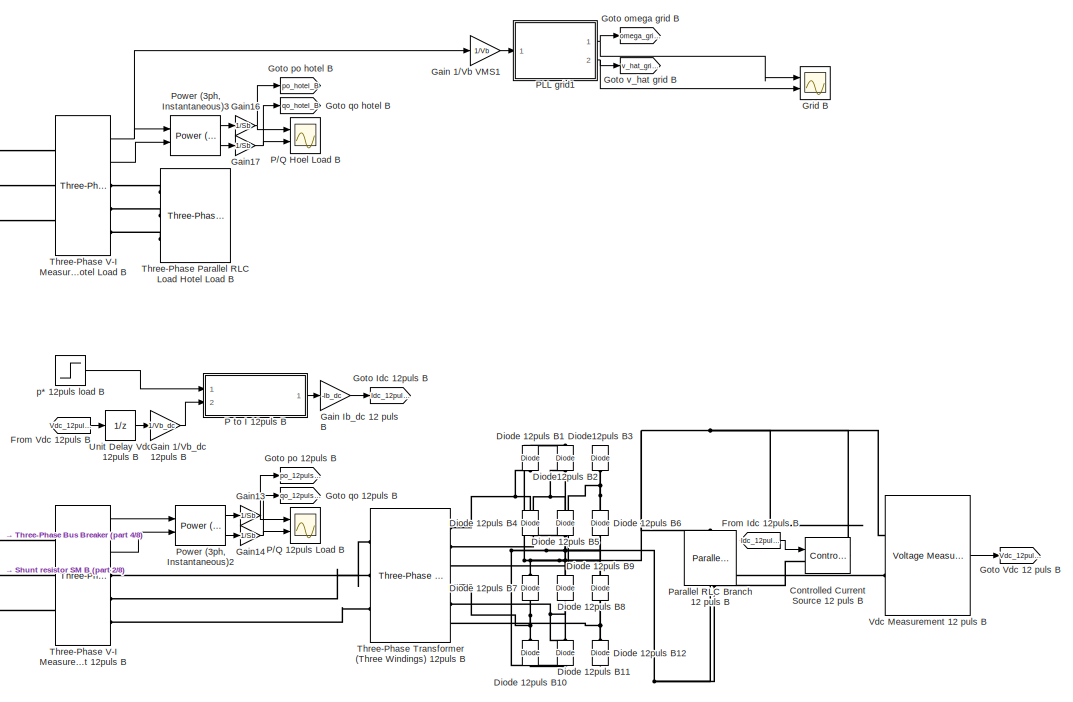
[diagram: root canvas - part 1/8, top center region]
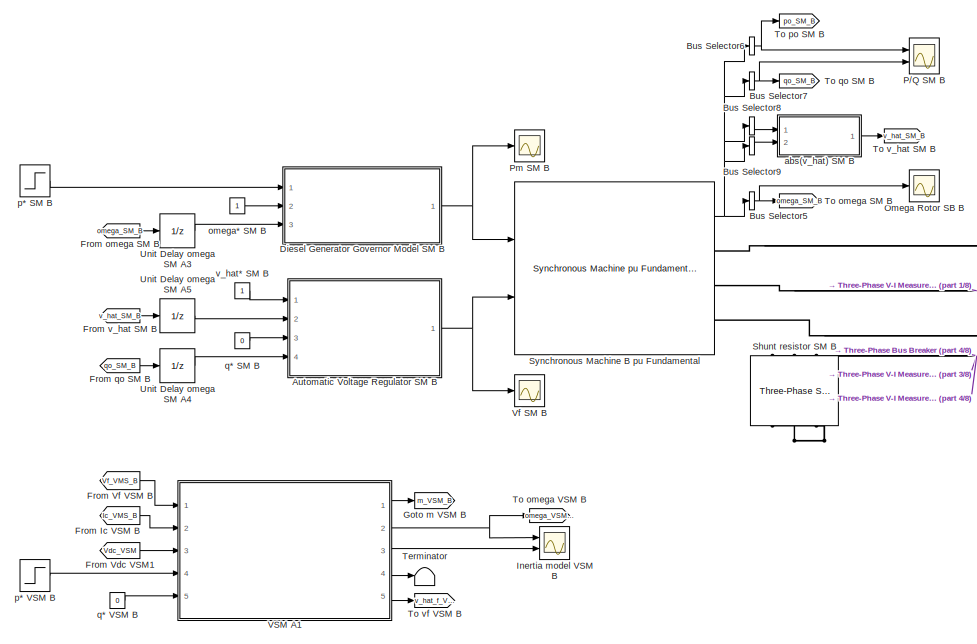
[diagram: root canvas - part 2/8, top left region]
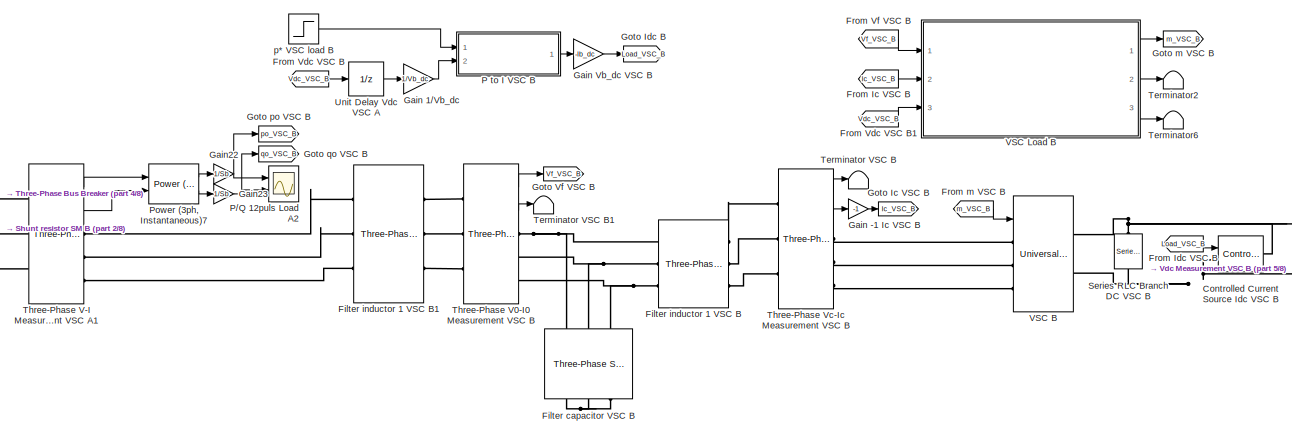
[diagram: root canvas - part 3/8, central region]
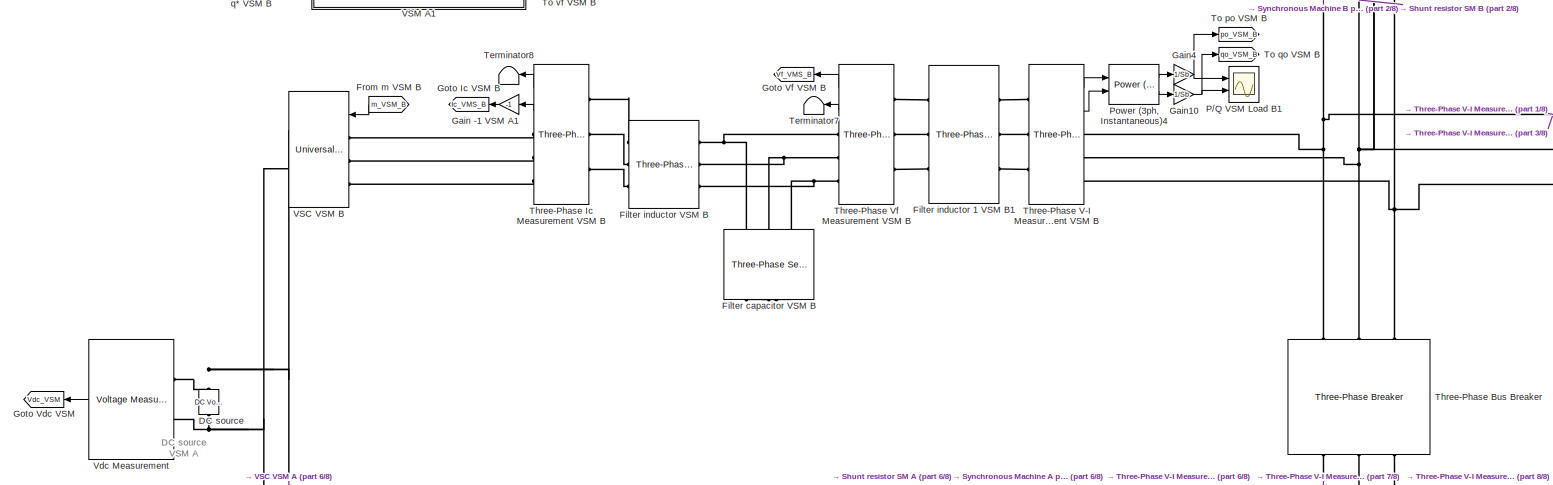
[diagram: root canvas - part 4/8, middle left region]
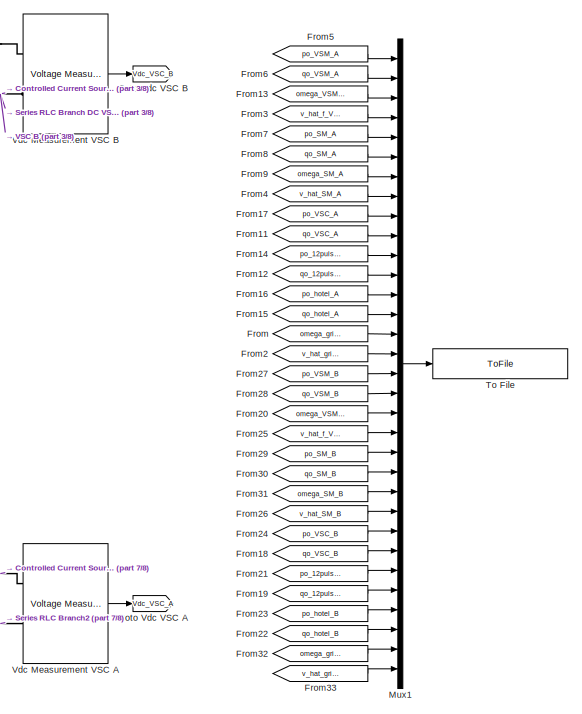
[diagram: root canvas - part 5/8, middle right region]
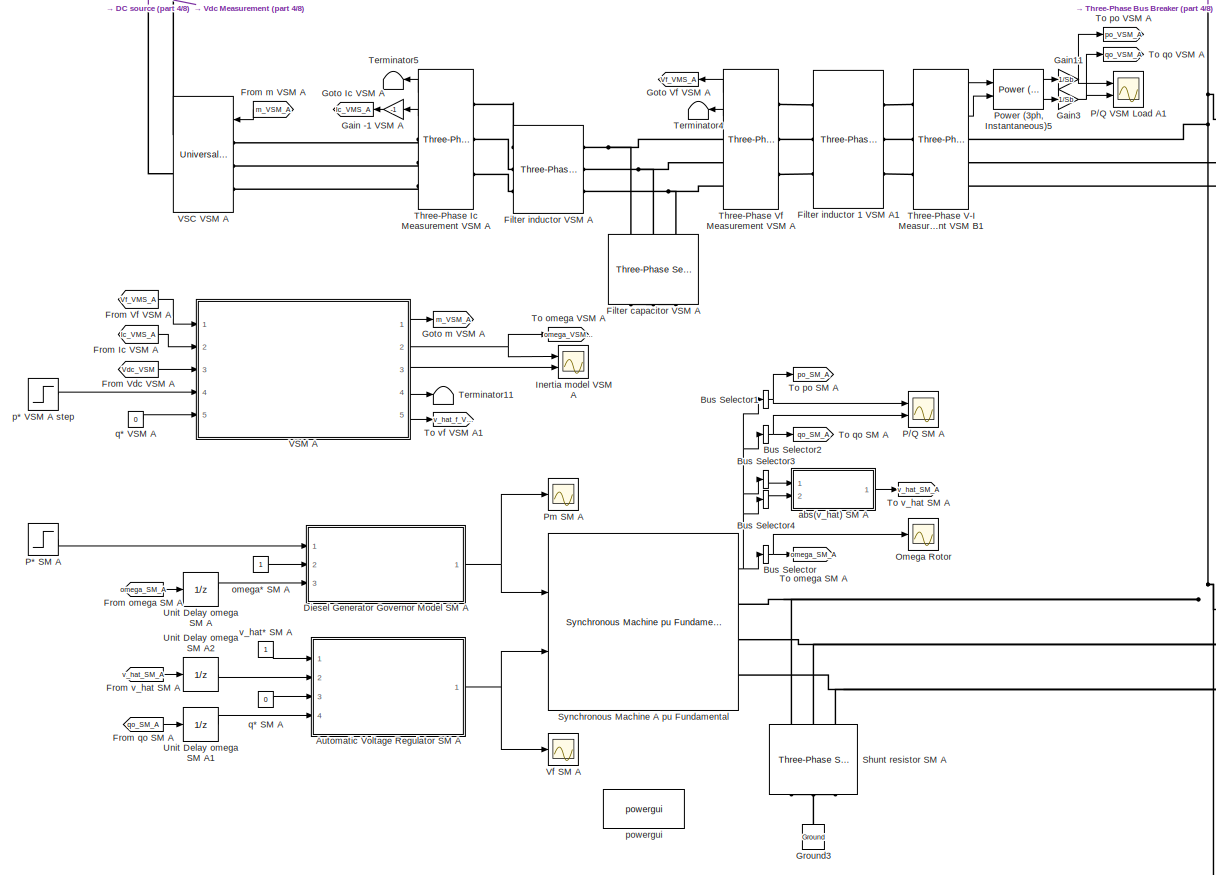
[diagram: root canvas - part 6/8, bottom left region]
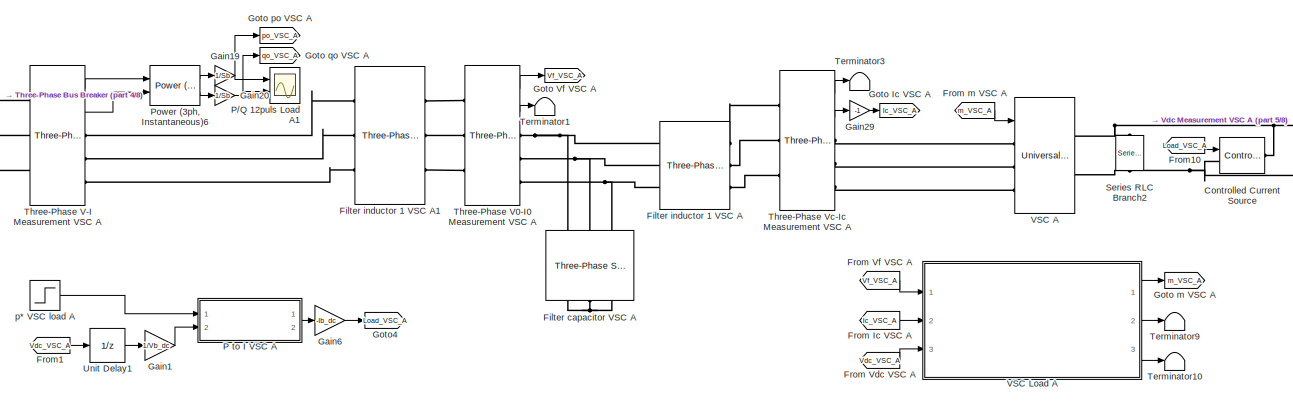
[diagram: root canvas - part 7/8, central region]
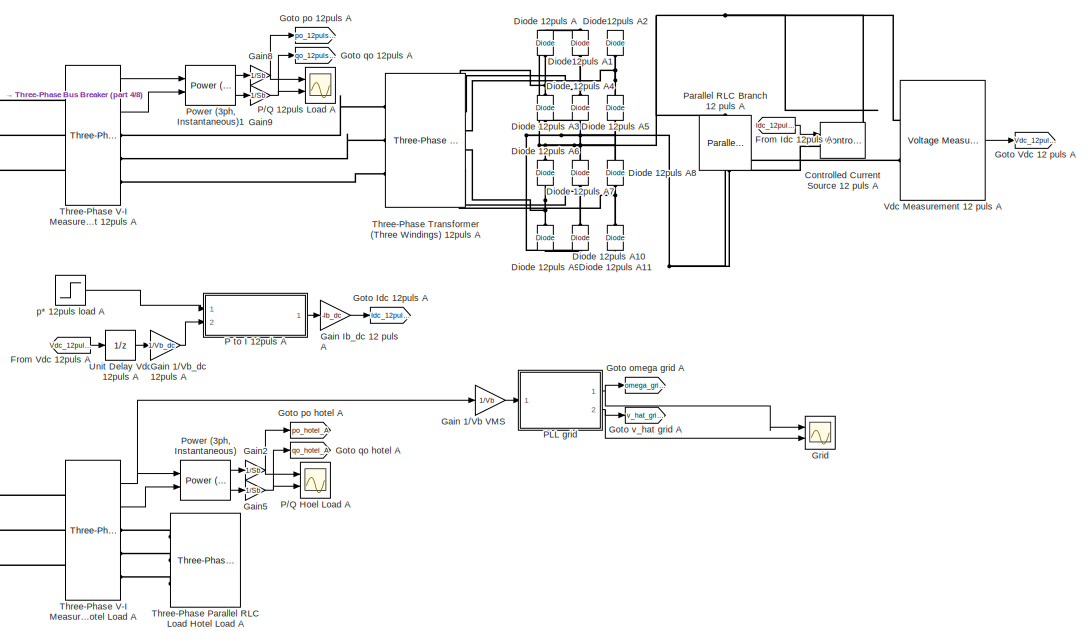
[diagram: root canvas - part 8/8, bottom center region]
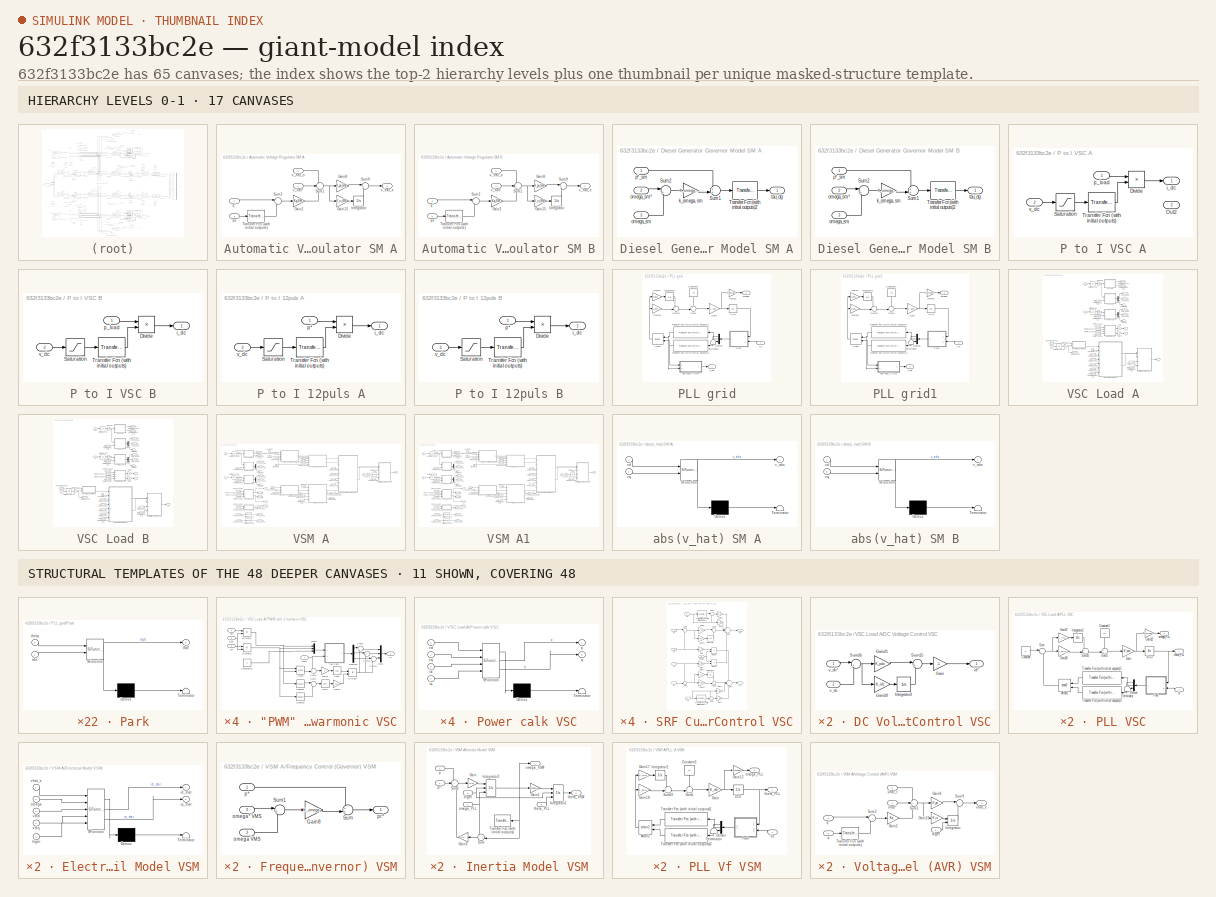
[diagram: thumbnail index - top-2 hierarchy levels (17 canvases) + 11 structural-template representatives of the remaining 48 canvases]
MODEL slx_632f3133bc2e
KIND model
CONFIG AbsTol = auto
CONFIG EnableMultiTasking = off
CONFIG FixedStep = T
CONFIG MaxStep = auto
CONFIG MinStep = auto
CONFIG RelTol = 1e-3
CONFIG SampleTimeConstraint = Unconstrained
CONFIG SolverName = ode23t
CONFIG StartTime = 0.0
CONFIG StopTime = 6
BLOCK [SubSystem] Automatic Voltage Regulator SM A
  Ports = [4, 1]
  RequestExecContextInheritance = off
BLOCK [Gain] Automatic Voltage Regulator SM A/Gain15
  Gain = K_iv_SM
BLOCK [Gain] Automatic Voltage Regulator SM A/Gain2
  Gain = Kq_SM
BLOCK [Gain] Automatic Voltage Regulator SM A/Gain8
  Gain = K_pv_SM
BLOCK [Integrator] Automatic Voltage Regulator SM A/Integrator
  Ports = [1, 1]
BLOCK [Sum] Automatic Voltage Regulator SM A/Sum1
  Inputs = -++
  Ports = [3, 1]
BLOCK [Sum] Automatic Voltage Regulator SM A/Sum2
  Inputs = |+-
  Ports = [2, 1]
BLOCK [Sum] Automatic Voltage Regulator SM A/Sum9
  Inputs = |++
  Ports = [2, 1]
BLOCK [Reference] Automatic Voltage Regulator SM A/Transfer Fcn (with initial outputs)  REF=simulink_extras/Additional
Linear/Transfer Fcn
(with initial outputs)
  Ports = [1, 1]
  SourceBlock = simulink_extras/Additional\nLinear/Transfer Fcn\n(with initial outputs)
  SourceProductBaseCode = SL
  SourceType = Transfer Function with Initial Outputs
BLOCK [Inport] Automatic Voltage Regulator SM A/q*
  Port = 3
BLOCK [Inport] Automatic Voltage Regulator SM A/qo
  Port = 4
BLOCK [Inport] Automatic Voltage Regulator SM A/v_hat*
BLOCK [Outport] Automatic Voltage Regulator SM A/v_hat_e
BLOCK [Inport] Automatic Voltage Regulator SM A/v_hat_o
  Port = 2
BLOCK [SubSystem] Automatic Voltage Regulator SM B
  Ports = [4, 1]
  RequestExecContextInheritance = off
BLOCK [Gain] Automatic Voltage Regulator SM B/Gain15
  Gain = K_iv_SM
BLOCK [Gain] Automatic Voltage Regulator SM B/Gain2
  Gain = Kq_SM
BLOCK [Gain] Automatic Voltage Regulator SM B/Gain8
  Gain = K_pv_SM
BLOCK [Integrator] Automatic Voltage Regulator SM B/Integrator
  Ports = [1, 1]
BLOCK [Sum] Automatic Voltage Regulator SM B/Sum1
  Inputs = -++
  Ports = [3, 1]
BLOCK [Sum] Automatic Voltage Regulator SM B/Sum2
  Inputs = |+-
  Ports = [2, 1]
BLOCK [Sum] Automatic Voltage Regulator SM B/Sum9
  Inputs = |++
  Ports = [2, 1]
BLOCK [Reference] Automatic Voltage Regulator SM B/Transfer Fcn (with initial outputs)  REF=simulink_extras/Additional
Linear/Transfer Fcn
(with initial outputs)
  Ports = [1, 1]
  SourceBlock = simulink_extras/Additional\nLinear/Transfer Fcn\n(with initial outputs)
  SourceProductBaseCode = SL
  SourceType = Transfer Function with Initial Outputs
BLOCK [Inport] Automatic Voltage Regulator SM B/q*
  Port = 3
BLOCK [Inport] Automatic Voltage Regulator SM B/qo
  Port = 4
BLOCK [Inport] Automatic Voltage Regulator SM B/v_hat*
BLOCK [Outport] Automatic Voltage Regulator SM B/v_hat_e
BLOCK [Inport] Automatic Voltage Regulator SM B/v_hat_o
  Port = 2
BLOCK [BusSelector] Bus Selector
  OutputAsBus = on
  OutputSignals = Mechanical.Rotor speed  wm (pu)
  Ports = [1, 1]
BLOCK [BusSelector] Bus Selector1
  OutputAsBus = on
  OutputSignals = Output active power   Peo (pu)
  Ports = [1, 1]
BLOCK [BusSelector] Bus Selector2
  OutputAsBus = on
  OutputSignals = Output reactive power  Qeo (pu)
  Ports = [1, 1]
BLOCK [BusSelector] Bus Selector3
  OutputAsBus = on
  OutputSignals = dq0 components.Stator voltage  vd (pu)
  Ports = [1, 1]
BLOCK [BusSelector] Bus Selector4
  OutputAsBus = on
  OutputSignals = dq0 components.Stator voltage  vq (pu)
  Ports = [1, 1]
BLOCK [BusSelector] Bus Selector5
  OutputAsBus = on
  OutputSignals = Mechanical.Rotor speed  wm (pu)
  Ports = [1, 1]
BLOCK [BusSelector] Bus Selector6
  OutputAsBus = on
  OutputSignals = Output active power   Peo (pu)
  Ports = [1, 1]
BLOCK [BusSelector] Bus Selector7
  OutputAsBus = on
  OutputSignals = Output reactive power  Qeo (pu)
  Ports = [1, 1]
BLOCK [BusSelector] Bus Selector8
  OutputAsBus = on
  OutputSignals = dq0 components.Stator voltage  vd (pu)
  Ports = [1, 1]
BLOCK [BusSelector] Bus Selector9
  OutputAsBus = on
  OutputSignals = dq0 components.Stator voltage  vq (pu)
  Ports = [1, 1]
BLOCK [Reference] Controlled Current Source  REF=spsControlledCurrentSourceLib/Controlled Current Source
  NameLocation = left
  Ports = [1, 0, 0, 0, 0, 1, 1]
  SourceBlock = spsControlledCurrentSourceLib/Controlled Current Source
  SourceProductBaseCode = PS
  SourceType = Controlled Current Source
BLOCK [Reference] Controlled Current Source 12 puls A  REF=spsControlledCurrentSourceLib/Controlled Current Source
  Commented = on
  NameLocation = left
  Ports = [1, 0, 0, 0, 0, 1, 1]
  SourceBlock = spsControlledCurrentSourceLib/Controlled Current Source
  SourceProductBaseCode = PS
  SourceType = Controlled Current Source
BLOCK [Reference] Controlled Current Source 12 puls B  REF=spsControlledCurrentSourceLib/Controlled Current Source
  Commented = on
  NameLocation = left
  Ports = [1, 0, 0, 0, 0, 1, 1]
  SourceBlock = spsControlledCurrentSourceLib/Controlled Current Source
  SourceProductBaseCode = PS
  SourceType = Controlled Current Source
BLOCK [Reference] Controlled Current Source Idc VSC B  REF=spsControlledCurrentSourceLib/Controlled Current Source
  NameLocation = left
  Ports = [1, 0, 0, 0, 0, 1, 1]
  SourceBlock = spsControlledCurrentSourceLib/Controlled Current Source
  SourceProductBaseCode = PS
  SourceType = Controlled Current Source
BLOCK [Reference] DC source  REF=spsDCVoltageSourceLib/DC Voltage Source
  Ports = [0, 0, 0, 0, 0, 1, 1]
  SourceBlock = spsDCVoltageSourceLib/DC Voltage Source
  SourceProductBaseCode = PS
  SourceType = DC Voltage Source
BLOCK [SubSystem] Diesel Generator Governor Model SM A
  Ports = [3, 1]
  RequestExecContextInheritance = off
BLOCK [Sum] Diesel Generator Governor Model SM A/Sum1
  Inputs = ++|
  Ports = [2, 1]
BLOCK [Sum] Diesel Generator Governor Model SM A/Sum2
  Inputs = |+-
  Ports = [2, 1]
BLOCK [Reference] Diesel Generator Governor Model SM A/Transfer Fcn (with initial outputs)2  REF=simulink_extras/Additional
Linear/Transfer Fcn
(with initial outputs)
  Ports = [1, 1]
  SourceBlock = simulink_extras/Additional\nLinear/Transfer Fcn\n(with initial outputs)
  SourceProductBaseCode = SL
  SourceType = Transfer Function with Initial Outputs
BLOCK [Gain] Diesel Generator Governor Model SM A/k_omega, sm
  Gain = K_omega_SM
BLOCK [Inport] Diesel Generator Governor Model SM A/omega_sm
  Port = 3
BLOCK [Inport] Diesel Generator Governor Model SM A/omega_sm*
  Port = 2
BLOCK [Inport] Diesel Generator Governor Model SM A/p*_sm
BLOCK [Outport] Diesel Generator Governor Model SM A/tau_dg
BLOCK [SubSystem] Diesel Generator Governor Model SM B
  Ports = [3, 1]
  RequestExecContextInheritance = off
BLOCK [Sum] Diesel Generator Governor Model SM B/Sum1
  Inputs = ++|
  Ports = [2, 1]
BLOCK [Sum] Diesel Generator Governor Model SM B/Sum2
  Inputs = |+-
  Ports = [2, 1]
BLOCK [Reference] Diesel Generator Governor Model SM B/Transfer Fcn (with initial outputs)2  REF=simulink_extras/Additional
Linear/Transfer Fcn
(with initial outputs)
  Ports = [1, 1]
  SourceBlock = simulink_extras/Additional\nLinear/Transfer Fcn\n(with initial outputs)
  SourceProductBaseCode = SL
  SourceType = Transfer Function with Initial Outputs
BLOCK [Gain] Diesel Generator Governor Model SM B/k_omega, sm
  Gain = K_omega_SM
BLOCK [Inport] Diesel Generator Governor Model SM B/omega_sm
  Port = 3
BLOCK [Inport] Diesel Generator Governor Model SM B/omega_sm*
  Port = 2
BLOCK [Inport] Diesel Generator Governor Model SM B/p*_sm
BLOCK [Outport] Diesel Generator Governor Model SM B/tau_dg
BLOCK [Reference] Diode 12puls A  REF=spsDiodeLib/Diode
  Commented = on
  NameLocation = right
  Ports = [0, 0, 0, 0, 0, 1, 1]
  SourceBlock = spsDiodeLib/Diode
  SourceProductBaseCode = PS
  SourceType = Diode
BLOCK [Reference] Diode 12puls A10  REF=spsDiodeLib/Diode
  Commented = on
  NameLocation = right
  Ports = [0, 0, 0, 0, 0, 1, 1]
  SourceBlock = spsDiodeLib/Diode
  SourceProductBaseCode = PS
  SourceType = Diode
BLOCK [Reference] Diode 12puls A11  REF=spsDiodeLib/Diode
  Commented = on
  NameLocation = right
  Ports = [0, 0, 0, 0, 0, 1, 1]
  SourceBlock = spsDiodeLib/Diode
  SourceProductBaseCode = PS
  SourceType = Diode
BLOCK [Reference] Diode 12puls A3  REF=spsDiodeLib/Diode
  Commented = on
  NameLocation = right
  Ports = [0, 0, 0, 0, 0, 1, 1]
  SourceBlock = spsDiodeLib/Diode
  SourceProductBaseCode = PS
  SourceType = Diode
BLOCK [Reference] Diode 12puls A4  REF=spsDiodeLib/Diode
  Commented = on
  NameLocation = right
  Ports = [0, 0, 0, 0, 0, 1, 1]
  SourceBlock = spsDiodeLib/Diode
  SourceProductBaseCode = PS
  SourceType = Diode
BLOCK [Reference] Diode 12puls A5  REF=spsDiodeLib/Diode
  Commented = on
  NameLocation = right
  Ports = [0, 0, 0, 0, 0, 1, 1]
  SourceBlock = spsDiodeLib/Diode
  SourceProductBaseCode = PS
  SourceType = Diode
BLOCK [Reference] Diode 12puls A6  REF=spsDiodeLib/Diode
  Commented = on
  NameLocation = right
  Ports = [0, 0, 0, 0, 0, 1, 1]
  SourceBlock = spsDiodeLib/Diode
  SourceProductBaseCode = PS
  SourceType = Diode
BLOCK [Reference] Diode 12puls A7  REF=spsDiodeLib/Diode
  Commented = on
  NameLocation = right
  Ports = [0, 0, 0, 0, 0, 1, 1]
  SourceBlock = spsDiodeLib/Diode
  SourceProductBaseCode = PS
  SourceType = Diode
BLOCK [Reference] Diode 12puls A8  REF=spsDiodeLib/Diode
  Commented = on
  NameLocation = right
  Ports = [0, 0, 0, 0, 0, 1, 1]
  SourceBlock = spsDiodeLib/Diode
  SourceProductBaseCode = PS
  SourceType = Diode
BLOCK [Reference] Diode 12puls A9  REF=spsDiodeLib/Diode
  Commented = on
  NameLocation = right
  Ports = [0, 0, 0, 0, 0, 1, 1]
  SourceBlock = spsDiodeLib/Diode
  SourceProductBaseCode = PS
  SourceType = Diode
BLOCK [Reference] Diode 12puls B1  REF=spsDiodeLib/Diode
  Commented = on
  NameLocation = right
  Ports = [0, 0, 0, 0, 0, 1, 1]
  SourceBlock = spsDiodeLib/Diode
  SourceProductBaseCode = PS
  SourceType = Diode
BLOCK [Reference] Diode 12puls B10  REF=spsDiodeLib/Diode
  Commented = on
  NameLocation = right
  Ports = [0, 0, 0, 0, 0, 1, 1]
  SourceBlock = spsDiodeLib/Diode
  SourceProductBaseCode = PS
  SourceType = Diode
BLOCK [Reference] Diode 12puls B11  REF=spsDiodeLib/Diode
  Commented = on
  NameLocation = right
  Ports = [0, 0, 0, 0, 0, 1, 1]
  SourceBlock = spsDiodeLib/Diode
  SourceProductBaseCode = PS
  SourceType = Diode
BLOCK [Reference] Diode 12puls B12  REF=spsDiodeLib/Diode
  Commented = on
  NameLocation = right
  Ports = [0, 0, 0, 0, 0, 1, 1]
  SourceBlock = spsDiodeLib/Diode
  SourceProductBaseCode = PS
  SourceType = Diode
BLOCK [Reference] Diode 12puls B4  REF=spsDiodeLib/Diode
  Commented = on
  NameLocation = right
  Ports = [0, 0, 0, 0, 0, 1, 1]
  SourceBlock = spsDiodeLib/Diode
  SourceProductBaseCode = PS
  SourceType = Diode
BLOCK [Reference] Diode 12puls B5  REF=spsDiodeLib/Diode
  Commented = on
  NameLocation = right
  Ports = [0, 0, 0, 0, 0, 1, 1]
  SourceBlock = spsDiodeLib/Diode
  SourceProductBaseCode = PS
  SourceType = Diode
BLOCK [Reference] Diode 12puls B6  REF=spsDiodeLib/Diode
  Commented = on
  NameLocation = right
  Ports = [0, 0, 0, 0, 0, 1, 1]
  SourceBlock = spsDiodeLib/Diode
  SourceProductBaseCode = PS
  SourceType = Diode
BLOCK [Reference] Diode 12puls B7  REF=spsDiodeLib/Diode
  Commented = on
  NameLocation = right
  Ports = [0, 0, 0, 0, 0, 1, 1]
  SourceBlock = spsDiodeLib/Diode
  SourceProductBaseCode = PS
  SourceType = Diode
BLOCK [Reference] Diode 12puls B8  REF=spsDiodeLib/Diode
  Commented = on
  NameLocation = right
  Ports = [0, 0, 0, 0, 0, 1, 1]
  SourceBlock = spsDiodeLib/Diode
  SourceProductBaseCode = PS
  SourceType = Diode
BLOCK [Reference] Diode 12puls B9  REF=spsDiodeLib/Diode
  Commented = on
  NameLocation = right
  Ports = [0, 0, 0, 0, 0, 1, 1]
  SourceBlock = spsDiodeLib/Diode
  SourceProductBaseCode = PS
  SourceType = Diode
BLOCK [Reference] Diode12puls A1  REF=spsDiodeLib/Diode
  Commented = on
  NameLocation = right
  Ports = [0, 0, 0, 0, 0, 1, 1]
  SourceBlock = spsDiodeLib/Diode
  SourceProductBaseCode = PS
  SourceType = Diode
BLOCK [Reference] Diode12puls A2  REF=spsDiodeLib/Diode
  Commented = on
  NameLocation = right
  Ports = [0, 0, 0, 0, 0, 1, 1]
  SourceBlock = spsDiodeLib/Diode
  SourceProductBaseCode = PS
  SourceType = Diode
BLOCK [Reference] Diode12puls B2  REF=spsDiodeLib/Diode
  Commented = on
  NameLocation = right
  Ports = [0, 0, 0, 0, 0, 1, 1]
  SourceBlock = spsDiodeLib/Diode
  SourceProductBaseCode = PS
  SourceType = Diode
BLOCK [Reference] Diode12puls B3  REF=spsDiodeLib/Diode
  Commented = on
  NameLocation = right
  Ports = [0, 0, 0, 0, 0, 1, 1]
  SourceBlock = spsDiodeLib/Diode
  SourceProductBaseCode = PS
  SourceType = Diode
BLOCK [Reference] Filter capacitor VSC A  REF=spsThreePhaseSeriesRLCBranchLib/Three-Phase
Series RLC Branch
  AttributesFormatString = \n
  NameLocation = left
  Ports = [0, 0, 0, 0, 0, 3, 3]
  SourceBlock = spsThreePhaseSeriesRLCBranchLib/Three-Phase\nSeries RLC Branch
  SourceProductBaseCode = PS
  SourceType = Three-Phase Series RLC Branch
BLOCK [Reference] Filter capacitor VSC B  REF=spsThreePhaseSeriesRLCBranchLib/Three-Phase
Series RLC Branch
  AttributesFormatString = \n
  NameLocation = left
  Ports = [0, 0, 0, 0, 0, 3, 3]
  SourceBlock = spsThreePhaseSeriesRLCBranchLib/Three-Phase\nSeries RLC Branch
  SourceProductBaseCode = PS
  SourceType = Three-Phase Series RLC Branch
BLOCK [Reference] Filter capacitor VSM A  REF=spsThreePhaseSeriesRLCBranchLib/Three-Phase
Series RLC Branch
  AttributesFormatString = \n
  NameLocation = left
  Ports = [0, 0, 0, 0, 0, 3, 3]
  SourceBlock = spsThreePhaseSeriesRLCBranchLib/Three-Phase\nSeries RLC Branch
  SourceProductBaseCode = PS
  SourceType = Three-Phase Series RLC Branch
BLOCK [Reference] Filter capacitor VSM B  REF=spsThreePhaseSeriesRLCBranchLib/Three-Phase
Series RLC Branch
  AttributesFormatString = \n
  NameLocation = left
  Ports = [0, 0, 0, 0, 0, 3, 3]
  SourceBlock = spsThreePhaseSeriesRLCBranchLib/Three-Phase\nSeries RLC Branch
  SourceProductBaseCode = PS
  SourceType = Three-Phase Series RLC Branch
BLOCK [Reference] Filter inductor 1 VSC A  REF=spsThreePhaseSeriesRLCBranchLib/Three-Phase
Series RLC Branch
  AttributesFormatString = \n
  Ports = [0, 0, 0, 0, 0, 3, 3]
  SourceBlock = spsThreePhaseSeriesRLCBranchLib/Three-Phase\nSeries RLC Branch
  SourceProductBaseCode = PS
  SourceType = Three-Phase Series RLC Branch
BLOCK [Reference] Filter inductor 1 VSC A1  REF=spsThreePhaseSeriesRLCBranchLib/Three-Phase
Series RLC Branch
  AttributesFormatString = \n
  Ports = [0, 0, 0, 0, 0, 3, 3]
  SourceBlock = spsThreePhaseSeriesRLCBranchLib/Three-Phase\nSeries RLC Branch
  SourceProductBaseCode = PS
  SourceType = Three-Phase Series RLC Branch
BLOCK [Reference] Filter inductor 1 VSC B  REF=spsThreePhaseSeriesRLCBranchLib/Three-Phase
Series RLC Branch
  AttributesFormatString = \n
  Ports = [0, 0, 0, 0, 0, 3, 3]
  SourceBlock = spsThreePhaseSeriesRLCBranchLib/Three-Phase\nSeries RLC Branch
  SourceProductBaseCode = PS
  SourceType = Three-Phase Series RLC Branch
BLOCK [Reference] Filter inductor 1 VSC B1  REF=spsThreePhaseSeriesRLCBranchLib/Three-Phase
Series RLC Branch
  AttributesFormatString = \n
  Ports = [0, 0, 0, 0, 0, 3, 3]
  SourceBlock = spsThreePhaseSeriesRLCBranchLib/Three-Phase\nSeries RLC Branch
  SourceProductBaseCode = PS
  SourceType = Three-Phase Series RLC Branch
BLOCK [Reference] Filter inductor 1 VSM A1  REF=spsThreePhaseSeriesRLCBranchLib/Three-Phase
Series RLC Branch
  AttributesFormatString = \n
  Ports = [0, 0, 0, 0, 0, 3, 3]
  SourceBlock = spsThreePhaseSeriesRLCBranchLib/Three-Phase\nSeries RLC Branch
  SourceProductBaseCode = PS
  SourceType = Three-Phase Series RLC Branch
BLOCK [Reference] Filter inductor 1 VSM B1  REF=spsThreePhaseSeriesRLCBranchLib/Three-Phase
Series RLC Branch
  AttributesFormatString = \n
  Ports = [0, 0, 0, 0, 0, 3, 3]
  SourceBlock = spsThreePhaseSeriesRLCBranchLib/Three-Phase\nSeries RLC Branch
  SourceProductBaseCode = PS
  SourceType = Three-Phase Series RLC Branch
BLOCK [Reference] Filter inductor VSM A  REF=spsThreePhaseSeriesRLCBranchLib/Three-Phase
Series RLC Branch
  AttributesFormatString = \n
  Ports = [0, 0, 0, 0, 0, 3, 3]
  SourceBlock = spsThreePhaseSeriesRLCBranchLib/Three-Phase\nSeries RLC Branch
  SourceProductBaseCode = PS
  SourceType = Three-Phase Series RLC Branch
BLOCK [Reference] Filter inductor VSM B  REF=spsThreePhaseSeriesRLCBranchLib/Three-Phase
Series RLC Branch
  AttributesFormatString = \n
  Ports = [0, 0, 0, 0, 0, 3, 3]
  SourceBlock = spsThreePhaseSeriesRLCBranchLib/Three-Phase\nSeries RLC Branch
  SourceProductBaseCode = PS
  SourceType = Three-Phase Series RLC Branch
BLOCK [From] From
  Commented = on
  GotoTag = omega_grid_A
BLOCK [From] From  m VSC A
  GotoTag = m_VSC_A
BLOCK [From] From Ic VSC A
  GotoTag = Ic_VSC_A
BLOCK [From] From Ic VSC B
  GotoTag = Ic_VSC_B
BLOCK [From] From Ic VSM A
  GotoTag = Ic_VMS_A
BLOCK [From] From Ic VSM B
  GotoTag = Ic_VMS_B
BLOCK [From] From Idc 12puls A
  Commented = on
  GotoTag = Idc_12puls_A
BLOCK [From] From Idc 12puls B
  Commented = on
  GotoTag = Idc_12puls_B
BLOCK [From] From Idc VSC B
  GotoTag = Load_VSC_B
BLOCK [From] From Vdc 12puls A
  Commented = on
  GotoTag = Vdc_12puls_A
BLOCK [From] From Vdc 12puls B
  Commented = on
  GotoTag = Vdc_12puls_B
BLOCK [From] From Vdc VSC A
  GotoTag = Vdc_VSC_A
BLOCK [From] From Vdc VSC B
  GotoTag = Vdc_VSC_B
BLOCK [From] From Vdc VSC B1
  GotoTag = Vdc_VSC_B
BLOCK [From] From Vdc VSM A
  GotoTag = Vdc_VSM
BLOCK [From] From Vdc VSM1
  GotoTag = Vdc_VSM
BLOCK [From] From Vf VSC A
  GotoTag = Vf_VSC_A
BLOCK [From] From Vf VSC B
  GotoTag = Vf_VSC_B
BLOCK [From] From Vf VSM A
  GotoTag = Vf_VMS_A
BLOCK [From] From Vf VSM B
  GotoTag = Vf_VMS_B
BLOCK [From] From m VSC B
  GotoTag = m_VSC_B
BLOCK [From] From m VSM A
  GotoTag = m_VSM_A
BLOCK [From] From m VSM B
  GotoTag = m_VSM_B
BLOCK [From] From omega SM A
  GotoTag = omega_SM_A
BLOCK [From] From omega SM B
  GotoTag = omega_SM_B
BLOCK [From] From qo SM A
  GotoTag = qo_SM_A
BLOCK [From] From qo SM B
  GotoTag = qo_SM_B
BLOCK [From] From v_hat SM A
  GotoTag = v_hat_SM_A
BLOCK [From] From v_hat SM B
  GotoTag = v_hat_SM_B
BLOCK [From] From1
  GotoTag = Vdc_VSC_A
BLOCK [From] From10
  GotoTag = Load_VSC_A
BLOCK [From] From11
  Commented = on
  GotoTag = qo_VSC_A
BLOCK [From] From12
  Commented = on
  GotoTag = qo_12puls_A
BLOCK [From] From13
  Commented = on
  GotoTag = omega_VSM_A
BLOCK [From] From14
  Commented = on
  GotoTag = po_12puls_A
BLOCK [From] From15
  Commented = on
  GotoTag = qo_hotel_A
BLOCK [From] From16
  Commented = on
  GotoTag = po_hotel_A
BLOCK [From] From17
  Commented = on
  GotoTag = po_VSC_A
BLOCK [From] From18
  Commented = on
  GotoTag = qo_VSC_B
BLOCK [From] From19
  Commented = on
  GotoTag = qo_12puls_B
BLOCK [From] From2
  Commented = on
  GotoTag = v_hat_grid_A
BLOCK [From] From20
  Commented = on
  GotoTag = omega_VSM_B
BLOCK [From] From21
  Commented = on
  GotoTag = po_12puls_B
BLOCK [From] From22
  Commented = on
  GotoTag = qo_hotel_B
BLOCK [From] From23
  Commented = on
  GotoTag = po_hotel_B
BLOCK [From] From24
  Commented = on
  GotoTag = po_VSC_B
BLOCK [From] From25
  Commented = on
  GotoTag = v_hat_f_VSM_B
BLOCK [From] From26
  Commented = on
  GotoTag = v_hat_SM_B
BLOCK [From] From27
  Commented = on
  GotoTag = po_VSM_B
BLOCK [From] From28
  Commented = on
  GotoTag = qo_VSM_B
BLOCK [From] From29
  Commented = on
  GotoTag = po_SM_B
BLOCK [From] From3
  Commented = on
  GotoTag = v_hat_f_VSM_A
BLOCK [From] From30
  Commented = on
  GotoTag = qo_SM_B
BLOCK [From] From31
  Commented = on
  GotoTag = omega_SM_B
BLOCK [From] From32
  Commented = on
  GotoTag = omega_grid_B
BLOCK [From] From33
  Commented = on
  GotoTag = v_hat_grid_B
BLOCK [From] From4
  Commented = on
  GotoTag = v_hat_SM_A
BLOCK [From] From5
  Commented = on
  GotoTag = po_VSM_A
BLOCK [From] From6
  Commented = on
  GotoTag = qo_VSM_A
BLOCK [From] From7
  Commented = on
  GotoTag = po_SM_A
BLOCK [From] From8
  Commented = on
  GotoTag = qo_SM_A
BLOCK [From] From9
  Commented = on
  GotoTag = omega_SM_A
BLOCK [Gain] Gain -1 Ic VSC B
  Gain = -1
BLOCK [Gain] Gain -1 VSM A
  Gain = -1
BLOCK [Gain] Gain -1 VSM A1
  Gain = -1
BLOCK [Gain] Gain 1//Vb VMS
  Gain = 1/Vb
BLOCK [Gain] Gain 1//Vb VMS1
  Gain = 1/Vb
BLOCK [Gain] Gain 1//Vb_dc
  Gain = 1/Vb_dc
BLOCK [Gain] Gain 1//Vb_dc 12puls A
  Commented = on
  Gain = 1/Vb_dc
BLOCK [Gain] Gain 1//Vb_dc 12puls B
  Commented = on
  Gain = 1/Vb_dc
BLOCK [Gain] Gain Ib_dc 12 puls A
  Commented = on
  Gain = -Ib_dc
BLOCK [Gain] Gain Ib_dc 12 puls B
  Commented = on
  Gain = -Ib_dc
BLOCK [Gain] Gain Vb_dc VSC B
  Gain = -Ib_dc
BLOCK [Gain] Gain1
  Gain = 1/Vb_dc
BLOCK [Gain] Gain10
  Gain = 1/Sb
BLOCK [Gain] Gain11
  Gain = 1/Sb
BLOCK [Gain] Gain13
  Commented = on
  Gain = 1/Sb
BLOCK [Gain] Gain14
  Commented = on
  Gain = 1/Sb
BLOCK [Gain] Gain16
  Gain = 1/Sb
BLOCK [Gain] Gain17
  Gain = 1/Sb
BLOCK [Gain] Gain19
  Gain = 1/Sb
BLOCK [Gain] Gain2
  Gain = 1/Sb
BLOCK [Gain] Gain20
  Gain = 1/Sb
BLOCK [Gain] Gain22
  Gain = 1/Sb
BLOCK [Gain] Gain23
  Gain = 1/Sb
BLOCK [Gain] Gain29
  Gain = -1
BLOCK [Gain] Gain3
  Gain = 1/Sb
BLOCK [Gain] Gain4
  Gain = 1/Sb
BLOCK [Gain] Gain5
  Gain = 1/Sb
BLOCK [Gain] Gain6
  Gain = -Ib_dc
BLOCK [Gain] Gain8
  Commented = on
  Gain = 1/Sb
BLOCK [Gain] Gain9
  Commented = on
  Gain = 1/Sb
BLOCK [Goto] Goto Ic VSC A
  GotoTag = Ic_VSC_A
BLOCK [Goto] Goto Ic VSC B
  GotoTag = Ic_VSC_B
BLOCK [Goto] Goto Ic VSM A
  GotoTag = Ic_VMS_A
BLOCK [Goto] Goto Ic VSM B
  GotoTag = Ic_VMS_B
BLOCK [Goto] Goto Idc 12puls A
  Commented = on
  GotoTag = Idc_12puls_A
BLOCK [Goto] Goto Idc 12puls B
  Commented = on
  GotoTag = Idc_12puls_B
BLOCK [Goto] Goto Idc B
  GotoTag = Load_VSC_B
BLOCK [Goto] Goto Vdc 12 puls A
  Commented = on
  GotoTag = Vdc_12puls_A
BLOCK [Goto] Goto Vdc 12 puls B
  Commented = on
  GotoTag = Vdc_12puls_B
BLOCK [Goto] Goto Vdc VSC A
  GotoTag = Vdc_VSC_A
BLOCK [Goto] Goto Vdc VSC B
  GotoTag = Vdc_VSC_B
BLOCK [Goto] Goto Vdc VSM
  GotoTag = Vdc_VSM
BLOCK [Goto] Goto Vf VSC A
  GotoTag = Vf_VSC_A
BLOCK [Goto] Goto Vf VSC B
  GotoTag = Vf_VSC_B
BLOCK [Goto] Goto Vf VSM A
  GotoTag = Vf_VMS_A
BLOCK [Goto] Goto Vf VSM B
  GotoTag = Vf_VMS_B
BLOCK [Goto] Goto m VSC A
  GotoTag = m_VSC_A
BLOCK [Goto] Goto m VSC B
  GotoTag = m_VSC_B
BLOCK [Goto] Goto m VSM A
  GotoTag = m_VSM_A
BLOCK [Goto] Goto m VSM B
  GotoTag = m_VSM_B
BLOCK [Goto] Goto omega grid A
  GotoTag = omega_grid_A
  NameLocation = right
BLOCK [Goto] Goto omega grid B
  GotoTag = omega_grid_B
  NameLocation = right
BLOCK [Goto] Goto po 12puls A
  Commented = on
  GotoTag = po_12puls_A
  NameLocation = right
BLOCK [Goto] Goto po 12puls B
  Commented = on
  GotoTag = po_12puls_B
  NameLocation = right
BLOCK [Goto] Goto po VSC A
  GotoTag = po_VSC_A
  NameLocation = right
BLOCK [Goto] Goto po VSC B
  GotoTag = po_VSC_B
  NameLocation = right
BLOCK [Goto] Goto po hotel A
  GotoTag = po_hotel_A
  NameLocation = right
BLOCK [Goto] Goto po hotel B
  GotoTag = po_hotel_B
  NameLocation = right
BLOCK [Goto] Goto qo 12puls A
  Commented = on
  GotoTag = qo_12puls_A
  NameLocation = right
BLOCK [Goto] Goto qo 12puls B
  Commented = on
  GotoTag = qo_12puls_B
  NameLocation = right
BLOCK [Goto] Goto qo VSC A
  GotoTag = qo_VSC_A
  NameLocation = right
BLOCK [Goto] Goto qo VSC B
  GotoTag = qo_VSC_B
  NameLocation = right
BLOCK [Goto] Goto qo hotel A
  GotoTag = qo_hotel_A
  NameLocation = right
BLOCK [Goto] Goto qo hotel B
  GotoTag = qo_hotel_B
  NameLocation = right
BLOCK [Goto] Goto v_hat grid A
  GotoTag = v_hat_grid_A
  NameLocation = right
BLOCK [Goto] Goto v_hat grid B
  GotoTag = v_hat_grid_B
  NameLocation = right
BLOCK [Goto] Goto4
  GotoTag = Load_VSC_A
BLOCK [Scope] Grid
  Floating = off
  NumInputPorts = 2
  Ports = [2]
  ScopeSpecificationString = Simulink.scopes.TimeScopeBlockCfg('CurrentConfiguration', extmgr.ConfigurationSet(extmgr.Configuration('Core','General UI',true),extmgr.Configuration('Core','Source UI',true),extmgr.Configuration('Sources','WiredSimulink',true,'DataLoggingVariableName','ScopeData5'),extmgr.Configuration('Visuals','Time Domain',true,'SerializedDisplays',{struct('MinYLimReal','0.9747','MaxYLimReal','1.07269','YLabel...<+2043ch>
BLOCK [Scope] Grid B
  Floating = off
  NumInputPorts = 2
  Ports = [2]
  ScopeSpecificationString = Simulink.scopes.TimeScopeBlockCfg('CurrentConfiguration', extmgr.ConfigurationSet(extmgr.Configuration('Core','General UI',true),extmgr.Configuration('Core','Source UI',true),extmgr.Configuration('Sources','WiredSimulink',true,'DataLoggingVariableName','ScopeData6'),extmgr.Configuration('Visuals','Time Domain',true,'SerializedDisplays',{struct('MinYLimReal','0.9747','MaxYLimReal','1.07269','YLabel...<+2049ch>
BLOCK [Reference] Ground3  REF=spsGroundLib/Ground
  Ports = [0, 0, 0, 0, 0, 1]
  SourceBlock = spsGroundLib/Ground
  SourceProductBaseCode = PS
  SourceType = Ground
BLOCK [Scope] Inertia model VSM A
  Floating = off
  NumInputPorts = 2
  Ports = [2]
  ScopeSpecificationString = Simulink.scopes.TimeScopeBlockCfg('CurrentConfiguration', extmgr.ConfigurationSet(extmgr.Configuration('Core','General UI',true),extmgr.Configuration('Core','Source UI',true),extmgr.Configuration('Sources','WiredSimulink',true,'DataLoggingVariableName','ScopeData1'),extmgr.Configuration('Visuals','Time Domain',true,'SerializedDisplays',{struct('MinYLimReal','0.98387','MaxYLimReal','1.01983','YLabe...<+2061ch>
BLOCK [Scope] Inertia model VSM B
  Floating = off
  NumInputPorts = 2
  Ports = [2]
  ScopeSpecificationString = Simulink.scopes.TimeScopeBlockCfg('CurrentConfiguration', extmgr.ConfigurationSet(extmgr.Configuration('Core','General UI',true),extmgr.Configuration('Core','Source UI',true),extmgr.Configuration('Sources','WiredSimulink',true,'DataLoggingVariableName','ScopeData3'),extmgr.Configuration('Visuals','Time Domain',true,'SerializedDisplays',{struct('MinYLimReal','0.98387','MaxYLimReal','1.01983','YLabe...<+2061ch>
BLOCK [Mux] Mux1
  Commented = on
  DisplayOption = bar
  Inputs = 32
  Ports = [32, 1]
BLOCK [Scope] Omega Rotor
  Floating = off
  NumInputPorts = 1
  Ports = [1]
  ScopeSpecificationString = Simulink.scopes.TimeScopeBlockCfg('CurrentConfiguration', extmgr.ConfigurationSet(extmgr.Configuration('Core','General UI',true),extmgr.Configuration('Core','Source UI',true),extmgr.Configuration('Sources','WiredSimulink',true,'DataLoggingVariableName','ScopeData5'),extmgr.Configuration('Visuals','Time Domain',true,'SerializedDisplays',{struct('MinYLimReal','-0.12373','MaxYLimReal','1.13523','YLab...<+1611ch>
BLOCK [Scope] Omega Rotor SB B
  Floating = off
  NumInputPorts = 1
  Ports = [1]
  ScopeSpecificationString = Simulink.scopes.TimeScopeBlockCfg('CurrentConfiguration', extmgr.ConfigurationSet(extmgr.Configuration('Core','General UI',true),extmgr.Configuration('Core','Source UI',true),extmgr.Configuration('Sources','WiredSimulink',true,'DataLoggingVariableName','ScopeData1'),extmgr.Configuration('Visuals','Time Domain',true,'SerializedDisplays',{struct('MinYLimReal','0.98488','MaxYLimReal','1.04934','YLabe...<+1609ch>
BLOCK [SubSystem] P to I 12puls A
  Commented = on
  Ports = [2, 1]
  RequestExecContextInheritance = off
BLOCK [Product] P to I 12puls A/Divide
  Inputs = */
  Ports = [2, 1]
BLOCK [Saturate] P to I 12puls A/Saturation
  LowerLimit = 0.5
  UpperLimit = 1.5
BLOCK [Reference] P to I 12puls A/Transfer Fcn (with initial outputs)  REF=simulink_extras/Additional
Linear/Transfer Fcn
(with initial outputs)
  Ports = [1, 1]
  SourceBlock = simulink_extras/Additional\nLinear/Transfer Fcn\n(with initial outputs)
  SourceProductBaseCode = SL
  SourceType = Transfer Function with Initial Outputs
BLOCK [Outport] P to I 12puls A/i_dc
BLOCK [Inport] P to I 12puls A/p*
BLOCK [Inport] P to I 12puls A/v_dc
  Port = 2
BLOCK [SubSystem] P to I 12puls B
  Commented = on
  Ports = [2, 1]
  RequestExecContextInheritance = off
BLOCK [Product] P to I 12puls B/Divide
  Inputs = */
  Ports = [2, 1]
BLOCK [Saturate] P to I 12puls B/Saturation
  LowerLimit = 0.5
  UpperLimit = 1.5
BLOCK [Reference] P to I 12puls B/Transfer Fcn (with initial outputs)  REF=simulink_extras/Additional
Linear/Transfer Fcn
(with initial outputs)
  Ports = [1, 1]
  SourceBlock = simulink_extras/Additional\nLinear/Transfer Fcn\n(with initial outputs)
  SourceProductBaseCode = SL
  SourceType = Transfer Function with Initial Outputs
BLOCK [Outport] P to I 12puls B/i_dc
BLOCK [Inport] P to I 12puls B/p*
BLOCK [Inport] P to I 12puls B/v_dc
  Port = 2
BLOCK [SubSystem] P to I VSC A
  PortSchema = {"entries":[{"content":{"sides":[{"content":{"connectorIds":["In1","In2"]},"type":"ConnectorPlacement.EquallySpacedRectSide","uuid":"1b3d670f-a973-44e5-93e0-282aed06b720"},{"content":{"connectorIds":["Out1"],"side":"RIGHT"},"type":"ConnectorPlacement.EquallySpacedRectSide","uuid":"c6dbaf48-01df-4046-a8d4-fcaf539dec06"},{"content":{"connectorIds":[],"side":"TOP"},"type":"ConnectorPlacement.EquallyS...<+396ch>
  Ports = [2, 2]
  RequestExecContextInheritance = off
BLOCK [Product] P to I VSC A/Divide
  Inputs = */
  Ports = [2, 1]
BLOCK [Outport] P to I VSC A/Out2
  Port = 2
BLOCK [Saturate] P to I VSC A/Saturation
  LowerLimit = 0.5
  UpperLimit = 1.5
BLOCK [Reference] P to I VSC A/Transfer Fcn (with initial outputs)  REF=simulink_extras/Additional
Linear/Transfer Fcn
(with initial outputs)
  Ports = [1, 1]
  SourceBlock = simulink_extras/Additional\nLinear/Transfer Fcn\n(with initial outputs)
  SourceProductBaseCode = SL
  SourceType = Transfer Function with Initial Outputs
BLOCK [Outport] P to I VSC A/i_dc
BLOCK [Inport] P to I VSC A/p_load
BLOCK [Inport] P to I VSC A/v_dc
  Port = 2
BLOCK [SubSystem] P to I VSC B
  Ports = [2, 1]
  RequestExecContextInheritance = off
BLOCK [Product] P to I VSC B/Divide
  Inputs = */
  Ports = [2, 1]
BLOCK [Saturate] P to I VSC B/Saturation
  LowerLimit = 0.5
  UpperLimit = 1.5
BLOCK [Reference] P to I VSC B/Transfer Fcn (with initial outputs)  REF=simulink_extras/Additional
Linear/Transfer Fcn
(with initial outputs)
  Ports = [1, 1]
  SourceBlock = simulink_extras/Additional\nLinear/Transfer Fcn\n(with initial outputs)
  SourceProductBaseCode = SL
  SourceType = Transfer Function with Initial Outputs
BLOCK [Outport] P to I VSC B/i_dc
BLOCK [Inport] P to I VSC B/p_load
BLOCK [Inport] P to I VSC B/v_dc
  Port = 2
BLOCK [Step] P* SM A 
  After = 0.2
  Before = 0.05
  SampleTime = 0
  Time = 2
BLOCK [Scope] P//Q 12puls Load A
  Commented = on
  Floating = off
  NumInputPorts = 2
  Ports = [2]
  ScopeSpecificationString = Simulink.scopes.TimeScopeBlockCfg('CurrentConfiguration', extmgr.ConfigurationSet(extmgr.Configuration('Core','General UI',true),extmgr.Configuration('Core','Source UI',true),extmgr.Configuration('Sources','WiredSimulink',true,'DataLoggingVariableName','ScopeData2'),extmgr.Configuration('Visuals','Time Domain',true,'SerializedDisplays',{struct('MinYLimReal','-1.11402','MaxYLimReal','0.12499','YLab...<+2069ch>
BLOCK [Scope] P//Q 12puls Load A1
  Floating = off
  NumInputPorts = 2
  Ports = [2]
  ScopeSpecificationString = Simulink.scopes.TimeScopeBlockCfg('CurrentConfiguration', extmgr.ConfigurationSet(extmgr.Configuration('Core','General UI',true),extmgr.Configuration('Core','Source UI',true),extmgr.Configuration('Sources','WiredSimulink',true,'DataLoggingVariableName','ScopeData3'),extmgr.Configuration('Visuals','Time Domain',true,'SerializedDisplays',{struct('MinYLimReal','-1.11402','MaxYLimReal','0.12499','YLab...<+2071ch>
BLOCK [Scope] P//Q 12puls Load A2
  Floating = off
  NumInputPorts = 2
  Ports = [2]
  ScopeSpecificationString = Simulink.scopes.TimeScopeBlockCfg('CurrentConfiguration', extmgr.ConfigurationSet(extmgr.Configuration('Core','General UI',true),extmgr.Configuration('Core','Source UI',true),extmgr.Configuration('Sources','WiredSimulink',true,'DataLoggingVariableName','ScopeData4'),extmgr.Configuration('Visuals','Time Domain',true,'SerializedDisplays',{struct('MinYLimReal','-0.96592','MaxYLimReal','2.50231','YLab...<+2094ch>
BLOCK [Scope] P//Q 12puls Load B
  Commented = on
  Floating = off
  NumInputPorts = 2
  Ports = [2]
  ScopeSpecificationString = Simulink.scopes.TimeScopeBlockCfg('CurrentConfiguration', extmgr.ConfigurationSet(extmgr.Configuration('Core','General UI',true),extmgr.Configuration('Core','Source UI',true),extmgr.Configuration('Sources','WiredSimulink',true,'DataLoggingVariableName','ScopeData6'),extmgr.Configuration('Visuals','Time Domain',true,'SerializedDisplays',{struct('MinYLimReal','-1.11402','MaxYLimReal','0.12499','YLab...<+2071ch>
BLOCK [Scope] P//Q Hoel Load A
  Floating = off
  NameLocation = right
  NumInputPorts = 2
  Ports = [2]
  ScopeSpecificationString = Simulink.scopes.TimeScopeBlockCfg('CurrentConfiguration', extmgr.ConfigurationSet(extmgr.Configuration('Core','General UI',true),extmgr.Configuration('Core','Source UI',true),extmgr.Configuration('Sources','WiredSimulink',true,'DataLoggingVariableName','ScopeData1'),extmgr.Configuration('Visuals','Time Domain',true,'SerializedDisplays',{struct('MinYLimReal','-0.04509','MaxYLimReal','0.40584','YLab...<+2120ch>
BLOCK [Scope] P//Q Hoel Load B
  Floating = off
  NameLocation = right
  NumInputPorts = 2
  Ports = [2]
  ScopeSpecificationString = Simulink.scopes.TimeScopeBlockCfg('CurrentConfiguration', extmgr.ConfigurationSet(extmgr.Configuration('Core','General UI',true),extmgr.Configuration('Core','Source UI',true),extmgr.Configuration('Sources','WiredSimulink',true,'DataLoggingVariableName','ScopeData5'),extmgr.Configuration('Visuals','Time Domain',true,'SerializedDisplays',{struct('MinYLimReal','-0.10063','MaxYLimReal','-0.09812','YLa...<+2095ch>
BLOCK [Scope] P//Q SM A
  Floating = off
  NumInputPorts = 2
  Ports = [2]
  ScopeSpecificationString = Simulink.scopes.TimeScopeBlockCfg('CurrentConfiguration', extmgr.ConfigurationSet(extmgr.Configuration('Core','General UI',true),extmgr.Configuration('Core','Source UI',true),extmgr.Configuration('Sources','WiredSimulink',true,'DataLoggingVariableName','ScopeData9'),extmgr.Configuration('Visuals','Time Domain',true,'SerializedDisplays',{struct('MinYLimReal','-1.03543','MaxYLimReal','1.04449','YLab...<+2082ch>
BLOCK [Scope] P//Q SM B
  Floating = off
  NumInputPorts = 2
  Ports = [2]
  ScopeSpecificationString = Simulink.scopes.TimeScopeBlockCfg('CurrentConfiguration', extmgr.ConfigurationSet(extmgr.Configuration('Core','General UI',true),extmgr.Configuration('Core','Source UI',true),extmgr.Configuration('Sources','WiredSimulink',true,'DataLoggingVariableName','ScopeData2'),extmgr.Configuration('Visuals','Time Domain',true,'SerializedDisplays',{struct('MinYLimReal','-1.03543','MaxYLimReal','1.04449','YLab...<+2084ch>
BLOCK [Scope] P//Q VSM Load A1
  Floating = off
  NumInputPorts = 2
  Ports = [2]
  ScopeSpecificationString = Simulink.scopes.TimeScopeBlockCfg('CurrentConfiguration', extmgr.ConfigurationSet(extmgr.Configuration('Core','General UI',true),extmgr.Configuration('Core','Source UI',true),extmgr.Configuration('Sources','WiredSimulink',true,'DataLoggingVariableName','ScopeData2'),extmgr.Configuration('Visuals','Time Domain',true,'SerializedDisplays',{struct('MinYLimReal','-0.37862','MaxYLimReal','3.21','YLabelR...<+2086ch>
BLOCK [Scope] P//Q VSM Load B1
  Floating = off
  NumInputPorts = 2
  Ports = [2]
  ScopeSpecificationString = Simulink.scopes.TimeScopeBlockCfg('CurrentConfiguration', extmgr.ConfigurationSet(extmgr.Configuration('Core','General UI',true),extmgr.Configuration('Core','Source UI',true),extmgr.Configuration('Sources','WiredSimulink',true,'DataLoggingVariableName','ScopeData1'),extmgr.Configuration('Visuals','Time Domain',true,'SerializedDisplays',{struct('MinYLimReal','-0.37833','MaxYLimReal','3.20991','YLab...<+2092ch>
BLOCK [SubSystem] PLL grid
  Ports = [1, 2]
  RequestExecContextInheritance = off
BLOCK [Trigonometry] PLL grid/Atan2
  Operator = atan2
  OutputSignalType = real
  Ports = [2, 1]
BLOCK [Constant] PLL grid/Constant1
  NameLocation = left
  Value = fb
BLOCK [Demux] PLL grid/Demux
  Outputs = 3
  Ports = [1, 3]
BLOCK [Gain] PLL grid/Gain
  Gain = K_vco
BLOCK [Gain] PLL grid/Gain12
  Gain = 1/omega_b
BLOCK [Gain] PLL grid/Gain17
  Gain = K_iPLL
BLOCK [Gain] PLL grid/Gain18
  Gain = K_pPLL
BLOCK [Integrator] PLL grid/Integrator2
  Ports = [1, 1]
BLOCK [SubSystem] PLL grid/Park
  ErrorFcn = Stateflow.Translate.translate
  PermitHierarchicalResolution = ExplicitOnly
  Ports = [2, 1]
  RequestExecContextInheritance = off
  SFBlockType = MATLAB Function
  TreatAsAtomicUnit = on
BLOCK [Demux] PLL grid/Park/ Demux 
  Outputs = 1
  Ports = [1, 1]
BLOCK [S-Function] PLL grid/Park/ SFunction 
  EnableBusSupport = on
  FunctionName = sf_sfun
  PortCounts = [2 2]
  Ports = [2, 2]
  SFcnIsStateOwnerBlock = off
  SFunctionDeploymentMode = off
  Tag = Stateflow S-Function 27
BLOCK [Terminator] PLL grid/Park/ Terminator 
BLOCK [Inport] PLL grid/Park/abc
  Port = 2
BLOCK [Outport] PLL grid/Park/dq0
  VectorParamsAs1DForOutWhenUnconnected = off
BLOCK [Inport] PLL grid/Park/theta
BLOCK [Sum] PLL grid/Sum1
  Inputs = ++|
  Ports = [2, 1]
BLOCK [Sum] PLL grid/Sum10
  Inputs = ++|
  Ports = [2, 1]
BLOCK [Terminator] PLL grid/Terminator
  NameLocation = top
BLOCK [Reference] PLL grid/Transfer Fcn (with initial outputs)1  REF=simulink_extras/Additional
Linear/Transfer Fcn
(with initial outputs)
  NameLocation = top
  Ports = [1, 1]
  SourceBlock = simulink_extras/Additional\nLinear/Transfer Fcn\n(with initial outputs)
  SourceProductBaseCode = SL
  SourceType = Transfer Function with Initial Outputs
BLOCK [Reference] PLL grid/Transfer Fcn (with initial outputs)3  REF=simulink_extras/Additional
Linear/Transfer Fcn
(with initial outputs)
  NameLocation = top
  Ports = [1, 1]
  SourceBlock = simulink_extras/Additional\nLinear/Transfer Fcn\n(with initial outputs)
  SourceProductBaseCode = SL
  SourceType = Transfer Function with Initial Outputs
BLOCK [Integrator] PLL grid/VCO
  Ports = [1, 1]
  WrapState = on
  WrappedStateLowerValue = 0
  WrappedStateUpperValue = 2*pi
BLOCK [Inport] PLL grid/Vo
  NameLocation = top
BLOCK [SubSystem] PLL grid/abs vhat_f VSM
  ErrorFcn = Stateflow.Translate.translate
  NameLocation = top
  PermitHierarchicalResolution = ExplicitOnly
  Ports = [2, 1]
  RequestExecContextInheritance = off
  SFBlockType = MATLAB Function
  TreatAsAtomicUnit = on
BLOCK [Demux] PLL grid/abs vhat_f VSM/ Demux 
  Outputs = 1
  Ports = [1, 1]
BLOCK [S-Function] PLL grid/abs vhat_f VSM/ SFunction 
  EnableBusSupport = on
  FunctionName = sf_sfun
  PortCounts = [2 2]
  Ports = [2, 2]
  SFcnIsStateOwnerBlock = off
  SFunctionDeploymentMode = off
  Tag = Stateflow S-Function 28
BLOCK [Terminator] PLL grid/abs vhat_f VSM/ Terminator 
BLOCK [Outport] PLL grid/abs vhat_f VSM/v_abs
  VectorParamsAs1DForOutWhenUnconnected = off
BLOCK [Inport] PLL grid/abs vhat_f VSM/vd
BLOCK [Inport] PLL grid/abs vhat_f VSM/vq
  Port = 2
BLOCK [Outport] PLL grid/omega
BLOCK [Outport] PLL grid/v_hat
  Port = 2
BLOCK [SubSystem] PLL grid1
  Ports = [1, 2]
  RequestExecContextInheritance = off
BLOCK [Trigonometry] PLL grid1/Atan2
  Operator = atan2
  OutputSignalType = real
  Ports = [2, 1]
BLOCK [Constant] PLL grid1/Constant1
  NameLocation = left
  Value = fb
BLOCK [Demux] PLL grid1/Demux
  Outputs = 3
  Ports = [1, 3]
BLOCK [Gain] PLL grid1/Gain
  Gain = K_vco
BLOCK [Gain] PLL grid1/Gain12
  Gain = 1/omega_b
BLOCK [Gain] PLL grid1/Gain17
  Gain = K_iPLL
BLOCK [Gain] PLL grid1/Gain18
  Gain = K_pPLL
BLOCK [Integrator] PLL grid1/Integrator2
  Ports = [1, 1]
BLOCK [SubSystem] PLL grid1/Park
  ErrorFcn = Stateflow.Translate.translate
  PermitHierarchicalResolution = ExplicitOnly
  Ports = [2, 1]
  RequestExecContextInheritance = off
  SFBlockType = MATLAB Function
  TreatAsAtomicUnit = on
BLOCK [Demux] PLL grid1/Park/ Demux 
  Outputs = 1
  Ports = [1, 1]
BLOCK [S-Function] PLL grid1/Park/ SFunction 
  EnableBusSupport = on
  FunctionName = sf_sfun
  PortCounts = [2 2]
  Ports = [2, 2]
  SFcnIsStateOwnerBlock = off
  SFunctionDeploymentMode = off
  Tag = Stateflow S-Function 29
BLOCK [Terminator] PLL grid1/Park/ Terminator 
BLOCK [Inport] PLL grid1/Park/abc
  Port = 2
BLOCK [Outport] PLL grid1/Park/dq0
  VectorParamsAs1DForOutWhenUnconnected = off
BLOCK [Inport] PLL grid1/Park/theta
BLOCK [Sum] PLL grid1/Sum1
  Inputs = ++|
  Ports = [2, 1]
BLOCK [Sum] PLL grid1/Sum10
  Inputs = ++|
  Ports = [2, 1]
BLOCK [Terminator] PLL grid1/Terminator
  NameLocation = top
BLOCK [Reference] PLL grid1/Transfer Fcn (with initial outputs)1  REF=simulink_extras/Additional
Linear/Transfer Fcn
(with initial outputs)
  NameLocation = top
  Ports = [1, 1]
  SourceBlock = simulink_extras/Additional\nLinear/Transfer Fcn\n(with initial outputs)
  SourceProductBaseCode = SL
  SourceType = Transfer Function with Initial Outputs
BLOCK [Reference] PLL grid1/Transfer Fcn (with initial outputs)3  REF=simulink_extras/Additional
Linear/Transfer Fcn
(with initial outputs)
  NameLocation = top
  Ports = [1, 1]
  SourceBlock = simulink_extras/Additional\nLinear/Transfer Fcn\n(with initial outputs)
  SourceProductBaseCode = SL
  SourceType = Transfer Function with Initial Outputs
BLOCK [Integrator] PLL grid1/VCO
  Ports = [1, 1]
  WrapState = on
  WrappedStateLowerValue = 0
  WrappedStateUpperValue = 2*pi
BLOCK [Inport] PLL grid1/Vo
  NameLocation = top
BLOCK [SubSystem] PLL grid1/abs vhat_f VSM
  ErrorFcn = Stateflow.Translate.translate
  NameLocation = top
  PermitHierarchicalResolution = ExplicitOnly
  Ports = [2, 1]
  RequestExecContextInheritance = off
  SFBlockType = MATLAB Function
  TreatAsAtomicUnit = on
BLOCK [Demux] PLL grid1/abs vhat_f VSM/ Demux 
  Outputs = 1
  Ports = [1, 1]
BLOCK [S-Function] PLL grid1/abs vhat_f VSM/ SFunction 
  EnableBusSupport = on
  FunctionName = sf_sfun
  PortCounts = [2 2]
  Ports = [2, 2]
  SFcnIsStateOwnerBlock = off
  SFunctionDeploymentMode = off
  Tag = Stateflow S-Function 30
BLOCK [Terminator] PLL grid1/abs vhat_f VSM/ Terminator 
BLOCK [Outport] PLL grid1/abs vhat_f VSM/v_abs
  VectorParamsAs1DForOutWhenUnconnected = off
BLOCK [Inport] PLL grid1/abs vhat_f VSM/vd
BLOCK [Inport] PLL grid1/abs vhat_f VSM/vq
  Port = 2
BLOCK [Outport] PLL grid1/omega
BLOCK [Outport] PLL grid1/v_hat
  Port = 2
BLOCK [Reference] Parallel RLC Branch 12 puls A  REF=spsParallelRLCBranchLib/Parallel RLC Branch
  AttributesFormatString = \n
  Commented = on
  NameLocation = left
  Ports = [0, 0, 0, 0, 0, 1, 1]
  SourceBlock = spsParallelRLCBranchLib/Parallel RLC Branch
  SourceProductBaseCode = PS
  SourceType = Parallel RLC Branch
BLOCK [Reference] Parallel RLC Branch 12 puls B  REF=spsParallelRLCBranchLib/Parallel RLC Branch
  AttributesFormatString = \n
  Commented = on
  NameLocation = left
  Ports = [0, 0, 0, 0, 0, 1, 1]
  SourceBlock = spsParallelRLCBranchLib/Parallel RLC Branch
  SourceProductBaseCode = PS
  SourceType = Parallel RLC Branch
BLOCK [Scope] Pm SM A
  Commented = on
  Floating = off
  NumInputPorts = 1
  Ports = [1]
  ScopeSpecificationString = Simulink.scopes.TimeScopeBlockCfg('CurrentConfiguration', extmgr.ConfigurationSet(extmgr.Configuration('Core','General UI',true),extmgr.Configuration('Core','Source UI',true),extmgr.Configuration('Sources','WiredSimulink',true,'DataLoggingVariableName','ScopeData2'),extmgr.Configuration('Visuals','Time Domain',true,'SerializedDisplays',{struct('MinYLimReal','-0.02667','MaxYLimReal','0.24','YLabelR...<+1583ch>
BLOCK [Scope] Pm SM B
  Floating = off
  NumInputPorts = 1
  Ports = [1]
  ScopeSpecificationString = Simulink.scopes.TimeScopeBlockCfg('CurrentConfiguration', extmgr.ConfigurationSet(extmgr.Configuration('Core','General UI',true),extmgr.Configuration('Core','Source UI',true),extmgr.Configuration('Sources','WiredSimulink',true,'DataLoggingVariableName','ScopeData3'),extmgr.Configuration('Visuals','Time Domain',true,'SerializedDisplays',{struct('MinYLimReal','-0.05889','MaxYLimReal','0.23249','YLab...<+1595ch>
BLOCK [Reference] Power (3ph, Instantaneous)  REF=spsPower3phInstantaneousLib/Power
(3ph, Instantaneous)
  Ports = [2, 2]
  SourceBlock = spsPower3phInstantaneousLib/Power\n(3ph, Instantaneous)
  SourceProductBaseCode = PS
  SourceType = Power (3ph, Instantaneous)
BLOCK [Reference] Power (3ph, Instantaneous)1  REF=spsPower3phInstantaneousLib/Power
(3ph, Instantaneous)
  Commented = on
  Ports = [2, 2]
  SourceBlock = spsPower3phInstantaneousLib/Power\n(3ph, Instantaneous)
  SourceProductBaseCode = PS
  SourceType = Power (3ph, Instantaneous)
BLOCK [Reference] Power (3ph, Instantaneous)2  REF=spsPower3phInstantaneousLib/Power
(3ph, Instantaneous)
  Commented = on
  Ports = [2, 2]
  SourceBlock = spsPower3phInstantaneousLib/Power\n(3ph, Instantaneous)
  SourceProductBaseCode = PS
  SourceType = Power (3ph, Instantaneous)
BLOCK [Reference] Power (3ph, Instantaneous)3  REF=spsPower3phInstantaneousLib/Power
(3ph, Instantaneous)
  Ports = [2, 2]
  SourceBlock = spsPower3phInstantaneousLib/Power\n(3ph, Instantaneous)
  SourceProductBaseCode = PS
  SourceType = Power (3ph, Instantaneous)
BLOCK [Reference] Power (3ph, Instantaneous)4  REF=spsPower3phInstantaneousLib/Power
(3ph, Instantaneous)
  Ports = [2, 2]
  SourceBlock = spsPower3phInstantaneousLib/Power\n(3ph, Instantaneous)
  SourceProductBaseCode = PS
  SourceType = Power (3ph, Instantaneous)
BLOCK [Reference] Power (3ph, Instantaneous)5  REF=spsPower3phInstantaneousLib/Power
(3ph, Instantaneous)
  Ports = [2, 2]
  SourceBlock = spsPower3phInstantaneousLib/Power\n(3ph, Instantaneous)
  SourceProductBaseCode = PS
  SourceType = Power (3ph, Instantaneous)
BLOCK [Reference] Power (3ph, Instantaneous)6  REF=spsPower3phInstantaneousLib/Power
(3ph, Instantaneous)
  Ports = [2, 2]
  SourceBlock = spsPower3phInstantaneousLib/Power\n(3ph, Instantaneous)
  SourceProductBaseCode = PS
  SourceType = Power (3ph, Instantaneous)
BLOCK [Reference] Power (3ph, Instantaneous)7  REF=spsPower3phInstantaneousLib/Power
(3ph, Instantaneous)
  Ports = [2, 2]
  SourceBlock = spsPower3phInstantaneousLib/Power\n(3ph, Instantaneous)
  SourceProductBaseCode = PS
  SourceType = Power (3ph, Instantaneous)
BLOCK [Reference] Series RLC Branch DC VSC B  REF=spsSeriesRLCBranchLib/Series RLC Branch
  NameLocation = left
  Ports = [0, 0, 0, 0, 0, 1, 1]
  SourceBlock = spsSeriesRLCBranchLib/Series RLC Branch
  SourceProductBaseCode = PS
  SourceType = Series RLC Branch
BLOCK [Reference] Series RLC Branch2  REF=spsSeriesRLCBranchLib/Series RLC Branch
  NameLocation = left
  Ports = [0, 0, 0, 0, 0, 1, 1]
  SourceBlock = spsSeriesRLCBranchLib/Series RLC Branch
  SourceProductBaseCode = PS
  SourceType = Series RLC Branch
BLOCK [Reference] Shunt resistor SM A  REF=spsThreePhaseSeriesRLCBranchLib/Three-Phase
Series RLC Branch
  AttributesFormatString = \n
  NameLocation = left
  Ports = [0, 0, 0, 0, 0, 3, 3]
  SourceBlock = spsThreePhaseSeriesRLCBranchLib/Three-Phase\nSeries RLC Branch
  SourceProductBaseCode = PS
  SourceType = Three-Phase Series RLC Branch
BLOCK [Reference] Shunt resistor SM B  REF=spsThreePhaseSeriesRLCBranchLib/Three-Phase
Series RLC Branch
  AttributesFormatString = \n
  NameLocation = left
  Ports = [0, 0, 0, 0, 0, 3, 3]
  SourceBlock = spsThreePhaseSeriesRLCBranchLib/Three-Phase\nSeries RLC Branch
  SourceProductBaseCode = PS
  SourceType = Three-Phase Series RLC Branch
BLOCK [Reference] Synchronous Machine A pu Fundamental  REF=spsSynchronousMachinepuFundamentalLib/Synchronous Machine
pu Fundamental
  Ports = [2, 1, 0, 0, 0, 0, 3]
  SourceBlock = spsSynchronousMachinepuFundamentalLib/Synchronous Machine\npu Fundamental
  SourceProductBaseCode = PS
  SourceType = Synchronous Machine
BLOCK [Reference] Synchronous Machine B pu Fundamental  REF=spsSynchronousMachinepuFundamentalLib/Synchronous Machine
pu Fundamental
  Ports = [2, 1, 0, 0, 0, 0, 3]
  SourceBlock = spsSynchronousMachinepuFundamentalLib/Synchronous Machine\npu Fundamental
  SourceProductBaseCode = PS
  SourceType = Synchronous Machine
BLOCK [Terminator] Terminator
BLOCK [Terminator] Terminator VSC B
BLOCK [Terminator] Terminator VSC B1
BLOCK [Terminator] Terminator1
BLOCK [Terminator] Terminator10
BLOCK [Terminator] Terminator11
BLOCK [Terminator] Terminator2
BLOCK [Terminator] Terminator3
BLOCK [Terminator] Terminator4
BLOCK [Terminator] Terminator5
BLOCK [Terminator] Terminator6
BLOCK [Terminator] Terminator7
BLOCK [Terminator] Terminator8
BLOCK [Terminator] Terminator9
BLOCK [Reference] Three-Phase Bus Breaker  REF=spsThreePhaseBreakerLib/Three-Phase Breaker
  NameLocation = left
  Ports = [0, 0, 0, 0, 0, 3, 3]
  SourceBlock = spsThreePhaseBreakerLib/Three-Phase Breaker
  SourceProductBaseCode = PS
  SourceType = Three-Phase Breaker
BLOCK [Reference] Three-Phase Ic Measurement VSM A  REF=spsThreePhaseVIMeasurementLib/Three-Phase
V-I Measurement
  Ports = [0, 2, 0, 0, 0, 3, 3]
  SourceBlock = spsThreePhaseVIMeasurementLib/Three-Phase\nV-I Measurement
  SourceProductBaseCode = PS
  SourceType = Three-Phase VI Measurement
BLOCK [Reference] Three-Phase Ic Measurement VSM B  REF=spsThreePhaseVIMeasurementLib/Three-Phase
V-I Measurement
  Ports = [0, 2, 0, 0, 0, 3, 3]
  SourceBlock = spsThreePhaseVIMeasurementLib/Three-Phase\nV-I Measurement
  SourceProductBaseCode = PS
  SourceType = Three-Phase VI Measurement
BLOCK [Reference] Three-Phase Parallel RLC Load Hotel Load A  REF=spsThreePhaseParallelRLCLoadLib/Three-Phase
Parallel RLC Load
  AttributesFormatString = \n
  NameLocation = right
  Ports = [0, 0, 0, 0, 0, 3]
  SourceBlock = spsThreePhaseParallelRLCLoadLib/Three-Phase\nParallel RLC Load
  SourceProductBaseCode = PS
  SourceType = Three-Phase Parallel RLC Load
BLOCK [Reference] Three-Phase Parallel RLC Load Hotel Load B  REF=spsThreePhaseParallelRLCLoadLib/Three-Phase
Parallel RLC Load
  AttributesFormatString = \n
  NameLocation = right
  Ports = [0, 0, 0, 0, 0, 3]
  SourceBlock = spsThreePhaseParallelRLCLoadLib/Three-Phase\nParallel RLC Load
  SourceProductBaseCode = PS
  SourceType = Three-Phase Parallel RLC Load
BLOCK [Reference] Three-Phase Transformer (Three Windings) 12puls A  REF=spsThreePhaseTransformerThreeWindingsLib/Three-Phase
Transformer
(Three Windings)
  Commented = on
  Ports = [0, 0, 0, 0, 0, 3, 6]
  SourceBlock = spsThreePhaseTransformerThreeWindingsLib/Three-Phase\nTransformer\n(Three Windings)
  SourceProductBaseCode = PS
  SourceType = Three-Phase Transformer (Three Windings)
BLOCK [Reference] Three-Phase Transformer (Three Windings) 12puls B  REF=spsThreePhaseTransformerThreeWindingsLib/Three-Phase
Transformer
(Three Windings)
  Commented = on
  Ports = [0, 0, 0, 0, 0, 3, 6]
  SourceBlock = spsThreePhaseTransformerThreeWindingsLib/Three-Phase\nTransformer\n(Three Windings)
  SourceProductBaseCode = PS
  SourceType = Three-Phase Transformer (Three Windings)
BLOCK [Reference] Three-Phase V-I Measurement 12puls  A  REF=spsThreePhaseVIMeasurementLib/Three-Phase
V-I Measurement
  Commented = on
  Ports = [0, 2, 0, 0, 0, 3, 3]
  SourceBlock = spsThreePhaseVIMeasurementLib/Three-Phase\nV-I Measurement
  SourceProductBaseCode = PS
  SourceType = Three-Phase VI Measurement
BLOCK [Reference] Three-Phase V-I Measurement 12puls  B  REF=spsThreePhaseVIMeasurementLib/Three-Phase
V-I Measurement
  Commented = on
  Ports = [0, 2, 0, 0, 0, 3, 3]
  SourceBlock = spsThreePhaseVIMeasurementLib/Three-Phase\nV-I Measurement
  SourceProductBaseCode = PS
  SourceType = Three-Phase VI Measurement
BLOCK [Reference] Three-Phase V-I Measurement Hotel Load A  REF=spsThreePhaseVIMeasurementLib/Three-Phase
V-I Measurement
  Ports = [0, 2, 0, 0, 0, 3, 3]
  SourceBlock = spsThreePhaseVIMeasurementLib/Three-Phase\nV-I Measurement
  SourceProductBaseCode = PS
  SourceType = Three-Phase VI Measurement
BLOCK [Reference] Three-Phase V-I Measurement Hotel Load B  REF=spsThreePhaseVIMeasurementLib/Three-Phase
V-I Measurement
  Ports = [0, 2, 0, 0, 0, 3, 3]
  SourceBlock = spsThreePhaseVIMeasurementLib/Three-Phase\nV-I Measurement
  SourceProductBaseCode = PS
  SourceType = Three-Phase VI Measurement
BLOCK [Reference] Three-Phase V-I Measurement VSC  A  REF=spsThreePhaseVIMeasurementLib/Three-Phase
V-I Measurement
  Ports = [0, 2, 0, 0, 0, 3, 3]
  SourceBlock = spsThreePhaseVIMeasurementLib/Three-Phase\nV-I Measurement
  SourceProductBaseCode = PS
  SourceType = Three-Phase VI Measurement
BLOCK [Reference] Three-Phase V-I Measurement VSC  A1  REF=spsThreePhaseVIMeasurementLib/Three-Phase
V-I Measurement
  Ports = [0, 2, 0, 0, 0, 3, 3]
  SourceBlock = spsThreePhaseVIMeasurementLib/Three-Phase\nV-I Measurement
  SourceProductBaseCode = PS
  SourceType = Three-Phase VI Measurement
BLOCK [Reference] Three-Phase V-I Measurement VSM  B  REF=spsThreePhaseVIMeasurementLib/Three-Phase
V-I Measurement
  Ports = [0, 2, 0, 0, 0, 3, 3]
  SourceBlock = spsThreePhaseVIMeasurementLib/Three-Phase\nV-I Measurement
  SourceProductBaseCode = PS
  SourceType = Three-Phase VI Measurement
BLOCK [Reference] Three-Phase V-I Measurement VSM  B1  REF=spsThreePhaseVIMeasurementLib/Three-Phase
V-I Measurement
  Ports = [0, 2, 0, 0, 0, 3, 3]
  SourceBlock = spsThreePhaseVIMeasurementLib/Three-Phase\nV-I Measurement
  SourceProductBaseCode = PS
  SourceType = Three-Phase VI Measurement
BLOCK [Reference] Three-Phase V0-I0 Measurement VSC A  REF=spsThreePhaseVIMeasurementLib/Three-Phase
V-I Measurement
  Ports = [0, 2, 0, 0, 0, 3, 3]
  SourceBlock = spsThreePhaseVIMeasurementLib/Three-Phase\nV-I Measurement
  SourceProductBaseCode = PS
  SourceType = Three-Phase VI Measurement
BLOCK [Reference] Three-Phase V0-I0 Measurement VSC B  REF=spsThreePhaseVIMeasurementLib/Three-Phase
V-I Measurement
  Ports = [0, 2, 0, 0, 0, 3, 3]
  SourceBlock = spsThreePhaseVIMeasurementLib/Three-Phase\nV-I Measurement
  SourceProductBaseCode = PS
  SourceType = Three-Phase VI Measurement
BLOCK [Reference] Three-Phase Vc-Ic Measurement VSC A  REF=spsThreePhaseVIMeasurementLib/Three-Phase
V-I Measurement
  Ports = [0, 2, 0, 0, 0, 3, 3]
  SourceBlock = spsThreePhaseVIMeasurementLib/Three-Phase\nV-I Measurement
  SourceProductBaseCode = PS
  SourceType = Three-Phase VI Measurement
BLOCK [Reference] Three-Phase Vc-Ic Measurement VSC B  REF=spsThreePhaseVIMeasurementLib/Three-Phase
V-I Measurement
  Ports = [0, 2, 0, 0, 0, 3, 3]
  SourceBlock = spsThreePhaseVIMeasurementLib/Three-Phase\nV-I Measurement
  SourceProductBaseCode = PS
  SourceType = Three-Phase VI Measurement
BLOCK [Reference] Three-Phase Vf Measurement VSM A  REF=spsThreePhaseVIMeasurementLib/Three-Phase
V-I Measurement
  Ports = [0, 2, 0, 0, 0, 3, 3]
  SourceBlock = spsThreePhaseVIMeasurementLib/Three-Phase\nV-I Measurement
  SourceProductBaseCode = PS
  SourceType = Three-Phase VI Measurement
BLOCK [Reference] Three-Phase Vf Measurement VSM B  REF=spsThreePhaseVIMeasurementLib/Three-Phase
V-I Measurement
  Ports = [0, 2, 0, 0, 0, 3, 3]
  SourceBlock = spsThreePhaseVIMeasurementLib/Three-Phase\nV-I Measurement
  SourceProductBaseCode = PS
  SourceType = Three-Phase VI Measurement
BLOCK [ToFile] To File
  Commented = on
  Filename = Simulation_model_full.mat
  MatrixName = Simulation_model_full
  Ports = [1]
BLOCK [Goto] To omega SM A
  GotoTag = omega_SM_A
BLOCK [Goto] To omega SM B
  GotoTag = omega_SM_B
BLOCK [Goto] To omega VSM A
  GotoTag = omega_VSM_A
BLOCK [Goto] To omega VSM B
  GotoTag = omega_VSM_B
BLOCK [Goto] To po SM A
  GotoTag = po_SM_A
BLOCK [Goto] To po SM B
  GotoTag = po_SM_B
BLOCK [Goto] To po VSM A
  GotoTag = po_VSM_A
BLOCK [Goto] To po VSM B
  GotoTag = po_VSM_B
BLOCK [Goto] To qo SM A
  GotoTag = qo_SM_A
BLOCK [Goto] To qo SM B
  GotoTag = qo_SM_B
BLOCK [Goto] To qo VSM A
  GotoTag = qo_VSM_A
BLOCK [Goto] To qo VSM B
  GotoTag = qo_VSM_B
BLOCK [Goto] To v_hat SM A
  GotoTag = v_hat_SM_A
BLOCK [Goto] To v_hat SM B
  GotoTag = v_hat_SM_B
BLOCK [Goto] To vf VSM A1
  GotoTag = v_hat_f_VSM_A
BLOCK [Goto] To vf VSM B
  GotoTag = v_hat_f_VSM_B
BLOCK [UnitDelay] Unit Delay Vdc 12puls A
  Commented = on
  HasFrameUpgradeWarning = on
  InitialCondition = Vb_dc
  SampleTime = -1
BLOCK [UnitDelay] Unit Delay Vdc 12puls B
  Commented = on
  HasFrameUpgradeWarning = on
  InitialCondition = Vb_dc
  SampleTime = -1
BLOCK [UnitDelay] Unit Delay Vdc VSC A
  HasFrameUpgradeWarning = on
  InitialCondition = Vb_dc
  SampleTime = -1
BLOCK [UnitDelay] Unit Delay omega SM A
  HasFrameUpgradeWarning = on
  SampleTime = -1
BLOCK [UnitDelay] Unit Delay omega SM A1
  HasFrameUpgradeWarning = on
  SampleTime = -1
BLOCK [UnitDelay] Unit Delay omega SM A2
  HasFrameUpgradeWarning = on
  SampleTime = -1
BLOCK [UnitDelay] Unit Delay omega SM A3
  HasFrameUpgradeWarning = on
  SampleTime = -1
BLOCK [UnitDelay] Unit Delay omega SM A4
  HasFrameUpgradeWarning = on
  SampleTime = -1
BLOCK [UnitDelay] Unit Delay omega SM A5
  HasFrameUpgradeWarning = on
  SampleTime = -1
BLOCK [UnitDelay] Unit Delay1
  HasFrameUpgradeWarning = on
  InitialCondition = Vb_dc
  SampleTime = -1
BLOCK [Reference] VSC A  REF=spsUniversalBridgeLib/Universal Bridge
  Ports = [1, 0, 0, 0, 0, 3, 2]
  SourceBlock = spsUniversalBridgeLib/Universal Bridge
  SourceProductBaseCode = PS
  SourceType = Universal Bridge
BLOCK [Reference] VSC B  REF=spsUniversalBridgeLib/Universal Bridge
  Ports = [1, 0, 0, 0, 0, 3, 2]
  SourceBlock = spsUniversalBridgeLib/Universal Bridge
  SourceProductBaseCode = PS
  SourceType = Universal Bridge
BLOCK [SubSystem] VSC Load A
  Ports = [3, 3]
  RequestExecContextInheritance = off
BLOCK [SubSystem] VSC Load A/"PWM" with 3 harmonic VSC
  Ports = [4, 1]
  RequestExecContextInheritance = off
BLOCK [Trigonometry] VSC Load A/"PWM" with 3 harmonic VSC/Atan2
  Operator = atan2
  Ports = [2, 1]
BLOCK [Constant] VSC Load A/"PWM" with 3 harmonic VSC/Constant10
  Value = 0
BLOCK [Trigonometry] VSC Load A/"PWM" with 3 harmonic VSC/Cos1
  Operator = cos
  Ports = [1, 1]
BLOCK [Demux] VSC Load A/"PWM" with 3 harmonic VSC/Demux2
  Outputs = 3
  Ports = [1, 3]
BLOCK [Product] VSC Load A/"PWM" with 3 harmonic VSC/Divide3
  Inputs = **
  Ports = [2, 1]
BLOCK [Product] VSC Load A/"PWM" with 3 harmonic VSC/Divide_d
  Inputs = */
  Ports = [2, 1]
BLOCK [Product] VSC Load A/"PWM" with 3 harmonic VSC/Divide_q
  Inputs = */
  Ports = [2, 1]
BLOCK [Gain] VSC Load A/"PWM" with 3 harmonic VSC/Gain1
  Gain = 3
BLOCK [Gain] VSC Load A/"PWM" with 3 harmonic VSC/Gain6
  Gain = -1/6
BLOCK [Mux] VSC Load A/"PWM" with 3 harmonic VSC/Mux2
  DisplayOption = bar
  Inputs = 3
  Ports = [3, 1]
BLOCK [Mux] VSC Load A/"PWM" with 3 harmonic VSC/Mux3
  DisplayOption = bar
  Inputs = 3
  Ports = [3, 1]
BLOCK [Sqrt] VSC Load A/"PWM" with 3 harmonic VSC/Sqrt1
BLOCK [Math] VSC Load A/"PWM" with 3 harmonic VSC/Square2
  Operator = square
  Ports = [1, 1]
BLOCK [Math] VSC Load A/"PWM" with 3 harmonic VSC/Square3
  Operator = square
  Ports = [1, 1]
BLOCK [Sum] VSC Load A/"PWM" with 3 harmonic VSC/Sum1
  Inputs = |++
  Ports = [2, 1]
BLOCK [Sum] VSC Load A/"PWM" with 3 harmonic VSC/Sum11
  Inputs = |++
  Ports = [2, 1]
BLOCK [Sum] VSC Load A/"PWM" with 3 harmonic VSC/Sum12
  Inputs = |++
  Ports = [2, 1]
BLOCK [Sum] VSC Load A/"PWM" with 3 harmonic VSC/Sum4
  Inputs = ++|
  Ports = [2, 1]
BLOCK [Sum] VSC Load A/"PWM" with 3 harmonic VSC/Sum6
  Inputs = |++
  Ports = [2, 1]
BLOCK [SubSystem] VSC Load A/"PWM" with 3 harmonic VSC/inv Park
  ErrorFcn = Stateflow.Translate.translate
  NameLocation = top
  PermitHierarchicalResolution = ExplicitOnly
  Ports = [2, 1]
  RequestExecContextInheritance = off
  SFBlockType = MATLAB Function
  TreatAsAtomicUnit = on
BLOCK [Demux] VSC Load A/"PWM" with 3 harmonic VSC/inv Park/ Demux 
  Outputs = 1
  Ports = [1, 1]
BLOCK [S-Function] VSC Load A/"PWM" with 3 harmonic VSC/inv Park/ SFunction 
  EnableBusSupport = on
  FunctionName = sf_sfun
  PortCounts = [2 2]
  Ports = [2, 2]
  SFcnIsStateOwnerBlock = off
  SFunctionDeploymentMode = off
  Tag = Stateflow S-Function 1
BLOCK [Terminator] VSC Load A/"PWM" with 3 harmonic VSC/inv Park/ Terminator 
BLOCK [Outport] VSC Load A/"PWM" with 3 harmonic VSC/inv Park/abc
  VectorParamsAs1DForOutWhenUnconnected = off
BLOCK [Inport] VSC Load A/"PWM" with 3 harmonic VSC/inv Park/dq0
BLOCK [Inport] VSC Load A/"PWM" with 3 harmonic VSC/inv Park/wt
  Port = 2
BLOCK [Outport] VSC Load A/"PWM" with 3 harmonic VSC/m
BLOCK [Inport] VSC Load A/"PWM" with 3 harmonic VSC/theta
  Port = 4
BLOCK [Inport] VSC Load A/"PWM" with 3 harmonic VSC/v_dc
  Port = 3
BLOCK [Inport] VSC Load A/"PWM" with 3 harmonic VSC/vd*
BLOCK [Inport] VSC Load A/"PWM" with 3 harmonic VSC/vq*
  Port = 2
BLOCK [Constant] VSC Load A/Constant ic_q*
  Value = 0
BLOCK [Constant] VSC Load A/Constant vdc* VSC
  Value = v_dc_ref
BLOCK [SubSystem] VSC Load A/DC Voltage Control VSC
  Ports = [2, 1]
  RequestExecContextInheritance = off
BLOCK [Gain] VSC Load A/DC Voltage Control VSC/Gain
  Gain = -1
BLOCK [Gain] VSC Load A/DC Voltage Control VSC/Gain20
  Gain = K_idc
BLOCK [Gain] VSC Load A/DC Voltage Control VSC/Gain21
  Gain = K_pdc
BLOCK [Integrator] VSC Load A/DC Voltage Control VSC/Integrator3
  Ports = [1, 1]
BLOCK [Sum] VSC Load A/DC Voltage Control VSC/Sum15
  Inputs = |++
  Ports = [2, 1]
BLOCK [Sum] VSC Load A/DC Voltage Control VSC/Sum16
  Inputs = |+-
  Ports = [2, 1]
BLOCK [Outport] VSC Load A/DC Voltage Control VSC/id*
BLOCK [Inport] VSC Load A/DC Voltage Control VSC/v_dc
  Port = 2
BLOCK [Inport] VSC Load A/DC Voltage Control VSC/v_dc*
BLOCK [Demux] VSC Load A/Demux
  Outputs = 3
  Ports = [1, 3]
BLOCK [Demux] VSC Load A/Demux1
  Outputs = 3
  Ports = [1, 3]
BLOCK [From] VSC Load A/From ic_d VSC
  GotoTag = ic_d_VSC
BLOCK [From] VSC Load A/From ic_d VSC1
  GotoTag = ic_d_VSC
BLOCK [From] VSC Load A/From ic_q VSC 
  GotoTag = ic_q_VSC
BLOCK [From] VSC Load A/From ic_q VSC1
  GotoTag = ic_q_VSC
BLOCK [From] VSC Load A/From omega PLL VSC
  GotoTag = omega_PLL_VSC
BLOCK [From] VSC Load A/From theta  PLL 1 VSC
  GotoTag = theta_PLL_VSC
BLOCK [From] VSC Load A/From theta  PLL VSC
  GotoTag = theta_PLL_VSC
BLOCK [From] VSC Load A/From theta PLL VSC 
  GotoTag = theta_PLL_VSC
BLOCK [From] VSC Load A/From vdc VSC
  GotoTag = vdc_VSC
BLOCK [From] VSC Load A/From vf_d VSC
  GotoTag = vf_d_VSC
BLOCK [From] VSC Load A/From vf_d VSC1
  GotoTag = vf_d_VSC
BLOCK [From] VSC Load A/From vf_q VSC
  GotoTag = vf_q_VSC
BLOCK [From] VSC Load A/From vf_q VSC1
  GotoTag = vf_q_VSC
BLOCK [Gain] VSC Load A/Gain
  Gain = 1.5
BLOCK [Gain] VSC Load A/Gain 1//Ib VSC
  Gain = 1/Ib
BLOCK [Gain] VSC Load A/Gain 1//Vb
  Gain = 1/Vb
BLOCK [Gain] VSC Load A/Gain 1//Vb_dc
  Gain = 1/Vb_dc
BLOCK [Gain] VSC Load A/Gain1
  Gain = 1.5
BLOCK [Goto] VSC Load A/Goto vdc VSC
  GotoTag = vdc_VSC
BLOCK [Inport] VSC Load A/Ic
  Port = 2
BLOCK [SubSystem] VSC Load A/PLL VSC
  Ports = [1, 2]
  RequestExecContextInheritance = off
BLOCK [Trigonometry] VSC Load A/PLL VSC/Atan2
  Operator = atan2
  OutputSignalType = real
  Ports = [2, 1]
BLOCK [Constant] VSC Load A/PLL VSC/Constant
  Value = 0
BLOCK [Constant] VSC Load A/PLL VSC/Constant1
  NameLocation = left
  Value = fb
BLOCK [Demux] VSC Load A/PLL VSC/Demux
  Outputs = 3
  Ports = [1, 3]
BLOCK [Gain] VSC Load A/PLL VSC/Gain
  Gain = K_vco
BLOCK [Gain] VSC Load A/PLL VSC/Gain12
  Gain = 1/omega_b
BLOCK [Gain] VSC Load A/PLL VSC/Gain17
  Gain = K_iPLL
BLOCK [Gain] VSC Load A/PLL VSC/Gain18
  Gain = K_pPLL
BLOCK [Integrator] VSC Load A/PLL VSC/Integrator2
  Ports = [1, 1]
BLOCK [SubSystem] VSC Load A/PLL VSC/Park
  ErrorFcn = Stateflow.Translate.translate
  PermitHierarchicalResolution = ExplicitOnly
  Ports = [2, 1]
  RequestExecContextInheritance = off
  SFBlockType = MATLAB Function
  TreatAsAtomicUnit = on
BLOCK [Demux] VSC Load A/PLL VSC/Park/ Demux 
  Outputs = 1
  Ports = [1, 1]
BLOCK [S-Function] VSC Load A/PLL VSC/Park/ SFunction 
  EnableBusSupport = on
  FunctionName = sf_sfun
  PortCounts = [2 2]
  Ports = [2, 2]
  SFcnIsStateOwnerBlock = off
  SFunctionDeploymentMode = off
  Tag = Stateflow S-Function 2
BLOCK [Terminator] VSC Load A/PLL VSC/Park/ Terminator 
BLOCK [Inport] VSC Load A/PLL VSC/Park/abc
  Port = 2
BLOCK [Outport] VSC Load A/PLL VSC/Park/dq0
  VectorParamsAs1DForOutWhenUnconnected = off
BLOCK [Inport] VSC Load A/PLL VSC/Park/wt
BLOCK [Sum] VSC Load A/PLL VSC/Sum
  Inputs = |++
  Ports = [2, 1]
BLOCK [Sum] VSC Load A/PLL VSC/Sum1
  Inputs = ++|
  Ports = [2, 1]
BLOCK [Sum] VSC Load A/PLL VSC/Sum10
  Inputs = ++|
  Ports = [2, 1]
BLOCK [Terminator] VSC Load A/PLL VSC/Terminator
  NameLocation = top
BLOCK [Reference] VSC Load A/PLL VSC/Transfer Fcn (with initial outputs)1  REF=simulink_extras/Additional
Linear/Transfer Fcn
(with initial outputs)
  NameLocation = top
  Ports = [1, 1]
  SourceBlock = simulink_extras/Additional\nLinear/Transfer Fcn\n(with initial outputs)
  SourceProductBaseCode = SL
  SourceType = Transfer Function with Initial Outputs
BLOCK [Reference] VSC Load A/PLL VSC/Transfer Fcn (with initial outputs)3  REF=simulink_extras/Additional
Linear/Transfer Fcn
(with initial outputs)
  NameLocation = top
  Ports = [1, 1]
  SourceBlock = simulink_extras/Additional\nLinear/Transfer Fcn\n(with initial outputs)
  SourceProductBaseCode = SL
  SourceType = Transfer Function with Initial Outputs
BLOCK [Integrator] VSC Load A/PLL VSC/VCO
  Ports = [1, 1]
  WrapState = on
  WrappedStateLowerValue = 0
  WrappedStateUpperValue = 2*pi
BLOCK [Inport] VSC Load A/PLL VSC/X
  NameLocation = top
BLOCK [Outport] VSC Load A/PLL VSC/omega_PLL
  Port = 2
BLOCK [Outport] VSC Load A/PLL VSC/theta_PLL
BLOCK [SubSystem] VSC Load A/Park Ic VSC
  ErrorFcn = Stateflow.Translate.translate
  NameLocation = top
  PermitHierarchicalResolution = ExplicitOnly
  Ports = [2, 1]
  RequestExecContextInheritance = off
  SFBlockType = MATLAB Function
  TreatAsAtomicUnit = on
BLOCK [Demux] VSC Load A/Park Ic VSC/ Demux 
  Outputs = 1
  Ports = [1, 1]
BLOCK [S-Function] VSC Load A/Park Ic VSC/ SFunction 
  EnableBusSupport = on
  FunctionName = sf_sfun
  PortCounts = [2 2]
  Ports = [2, 2]
  SFcnIsStateOwnerBlock = off
  SFunctionDeploymentMode = off
  Tag = Stateflow S-Function 4
BLOCK [Terminator] VSC Load A/Park Ic VSC/ Terminator 
BLOCK [Inport] VSC Load A/Park Ic VSC/abc
BLOCK [Outport] VSC Load A/Park Ic VSC/dq0
  VectorParamsAs1DForOutWhenUnconnected = off
BLOCK [Inport] VSC Load A/Park Ic VSC/wt
  Port = 2
BLOCK [SubSystem] VSC Load A/Park Vf VSC
  ErrorFcn = Stateflow.Translate.translate
  NameLocation = top
  PermitHierarchicalResolution = ExplicitOnly
  Ports = [2, 1]
  RequestExecContextInheritance = off
  SFBlockType = MATLAB Function
  TreatAsAtomicUnit = on
BLOCK [Demux] VSC Load A/Park Vf VSC/ Demux 
  Outputs = 1
  Ports = [1, 1]
BLOCK [S-Function] VSC Load A/Park Vf VSC/ SFunction 
  EnableBusSupport = on
  FunctionName = sf_sfun
  PortCounts = [2 2]
  Ports = [2, 2]
  SFcnIsStateOwnerBlock = off
  SFunctionDeploymentMode = off
  Tag = Stateflow S-Function 6
BLOCK [Terminator] VSC Load A/Park Vf VSC/ Terminator 
BLOCK [Inport] VSC Load A/Park Vf VSC/abc
BLOCK [Outport] VSC Load A/Park Vf VSC/dq0
  VectorParamsAs1DForOutWhenUnconnected = off
BLOCK [Inport] VSC Load A/Park Vf VSC/wt
  Port = 2
BLOCK [SubSystem] VSC Load A/Power calk VSC
  ErrorFcn = Stateflow.Translate.translate
  NameLocation = top
  PermitHierarchicalResolution = ExplicitOnly
  Ports = [4, 2]
  RequestExecContextInheritance = off
  SFBlockType = MATLAB Function
  TreatAsAtomicUnit = on
BLOCK [Demux] VSC Load A/Power calk VSC/ Demux 
  Outputs = 1
  Ports = [1, 1]
BLOCK [S-Function] VSC Load A/Power calk VSC/ SFunction 
  EnableBusSupport = on
  FunctionName = sf_sfun
  PortCounts = [4 3]
  Ports = [4, 3]
  SFcnIsStateOwnerBlock = off
  SFunctionDeploymentMode = off
  Tag = Stateflow S-Function 11
BLOCK [Terminator] VSC Load A/Power calk VSC/ Terminator 
BLOCK [Inport] VSC Load A/Power calk VSC/id
  Port = 3
BLOCK [Inport] VSC Load A/Power calk VSC/iq
  Port = 4
BLOCK [Outport] VSC Load A/Power calk VSC/p
  VectorParamsAs1DForOutWhenUnconnected = off
BLOCK [Outport] VSC Load A/Power calk VSC/q
  Port = 2
BLOCK [Inport] VSC Load A/Power calk VSC/vd
BLOCK [Inport] VSC Load A/Power calk VSC/vq
  Port = 2
BLOCK [SubSystem] VSC Load A/SRF Current Control VSC
  Ports = [7, 2]
  RequestExecContextInheritance = off
BLOCK [Product] VSC Load A/SRF Current Control VSC/Divide3
  Inputs = **
  Ports = [2, 1]
BLOCK [Product] VSC Load A/SRF Current Control VSC/Divide4
  Inputs = **
  Ports = [2, 1]
BLOCK [Gain] VSC Load A/SRF Current Control VSC/Gain
  Gain = l_f_pu
BLOCK [Gain] VSC Load A/SRF Current Control VSC/Gain1
  Gain = K_ad
BLOCK [Gain] VSC Load A/SRF Current Control VSC/Gain15
  Gain = K_ic
BLOCK [Gain] VSC Load A/SRF Current Control VSC/Gain17
  Gain = K_ic
BLOCK [Gain] VSC Load A/SRF Current Control VSC/Gain18
  Gain = K_pc
BLOCK [Gain] VSC Load A/SRF Current Control VSC/Gain2
  Gain = K_ffv
BLOCK [Gain] VSC Load A/SRF Current Control VSC/Gain3
  Gain = K_ad
BLOCK [Gain] VSC Load A/SRF Current Control VSC/Gain4
  Gain = K_ffv
BLOCK [Gain] VSC Load A/SRF Current Control VSC/Gain7
  Gain = l_f_pu
BLOCK [Gain] VSC Load A/SRF Current Control VSC/Gain8
  Gain = K_pc
BLOCK [Integrator] VSC Load A/SRF Current Control VSC/Integrator
  InitialCondition = 1
  Ports = [1, 1]
BLOCK [Integrator] VSC Load A/SRF Current Control VSC/Integrator1
  Ports = [1, 1]
BLOCK [Sum] VSC Load A/SRF Current Control VSC/Sum
  Inputs = |-+
  Ports = [2, 1]
BLOCK [Sum] VSC Load A/SRF Current Control VSC/Sum1
  Inputs = -+|
  Ports = [2, 1]
BLOCK [Sum] VSC Load A/SRF Current Control VSC/Sum10
  Inputs = ++|
  Ports = [2, 1]
BLOCK [Sum] VSC Load A/SRF Current Control VSC/Sum2
  Inputs = +-|
  Ports = [2, 1]
BLOCK [Sum] VSC Load A/SRF Current Control VSC/Sum5
  Inputs = +|++-
  Ports = [4, 1]
BLOCK [Sum] VSC Load A/SRF Current Control VSC/Sum7
  Inputs = |+-
  Ports = [2, 1]
BLOCK [Sum] VSC Load A/SRF Current Control VSC/Sum8
  Inputs = -++|-
  Ports = [4, 1]
BLOCK [Sum] VSC Load A/SRF Current Control VSC/Sum9
  Inputs = |++
  Ports = [2, 1]
BLOCK [Reference] VSC Load A/SRF Current Control VSC/Transfer Fcn (with initial outputs)1  REF=simulink_extras/Additional
Linear/Transfer Fcn
(with initial outputs)
  Ports = [1, 1]
  SourceBlock = simulink_extras/Additional\nLinear/Transfer Fcn\n(with initial outputs)
  SourceProductBaseCode = SL
  SourceType = Transfer Function with Initial Outputs
BLOCK [Reference] VSC Load A/SRF Current Control VSC/Transfer Fcn (with initial outputs)2  REF=simulink_extras/Additional
Linear/Transfer Fcn
(with initial outputs)
  Ports = [1, 1]
  SourceBlock = simulink_extras/Additional\nLinear/Transfer Fcn\n(with initial outputs)
  SourceProductBaseCode = SL
  SourceType = Transfer Function with Initial Outputs
BLOCK [Inport] VSC Load A/SRF Current Control VSC/id
  Port = 3
BLOCK [Inport] VSC Load A/SRF Current Control VSC/id*
BLOCK [Inport] VSC Load A/SRF Current Control VSC/iq
  Port = 4
BLOCK [Inport] VSC Load A/SRF Current Control VSC/iq*
  Port = 2
BLOCK [Inport] VSC Load A/SRF Current Control VSC/omega
  Port = 7
BLOCK [Inport] VSC Load A/SRF Current Control VSC/vd
  Port = 5
BLOCK [Outport] VSC Load A/SRF Current Control VSC/vd*
BLOCK [Inport] VSC Load A/SRF Current Control VSC/vq
  Port = 6
BLOCK [Outport] VSC Load A/SRF Current Control VSC/vq*
  Port = 2
BLOCK [Terminator] VSC Load A/Terminator
BLOCK [Terminator] VSC Load A/Terminator2
BLOCK [Goto] VSC Load A/To ic_d VSC
  GotoTag = ic_d_VSC
BLOCK [Goto] VSC Load A/To ic_q VSC
  GotoTag = ic_q_VSC
BLOCK [Goto] VSC Load A/To omega PLL VSC
  GotoTag = omega_PLL_VSC
BLOCK [Goto] VSC Load A/To theta PLL VSC
  GotoTag = theta_PLL_VSC
BLOCK [Goto] VSC Load A/To vf_d VSC
  GotoTag = vf_d_VSC
BLOCK [Goto] VSC Load A/To vf_q VSC
  GotoTag = vf_q_VSC
BLOCK [UnitDelay] VSC Load A/Unit Delay 1//Ib
  HasFrameUpgradeWarning = on
  SampleTime = -1
BLOCK [UnitDelay] VSC Load A/Unit Delay 1//Vb
  HasFrameUpgradeWarning = on
  SampleTime = -1
BLOCK [UnitDelay] VSC Load A/Unit Delay 1//Vb_dc 
  HasFrameUpgradeWarning = on
  InitialCondition = Vb_dc
  SampleTime = -1
BLOCK [Inport] VSC Load A/Vdc
  Port = 3
BLOCK [Inport] VSC Load A/Vf
BLOCK [Outport] VSC Load A/m
BLOCK [Outport] VSC Load A/p
  Port = 2
BLOCK [Outport] VSC Load A/q
  Port = 3
BLOCK [SubSystem] VSC Load B
  Ports = [3, 3]
  RequestExecContextInheritance = off
BLOCK [SubSystem] VSC Load B/"PWM" with 3 harmonic VSC
  Ports = [4, 1]
  RequestExecContextInheritance = off
BLOCK [Trigonometry] VSC Load B/"PWM" with 3 harmonic VSC/Atan2
  Operator = atan2
  Ports = [2, 1]
BLOCK [Constant] VSC Load B/"PWM" with 3 harmonic VSC/Constant10
  Value = 0
BLOCK [Trigonometry] VSC Load B/"PWM" with 3 harmonic VSC/Cos1
  Operator = cos
  Ports = [1, 1]
BLOCK [Demux] VSC Load B/"PWM" with 3 harmonic VSC/Demux2
  Outputs = 3
  Ports = [1, 3]
BLOCK [Product] VSC Load B/"PWM" with 3 harmonic VSC/Divide3
  Inputs = **
  Ports = [2, 1]
BLOCK [Product] VSC Load B/"PWM" with 3 harmonic VSC/Divide_d
  Inputs = */
  Ports = [2, 1]
BLOCK [Product] VSC Load B/"PWM" with 3 harmonic VSC/Divide_q
  Inputs = */
  Ports = [2, 1]
BLOCK [Gain] VSC Load B/"PWM" with 3 harmonic VSC/Gain1
  Gain = 3
BLOCK [Gain] VSC Load B/"PWM" with 3 harmonic VSC/Gain6
  Gain = -1/6
BLOCK [Mux] VSC Load B/"PWM" with 3 harmonic VSC/Mux2
  DisplayOption = bar
  Inputs = 3
  Ports = [3, 1]
BLOCK [Mux] VSC Load B/"PWM" with 3 harmonic VSC/Mux3
  DisplayOption = bar
  Inputs = 3
  Ports = [3, 1]
BLOCK [Sqrt] VSC Load B/"PWM" with 3 harmonic VSC/Sqrt1
BLOCK [Math] VSC Load B/"PWM" with 3 harmonic VSC/Square2
  Operator = square
  Ports = [1, 1]
BLOCK [Math] VSC Load B/"PWM" with 3 harmonic VSC/Square3
  Operator = square
  Ports = [1, 1]
BLOCK [Sum] VSC Load B/"PWM" with 3 harmonic VSC/Sum1
  Inputs = |++
  Ports = [2, 1]
BLOCK [Sum] VSC Load B/"PWM" with 3 harmonic VSC/Sum11
  Inputs = |++
  Ports = [2, 1]
BLOCK [Sum] VSC Load B/"PWM" with 3 harmonic VSC/Sum12
  Inputs = |++
  Ports = [2, 1]
BLOCK [Sum] VSC Load B/"PWM" with 3 harmonic VSC/Sum4
  Inputs = ++|
  Ports = [2, 1]
BLOCK [Sum] VSC Load B/"PWM" with 3 harmonic VSC/Sum6
  Inputs = |++
  Ports = [2, 1]
BLOCK [SubSystem] VSC Load B/"PWM" with 3 harmonic VSC/inv Park
  ErrorFcn = Stateflow.Translate.translate
  NameLocation = top
  PermitHierarchicalResolution = ExplicitOnly
  Ports = [2, 1]
  RequestExecContextInheritance = off
  SFBlockType = MATLAB Function
  TreatAsAtomicUnit = on
BLOCK [Demux] VSC Load B/"PWM" with 3 harmonic VSC/inv Park/ Demux 
  Outputs = 1
  Ports = [1, 1]
BLOCK [S-Function] VSC Load B/"PWM" with 3 harmonic VSC/inv Park/ SFunction 
  EnableBusSupport = on
  FunctionName = sf_sfun
  PortCounts = [2 2]
  Ports = [2, 2]
  SFcnIsStateOwnerBlock = off
  SFunctionDeploymentMode = off
  Tag = Stateflow S-Function 3
BLOCK [Terminator] VSC Load B/"PWM" with 3 harmonic VSC/inv Park/ Terminator 
BLOCK [Outport] VSC Load B/"PWM" with 3 harmonic VSC/inv Park/abc
  VectorParamsAs1DForOutWhenUnconnected = off
BLOCK [Inport] VSC Load B/"PWM" with 3 harmonic VSC/inv Park/dq0
BLOCK [Inport] VSC Load B/"PWM" with 3 harmonic VSC/inv Park/wt
  Port = 2
BLOCK [Outport] VSC Load B/"PWM" with 3 harmonic VSC/m
BLOCK [Inport] VSC Load B/"PWM" with 3 harmonic VSC/theta
  Port = 4
BLOCK [Inport] VSC Load B/"PWM" with 3 harmonic VSC/v_dc
  Port = 3
BLOCK [Inport] VSC Load B/"PWM" with 3 harmonic VSC/vd*
BLOCK [Inport] VSC Load B/"PWM" with 3 harmonic VSC/vq*
  Port = 2
BLOCK [Constant] VSC Load B/Constant ic_q*
  Value = 0
BLOCK [Constant] VSC Load B/Constant vdc* VSC
  Value = v_dc_ref
BLOCK [SubSystem] VSC Load B/DC Voltage Control VSC
  Ports = [2, 1]
  RequestExecContextInheritance = off
BLOCK [Gain] VSC Load B/DC Voltage Control VSC/Gain
  Gain = -1
BLOCK [Gain] VSC Load B/DC Voltage Control VSC/Gain20
  Gain = K_idc
BLOCK [Gain] VSC Load B/DC Voltage Control VSC/Gain21
  Gain = K_pdc
BLOCK [Integrator] VSC Load B/DC Voltage Control VSC/Integrator3
  Ports = [1, 1]
BLOCK [Sum] VSC Load B/DC Voltage Control VSC/Sum15
  Inputs = |++
  Ports = [2, 1]
BLOCK [Sum] VSC Load B/DC Voltage Control VSC/Sum16
  Inputs = |+-
  Ports = [2, 1]
BLOCK [Outport] VSC Load B/DC Voltage Control VSC/id*
BLOCK [Inport] VSC Load B/DC Voltage Control VSC/v_dc
  Port = 2
BLOCK [Inport] VSC Load B/DC Voltage Control VSC/v_dc*
BLOCK [Demux] VSC Load B/Demux
  Outputs = 3
  Ports = [1, 3]
BLOCK [Demux] VSC Load B/Demux1
  Outputs = 3
  Ports = [1, 3]
BLOCK [From] VSC Load B/From ic_d VSC
  GotoTag = ic_d_VSC
BLOCK [From] VSC Load B/From ic_d VSC1
  GotoTag = ic_d_VSC
BLOCK [From] VSC Load B/From ic_q VSC 
  GotoTag = ic_q_VSC
BLOCK [From] VSC Load B/From ic_q VSC1
  GotoTag = ic_q_VSC
BLOCK [From] VSC Load B/From omega PLL VSC
  GotoTag = omega_PLL_VSC
BLOCK [From] VSC Load B/From theta  PLL 1 VSC
  GotoTag = theta_PLL_VSC
BLOCK [From] VSC Load B/From theta  PLL VSC
  GotoTag = theta_PLL_VSC
BLOCK [From] VSC Load B/From theta PLL VSC 
  GotoTag = theta_PLL_VSC
BLOCK [From] VSC Load B/From vdc VSC
  GotoTag = vdc_VSC
BLOCK [From] VSC Load B/From vf_d VSC
  GotoTag = vf_d_VSC
BLOCK [From] VSC Load B/From vf_d VSC1
  GotoTag = vf_d_VSC
BLOCK [From] VSC Load B/From vf_q VSC
  GotoTag = vf_q_VSC
BLOCK [From] VSC Load B/From vf_q VSC1
  GotoTag = vf_q_VSC
BLOCK [Gain] VSC Load B/Gain 1//Ib VSC
  Gain = 1/Ib
BLOCK [Gain] VSC Load B/Gain 1//Vb
  Gain = 1/Vb
BLOCK [Gain] VSC Load B/Gain 1//Vb_dc
  Gain = 1/Vb_dc
BLOCK [Gain] VSC Load B/Gain1
  Gain = 1.5
BLOCK [Gain] VSC Load B/Gain2
  Gain = 1.5
BLOCK [Goto] VSC Load B/Goto vdc VSC
  GotoTag = vdc_VSC
BLOCK [Inport] VSC Load B/Ic
  Port = 2
BLOCK [SubSystem] VSC Load B/PLL VSC
  Ports = [1, 2]
  RequestExecContextInheritance = off
BLOCK [Trigonometry] VSC Load B/PLL VSC/Atan2
  Operator = atan2
  OutputSignalType = real
  Ports = [2, 1]
BLOCK [Constant] VSC Load B/PLL VSC/Constant
  Value = 0
BLOCK [Constant] VSC Load B/PLL VSC/Constant1
  NameLocation = left
  Value = fb
BLOCK [Demux] VSC Load B/PLL VSC/Demux
  Outputs = 3
  Ports = [1, 3]
BLOCK [Gain] VSC Load B/PLL VSC/Gain
  Gain = K_vco
BLOCK [Gain] VSC Load B/PLL VSC/Gain12
  Gain = 1/omega_b
BLOCK [Gain] VSC Load B/PLL VSC/Gain17
  Gain = K_iPLL
BLOCK [Gain] VSC Load B/PLL VSC/Gain18
  Gain = K_pPLL
BLOCK [Integrator] VSC Load B/PLL VSC/Integrator2
  Ports = [1, 1]
BLOCK [SubSystem] VSC Load B/PLL VSC/Park
  ErrorFcn = Stateflow.Translate.translate
  PermitHierarchicalResolution = ExplicitOnly
  Ports = [2, 1]
  RequestExecContextInheritance = off
  SFBlockType = MATLAB Function
  TreatAsAtomicUnit = on
BLOCK [Demux] VSC Load B/PLL VSC/Park/ Demux 
  Outputs = 1
  Ports = [1, 1]
BLOCK [S-Function] VSC Load B/PLL VSC/Park/ SFunction 
  EnableBusSupport = on
  FunctionName = sf_sfun
  PortCounts = [2 2]
  Ports = [2, 2]
  SFcnIsStateOwnerBlock = off
  SFunctionDeploymentMode = off
  Tag = Stateflow S-Function 15
BLOCK [Terminator] VSC Load B/PLL VSC/Park/ Terminator 
BLOCK [Inport] VSC Load B/PLL VSC/Park/abc
  Port = 2
BLOCK [Outport] VSC Load B/PLL VSC/Park/dq0
  VectorParamsAs1DForOutWhenUnconnected = off
BLOCK [Inport] VSC Load B/PLL VSC/Park/wt
BLOCK [Sum] VSC Load B/PLL VSC/Sum
  Inputs = |++
  Ports = [2, 1]
BLOCK [Sum] VSC Load B/PLL VSC/Sum1
  Inputs = ++|
  Ports = [2, 1]
BLOCK [Sum] VSC Load B/PLL VSC/Sum10
  Inputs = ++|
  Ports = [2, 1]
BLOCK [Terminator] VSC Load B/PLL VSC/Terminator
  NameLocation = top
BLOCK [Reference] VSC Load B/PLL VSC/Transfer Fcn (with initial outputs)1  REF=simulink_extras/Additional
Linear/Transfer Fcn
(with initial outputs)
  NameLocation = top
  Ports = [1, 1]
  SourceBlock = simulink_extras/Additional\nLinear/Transfer Fcn\n(with initial outputs)
  SourceProductBaseCode = SL
  SourceType = Transfer Function with Initial Outputs
BLOCK [Reference] VSC Load B/PLL VSC/Transfer Fcn (with initial outputs)3  REF=simulink_extras/Additional
Linear/Transfer Fcn
(with initial outputs)
  NameLocation = top
  Ports = [1, 1]
  SourceBlock = simulink_extras/Additional\nLinear/Transfer Fcn\n(with initial outputs)
  SourceProductBaseCode = SL
  SourceType = Transfer Function with Initial Outputs
BLOCK [Integrator] VSC Load B/PLL VSC/VCO
  Ports = [1, 1]
  WrapState = on
  WrappedStateLowerValue = 0
  WrappedStateUpperValue = 2*pi
BLOCK [Inport] VSC Load B/PLL VSC/X
  NameLocation = top
BLOCK [Outport] VSC Load B/PLL VSC/omega_PLL
  Port = 2
BLOCK [Outport] VSC Load B/PLL VSC/theta_PLL
BLOCK [SubSystem] VSC Load B/Park Ic VSC
  ErrorFcn = Stateflow.Translate.translate
  NameLocation = top
  PermitHierarchicalResolution = ExplicitOnly
  Ports = [2, 1]
  RequestExecContextInheritance = off
  SFBlockType = MATLAB Function
  TreatAsAtomicUnit = on
BLOCK [Demux] VSC Load B/Park Ic VSC/ Demux 
  Outputs = 1
  Ports = [1, 1]
BLOCK [S-Function] VSC Load B/Park Ic VSC/ SFunction 
  EnableBusSupport = on
  FunctionName = sf_sfun
  PortCounts = [2 2]
  Ports = [2, 2]
  SFcnIsStateOwnerBlock = off
  SFunctionDeploymentMode = off
  Tag = Stateflow S-Function 16
BLOCK [Terminator] VSC Load B/Park Ic VSC/ Terminator 
BLOCK [Inport] VSC Load B/Park Ic VSC/abc
BLOCK [Outport] VSC Load B/Park Ic VSC/dq0
  VectorParamsAs1DForOutWhenUnconnected = off
BLOCK [Inport] VSC Load B/Park Ic VSC/wt
  Port = 2
BLOCK [SubSystem] VSC Load B/Park Vf VSC
  ErrorFcn = Stateflow.Translate.translate
  NameLocation = top
  PermitHierarchicalResolution = ExplicitOnly
  Ports = [2, 1]
  RequestExecContextInheritance = off
  SFBlockType = MATLAB Function
  TreatAsAtomicUnit = on
BLOCK [Demux] VSC Load B/Park Vf VSC/ Demux 
  Outputs = 1
  Ports = [1, 1]
BLOCK [S-Function] VSC Load B/Park Vf VSC/ SFunction 
  EnableBusSupport = on
  FunctionName = sf_sfun
  PortCounts = [2 2]
  Ports = [2, 2]
  SFcnIsStateOwnerBlock = off
  SFunctionDeploymentMode = off
  Tag = Stateflow S-Function 17
BLOCK [Terminator] VSC Load B/Park Vf VSC/ Terminator 
BLOCK [Inport] VSC Load B/Park Vf VSC/abc
BLOCK [Outport] VSC Load B/Park Vf VSC/dq0
  VectorParamsAs1DForOutWhenUnconnected = off
BLOCK [Inport] VSC Load B/Park Vf VSC/wt
  Port = 2
BLOCK [SubSystem] VSC Load B/Power calk VSC
  ErrorFcn = Stateflow.Translate.translate
  NameLocation = top
  PermitHierarchicalResolution = ExplicitOnly
  Ports = [4, 2]
  RequestExecContextInheritance = off
  SFBlockType = MATLAB Function
  TreatAsAtomicUnit = on
BLOCK [Demux] VSC Load B/Power calk VSC/ Demux 
  Outputs = 1
  Ports = [1, 1]
BLOCK [S-Function] VSC Load B/Power calk VSC/ SFunction 
  EnableBusSupport = on
  FunctionName = sf_sfun
  PortCounts = [4 3]
  Ports = [4, 3]
  SFcnIsStateOwnerBlock = off
  SFunctionDeploymentMode = off
  Tag = Stateflow S-Function 18
BLOCK [Terminator] VSC Load B/Power calk VSC/ Terminator 
BLOCK [Inport] VSC Load B/Power calk VSC/id
  Port = 3
BLOCK [Inport] VSC Load B/Power calk VSC/iq
  Port = 4
BLOCK [Outport] VSC Load B/Power calk VSC/p
  VectorParamsAs1DForOutWhenUnconnected = off
BLOCK [Outport] VSC Load B/Power calk VSC/q
  Port = 2
BLOCK [Inport] VSC Load B/Power calk VSC/vd
BLOCK [Inport] VSC Load B/Power calk VSC/vq
  Port = 2
BLOCK [SubSystem] VSC Load B/SRF Current Control VSC
  Ports = [7, 2]
  RequestExecContextInheritance = off
BLOCK [Product] VSC Load B/SRF Current Control VSC/Divide3
  Inputs = **
  Ports = [2, 1]
BLOCK [Product] VSC Load B/SRF Current Control VSC/Divide4
  Inputs = **
  Ports = [2, 1]
BLOCK [Gain] VSC Load B/SRF Current Control VSC/Gain
  Gain = l_f_pu
BLOCK [Gain] VSC Load B/SRF Current Control VSC/Gain1
  Gain = K_ad
BLOCK [Gain] VSC Load B/SRF Current Control VSC/Gain15
  Gain = K_ic
BLOCK [Gain] VSC Load B/SRF Current Control VSC/Gain17
  Gain = K_ic
BLOCK [Gain] VSC Load B/SRF Current Control VSC/Gain18
  Gain = K_pc
BLOCK [Gain] VSC Load B/SRF Current Control VSC/Gain2
  Gain = K_ffv
BLOCK [Gain] VSC Load B/SRF Current Control VSC/Gain3
  Gain = K_ad
BLOCK [Gain] VSC Load B/SRF Current Control VSC/Gain4
  Gain = K_ffv
BLOCK [Gain] VSC Load B/SRF Current Control VSC/Gain7
  Gain = l_f_pu
BLOCK [Gain] VSC Load B/SRF Current Control VSC/Gain8
  Gain = K_pc
BLOCK [Integrator] VSC Load B/SRF Current Control VSC/Integrator
  InitialCondition = 1
  Ports = [1, 1]
BLOCK [Integrator] VSC Load B/SRF Current Control VSC/Integrator1
  Ports = [1, 1]
BLOCK [Sum] VSC Load B/SRF Current Control VSC/Sum
  Inputs = |-+
  Ports = [2, 1]
BLOCK [Sum] VSC Load B/SRF Current Control VSC/Sum1
  Inputs = -+|
  Ports = [2, 1]
BLOCK [Sum] VSC Load B/SRF Current Control VSC/Sum10
  Inputs = ++|
  Ports = [2, 1]
BLOCK [Sum] VSC Load B/SRF Current Control VSC/Sum2
  Inputs = +-|
  Ports = [2, 1]
BLOCK [Sum] VSC Load B/SRF Current Control VSC/Sum5
  Inputs = +|++-
  Ports = [4, 1]
BLOCK [Sum] VSC Load B/SRF Current Control VSC/Sum7
  Inputs = |+-
  Ports = [2, 1]
BLOCK [Sum] VSC Load B/SRF Current Control VSC/Sum8
  Inputs = -++|-
  Ports = [4, 1]
BLOCK [Sum] VSC Load B/SRF Current Control VSC/Sum9
  Inputs = |++
  Ports = [2, 1]
BLOCK [Reference] VSC Load B/SRF Current Control VSC/Transfer Fcn (with initial outputs)1  REF=simulink_extras/Additional
Linear/Transfer Fcn
(with initial outputs)
  Ports = [1, 1]
  SourceBlock = simulink_extras/Additional\nLinear/Transfer Fcn\n(with initial outputs)
  SourceProductBaseCode = SL
  SourceType = Transfer Function with Initial Outputs
BLOCK [Reference] VSC Load B/SRF Current Control VSC/Transfer Fcn (with initial outputs)2  REF=simulink_extras/Additional
Linear/Transfer Fcn
(with initial outputs)
  Ports = [1, 1]
  SourceBlock = simulink_extras/Additional\nLinear/Transfer Fcn\n(with initial outputs)
  SourceProductBaseCode = SL
  SourceType = Transfer Function with Initial Outputs
BLOCK [Inport] VSC Load B/SRF Current Control VSC/id
  Port = 3
BLOCK [Inport] VSC Load B/SRF Current Control VSC/id*
BLOCK [Inport] VSC Load B/SRF Current Control VSC/iq
  Port = 4
BLOCK [Inport] VSC Load B/SRF Current Control VSC/iq*
  Port = 2
BLOCK [Inport] VSC Load B/SRF Current Control VSC/omega
  Port = 7
BLOCK [Inport] VSC Load B/SRF Current Control VSC/vd
  Port = 5
BLOCK [Outport] VSC Load B/SRF Current Control VSC/vd*
BLOCK [Inport] VSC Load B/SRF Current Control VSC/vq
  Port = 6
BLOCK [Outport] VSC Load B/SRF Current Control VSC/vq*
  Port = 2
BLOCK [Terminator] VSC Load B/Terminator
BLOCK [Terminator] VSC Load B/Terminator2
BLOCK [Goto] VSC Load B/To ic_d VSC
  GotoTag = ic_d_VSC
BLOCK [Goto] VSC Load B/To ic_q VSC
  GotoTag = ic_q_VSC
BLOCK [Goto] VSC Load B/To omega PLL VSC
  GotoTag = omega_PLL_VSC
BLOCK [Goto] VSC Load B/To theta PLL VSC
  GotoTag = theta_PLL_VSC
BLOCK [Goto] VSC Load B/To vf_d VSC
  GotoTag = vf_d_VSC
BLOCK [Goto] VSC Load B/To vf_q VSC
  GotoTag = vf_q_VSC
BLOCK [UnitDelay] VSC Load B/Unit Delay 1//Ib
  HasFrameUpgradeWarning = on
  SampleTime = -1
BLOCK [UnitDelay] VSC Load B/Unit Delay 1//Vb
  HasFrameUpgradeWarning = on
  SampleTime = -1
BLOCK [UnitDelay] VSC Load B/Unit Delay 1//Vb_dc 
  HasFrameUpgradeWarning = on
  InitialCondition = Vb_dc
  SampleTime = -1
BLOCK [Inport] VSC Load B/Vdc
  Port = 3
BLOCK [Inport] VSC Load B/Vf
BLOCK [Outport] VSC Load B/m
BLOCK [Outport] VSC Load B/p
  Port = 2
BLOCK [Outport] VSC Load B/q
  Port = 3
BLOCK [Reference] VSC VSM A  REF=spsUniversalBridgeLib/Universal Bridge
  Ports = [1, 0, 0, 0, 0, 3, 2]
  SourceBlock = spsUniversalBridgeLib/Universal Bridge
  SourceProductBaseCode = PS
  SourceType = Universal Bridge
BLOCK [Reference] VSC VSM B  REF=spsUniversalBridgeLib/Universal Bridge
  Ports = [1, 0, 0, 0, 0, 3, 2]
  SourceBlock = spsUniversalBridgeLib/Universal Bridge
  SourceProductBaseCode = PS
  SourceType = Universal Bridge
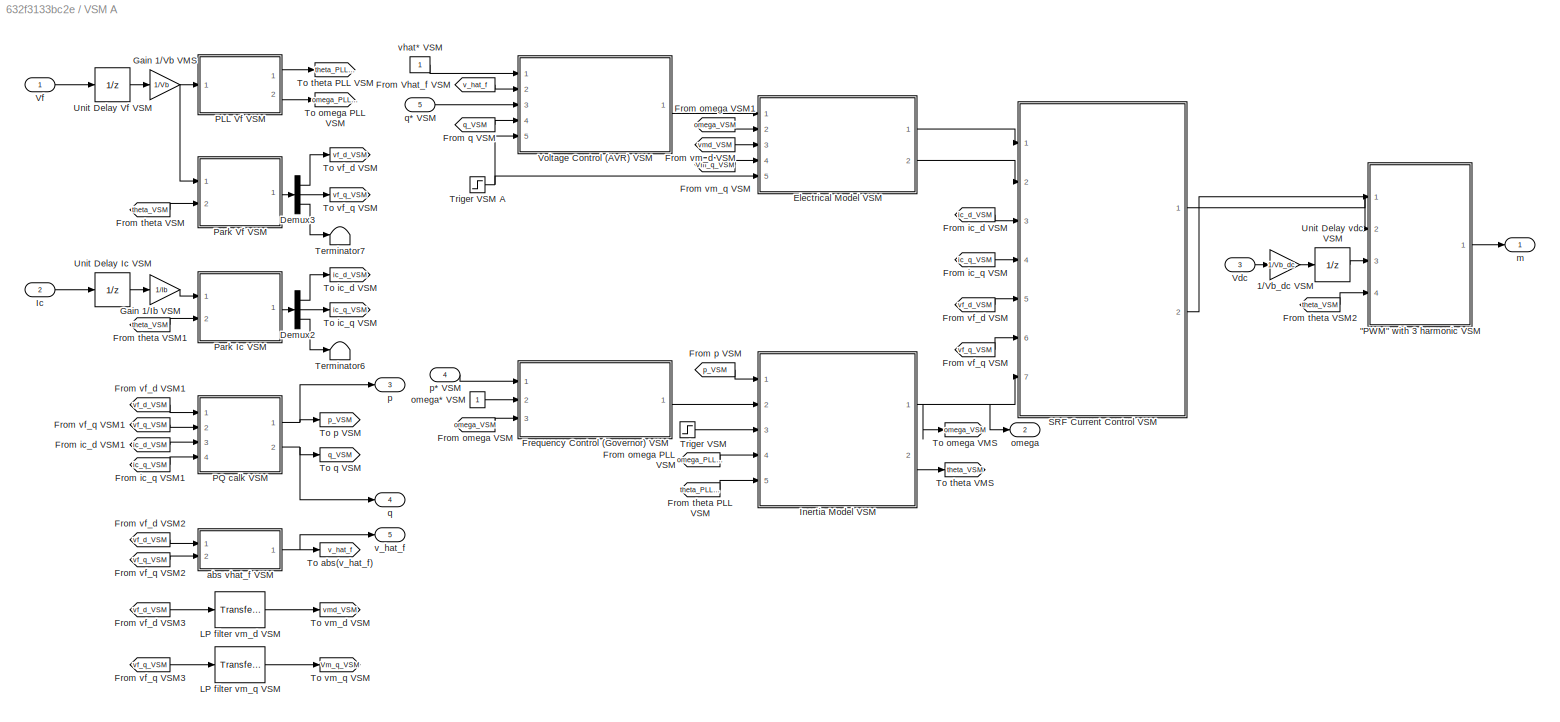
BLOCK [SubSystem] VSM A
  Ports = [5, 5]
  RequestExecContextInheritance = off
BLOCK [SubSystem] VSM A/"PWM" with 3 harmonic VSM
  Ports = [4, 1]
  RequestExecContextInheritance = off
BLOCK [Trigonometry] VSM A/"PWM" with 3 harmonic VSM/Atan2
  Operator = atan2
  Ports = [2, 1]
BLOCK [Constant] VSM A/"PWM" with 3 harmonic VSM/Constant10
  Value = 0
BLOCK [Trigonometry] VSM A/"PWM" with 3 harmonic VSM/Cos1
  Operator = cos
  Ports = [1, 1]
BLOCK [Demux] VSM A/"PWM" with 3 harmonic VSM/Demux2
  Outputs = 3
  Ports = [1, 3]
BLOCK [Product] VSM A/"PWM" with 3 harmonic VSM/Divide3
  Inputs = **
  Ports = [2, 1]
BLOCK [Product] VSM A/"PWM" with 3 harmonic VSM/Divide_d
  Inputs = */
  Ports = [2, 1]
BLOCK [Product] VSM A/"PWM" with 3 harmonic VSM/Divide_q
  Inputs = */
  Ports = [2, 1]
BLOCK [Gain] VSM A/"PWM" with 3 harmonic VSM/Gain1
  Gain = 3
BLOCK [Gain] VSM A/"PWM" with 3 harmonic VSM/Gain6
  Gain = -1/6
BLOCK [Mux] VSM A/"PWM" with 3 harmonic VSM/Mux2
  DisplayOption = bar
  Inputs = 3
  Ports = [3, 1]
BLOCK [Mux] VSM A/"PWM" with 3 harmonic VSM/Mux3
  DisplayOption = bar
  Inputs = 3
  Ports = [3, 1]
BLOCK [Sqrt] VSM A/"PWM" with 3 harmonic VSM/Sqrt1
BLOCK [Math] VSM A/"PWM" with 3 harmonic VSM/Square2
  Operator = square
  Ports = [1, 1]
BLOCK [Math] VSM A/"PWM" with 3 harmonic VSM/Square3
  Operator = square
  Ports = [1, 1]
BLOCK [Sum] VSM A/"PWM" with 3 harmonic VSM/Sum1
  Inputs = |++
  Ports = [2, 1]
BLOCK [Sum] VSM A/"PWM" with 3 harmonic VSM/Sum11
  Inputs = |++
  Ports = [2, 1]
BLOCK [Sum] VSM A/"PWM" with 3 harmonic VSM/Sum12
  Inputs = |++
  Ports = [2, 1]
BLOCK [Sum] VSM A/"PWM" with 3 harmonic VSM/Sum4
  Inputs = ++|
  Ports = [2, 1]
BLOCK [Sum] VSM A/"PWM" with 3 harmonic VSM/Sum6
  Inputs = |++
  Ports = [2, 1]
BLOCK [SubSystem] VSM A/"PWM" with 3 harmonic VSM/inv Park
  ErrorFcn = Stateflow.Translate.translate
  NameLocation = top
  PermitHierarchicalResolution = ExplicitOnly
  Ports = [2, 1]
  RequestExecContextInheritance = off
  SFBlockType = MATLAB Function
  TreatAsAtomicUnit = on
BLOCK [Demux] VSM A/"PWM" with 3 harmonic VSM/inv Park/ Demux 
  Outputs = 1
  Ports = [1, 1]
BLOCK [S-Function] VSM A/"PWM" with 3 harmonic VSM/inv Park/ SFunction 
  EnableBusSupport = on
  FunctionName = sf_sfun
  PortCounts = [2 2]
  Ports = [2, 2]
  SFcnIsStateOwnerBlock = off
  SFunctionDeploymentMode = off
  Tag = Stateflow S-Function 19
BLOCK [Terminator] VSM A/"PWM" with 3 harmonic VSM/inv Park/ Terminator 
BLOCK [Outport] VSM A/"PWM" with 3 harmonic VSM/inv Park/abc
  VectorParamsAs1DForOutWhenUnconnected = off
BLOCK [Inport] VSM A/"PWM" with 3 harmonic VSM/inv Park/dq0
BLOCK [Inport] VSM A/"PWM" with 3 harmonic VSM/inv Park/wt
  Port = 2
BLOCK [Outport] VSM A/"PWM" with 3 harmonic VSM/m
BLOCK [Inport] VSM A/"PWM" with 3 harmonic VSM/theta
  Port = 4
BLOCK [Inport] VSM A/"PWM" with 3 harmonic VSM/v_dc
  Port = 3
BLOCK [Inport] VSM A/"PWM" with 3 harmonic VSM/vc_d*
BLOCK [Inport] VSM A/"PWM" with 3 harmonic VSM/vc_q*
  Port = 2
BLOCK [Gain] VSM A/1//Vb_dc VSM
  Gain = 1/Vb_dc
BLOCK [Demux] VSM A/Demux2
  Outputs = 3
  Ports = [1, 3]
BLOCK [Demux] VSM A/Demux3
  Outputs = 3
  Ports = [1, 3]
BLOCK [SubSystem] VSM A/Electrical Model VSM
  ErrorFcn = Stateflow.Translate.translate
  NameLocation = top
  PermitHierarchicalResolution = ExplicitOnly
  Ports = [5, 2]
  RequestExecContextInheritance = off
  SFBlockType = MATLAB Function
  TreatAsAtomicUnit = on
BLOCK [Demux] VSM A/Electrical Model VSM/ Demux 
  Outputs = 1
  Ports = [1, 1]
BLOCK [S-Function] VSM A/Electrical Model VSM/ SFunction 
  EnableBusSupport = on
  FunctionName = sf_sfun
  PortCounts = [5 3]
  Ports = [5, 3]
  SFcnIsStateOwnerBlock = off
  SFunctionDeploymentMode = off
  Tag = Stateflow S-Function 20
BLOCK [Terminator] VSM A/Electrical Model VSM/ Terminator 
BLOCK [Outport] VSM A/Electrical Model VSM/id_star
  VectorParamsAs1DForOutWhenUnconnected = off
BLOCK [Outport] VSM A/Electrical Model VSM/iq_star
  Port = 2
BLOCK [Inport] VSM A/Electrical Model VSM/omega
  Port = 2
BLOCK [Inport] VSM A/Electrical Model VSM/triger
  Port = 5
BLOCK [Inport] VSM A/Electrical Model VSM/vhat_e
BLOCK [Inport] VSM A/Electrical Model VSM/vmd
  Port = 3
BLOCK [Inport] VSM A/Electrical Model VSM/vmq
  Port = 4
BLOCK [SubSystem] VSM A/Frequency Control (Governor) VSM
  Ports = [3, 1]
  RequestExecContextInheritance = off
BLOCK [Gain] VSM A/Frequency Control (Governor) VSM/Gain8
  Gain = K_omega
BLOCK [Sum] VSM A/Frequency Control (Governor) VSM/Sum
  Inputs = ++|
  Ports = [2, 1]
BLOCK [Sum] VSM A/Frequency Control (Governor) VSM/Sum1
  Inputs = |+-
  Ports = [2, 1]
BLOCK [Inport] VSM A/Frequency Control (Governor) VSM/omega VMS
  Port = 3
BLOCK [Inport] VSM A/Frequency Control (Governor) VSM/omega* VMS
  Port = 2
BLOCK [Inport] VSM A/Frequency Control (Governor) VSM/p*
BLOCK [Outport] VSM A/Frequency Control (Governor) VSM/pr*
BLOCK [From] VSM A/From Vhat_f VSM
  GotoTag = v_hat_f
BLOCK [From] VSM A/From ic_d VSM
  GotoTag = ic_d_VSM
BLOCK [From] VSM A/From ic_d VSM1
  GotoTag = ic_d_VSM
BLOCK [From] VSM A/From ic_q VSM
  GotoTag = ic_q_VSM
BLOCK [From] VSM A/From ic_q VSM1
  GotoTag = ic_q_VSM
BLOCK [From] VSM A/From omega PLL VSM
  GotoTag = omega_PLL_VSM_A
BLOCK [From] VSM A/From omega VSM
  GotoTag = omega_VSM
BLOCK [From] VSM A/From omega VSM1
  GotoTag = omega_VSM
BLOCK [From] VSM A/From p VSM
  GotoTag = p_VSM
BLOCK [From] VSM A/From q VSM
  GotoTag = q_VSM
BLOCK [From] VSM A/From theta PLL VSM
  GotoTag = theta_PLL_VSM_A
BLOCK [From] VSM A/From theta VSM
  GotoTag = theta_VSM
BLOCK [From] VSM A/From theta VSM1
  GotoTag = theta_VSM
BLOCK [From] VSM A/From theta VSM2
  GotoTag = theta_VSM
BLOCK [From] VSM A/From vf_d VSM
  GotoTag = vf_d_VSM
BLOCK [From] VSM A/From vf_d VSM1
  GotoTag = vf_d_VSM
BLOCK [From] VSM A/From vf_d VSM2
  GotoTag = vf_d_VSM
BLOCK [From] VSM A/From vf_d VSM3
  GotoTag = vf_d_VSM
BLOCK [From] VSM A/From vf_q VSM
  GotoTag = vf_q_VSM
BLOCK [From] VSM A/From vf_q VSM1
  GotoTag = vf_q_VSM
BLOCK [From] VSM A/From vf_q VSM2
  GotoTag = vf_q_VSM
BLOCK [From] VSM A/From vf_q VSM3
  GotoTag = vf_q_VSM
BLOCK [From] VSM A/From vm_d VSM
  GotoTag = vmd_VSM
BLOCK [From] VSM A/From vm_q VSM
  GotoTag = Vm_q_VSM
BLOCK [Gain] VSM A/Gain 1//Ib VSM
  Gain = 1/Ib
BLOCK [Gain] VSM A/Gain 1//Vb VMS
  Gain = 1/Vb
BLOCK [Inport] VSM A/Ic
  Port = 2
BLOCK [SubSystem] VSM A/Inertia Model VSM
  Ports = [5, 2]
  RequestExecContextInheritance = off
BLOCK [Gain] VSM A/Inertia Model VSM/Gain
  Gain = 1/Ta
BLOCK [Gain] VSM A/Inertia Model VSM/Gain1
  Gain = omega_b
BLOCK [Gain] VSM A/Inertia Model VSM/Gain3
  Gain = Kd
  NameLocation = top
BLOCK [Integrator] VSM A/Inertia Model VSM/Integrator1
  ExternalReset = level hold
  InitialCondition = 1
  InitialConditionSource = external
  Ports = [3, 1]
  WrapState = on
  WrappedStateLowerValue = 0
  WrappedStateUpperValue = 2*pi
BLOCK [Integrator] VSM A/Inertia Model VSM/Integrator2
  ExternalReset = level hold
  InitialCondition = 1
  InitialConditionSource = external
  Ports = [3, 1]
BLOCK [Sum] VSM A/Inertia Model VSM/Sum
  Inputs = -+|
  NameLocation = top
  Ports = [2, 1]
BLOCK [Sum] VSM A/Inertia Model VSM/Sum1
  Inputs = -+-
  Ports = [3, 1]
BLOCK [Reference] VSM A/Inertia Model VSM/Transfer Fcn (with initial outputs)  REF=simulink_extras/Additional
Linear/Transfer Fcn
(with initial outputs)
  Commented = on
  NameLocation = top
  Ports = [1, 1]
  SourceBlock = simulink_extras/Additional\nLinear/Transfer Fcn\n(with initial outputs)
  SourceProductBaseCode = SL
  SourceType = Transfer Function with Initial Outputs
BLOCK [Inport] VSM A/Inertia Model VSM/omega_PLL
  Port = 4
BLOCK [Outport] VSM A/Inertia Model VSM/omega_VSM
BLOCK [Inport] VSM A/Inertia Model VSM/p
BLOCK [Inport] VSM A/Inertia Model VSM/pr*
  Port = 2
BLOCK [Inport] VSM A/Inertia Model VSM/theta_PLL
  Port = 5
BLOCK [Outport] VSM A/Inertia Model VSM/theta_VSM
  Port = 2
BLOCK [Inport] VSM A/Inertia Model VSM/triger
  Port = 3
BLOCK [Reference] VSM A/LP filter vm_d VSM  REF=simulink_extras/Additional
Linear/Transfer Fcn
(with initial outputs)
  Ports = [1, 1]
  SourceBlock = simulink_extras/Additional\nLinear/Transfer Fcn\n(with initial outputs)
  SourceProductBaseCode = SL
  SourceType = Transfer Function with Initial Outputs
BLOCK [Reference] VSM A/LP filter vm_q VSM  REF=simulink_extras/Additional
Linear/Transfer Fcn
(with initial outputs)
  Ports = [1, 1]
  SourceBlock = simulink_extras/Additional\nLinear/Transfer Fcn\n(with initial outputs)
  SourceProductBaseCode = SL
  SourceType = Transfer Function with Initial Outputs
BLOCK [SubSystem] VSM A/PLL Vf VSM
  Ports = [1, 2]
  RequestExecContextInheritance = off
BLOCK [Trigonometry] VSM A/PLL Vf VSM/Atan2
  Operator = atan2
  OutputSignalType = real
  Ports = [2, 1]
BLOCK [Constant] VSM A/PLL Vf VSM/Constant1
  NameLocation = left
  Value = fb
BLOCK [Demux] VSM A/PLL Vf VSM/Demux
  Outputs = 3
  Ports = [1, 3]
BLOCK [Gain] VSM A/PLL Vf VSM/Gain
  Gain = K_vco
BLOCK [Gain] VSM A/PLL Vf VSM/Gain12
  Gain = 1/omega_b
BLOCK [Gain] VSM A/PLL Vf VSM/Gain17
  Gain = K_iPLL
BLOCK [Gain] VSM A/PLL Vf VSM/Gain18
  Gain = K_pPLL
BLOCK [Integrator] VSM A/PLL Vf VSM/Integrator2
  Ports = [1, 1]
BLOCK [SubSystem] VSM A/PLL Vf VSM/Park
  ErrorFcn = Stateflow.Translate.translate
  PermitHierarchicalResolution = ExplicitOnly
  Ports = [2, 1]
  RequestExecContextInheritance = off
  SFBlockType = MATLAB Function
  TreatAsAtomicUnit = on
BLOCK [Demux] VSM A/PLL Vf VSM/Park/ Demux 
  Outputs = 1
  Ports = [1, 1]
BLOCK [S-Function] VSM A/PLL Vf VSM/Park/ SFunction 
  EnableBusSupport = on
  FunctionName = sf_sfun
  PortCounts = [2 2]
  Ports = [2, 2]
  SFcnIsStateOwnerBlock = off
  SFunctionDeploymentMode = off
  Tag = Stateflow S-Function 21
BLOCK [Terminator] VSM A/PLL Vf VSM/Park/ Terminator 
BLOCK [Inport] VSM A/PLL Vf VSM/Park/abc
  Port = 2
BLOCK [Outport] VSM A/PLL Vf VSM/Park/dq0
  VectorParamsAs1DForOutWhenUnconnected = off
BLOCK [Inport] VSM A/PLL Vf VSM/Park/theta
BLOCK [Sum] VSM A/PLL Vf VSM/Sum1
  Inputs = ++|
  Ports = [2, 1]
BLOCK [Sum] VSM A/PLL Vf VSM/Sum10
  Inputs = ++|
  Ports = [2, 1]
BLOCK [Terminator] VSM A/PLL Vf VSM/Terminator
  NameLocation = top
BLOCK [Reference] VSM A/PLL Vf VSM/Transfer Fcn (with initial outputs)1  REF=simulink_extras/Additional
Linear/Transfer Fcn
(with initial outputs)
  NameLocation = top
  Ports = [1, 1]
  SourceBlock = simulink_extras/Additional\nLinear/Transfer Fcn\n(with initial outputs)
  SourceProductBaseCode = SL
  SourceType = Transfer Function with Initial Outputs
BLOCK [Reference] VSM A/PLL Vf VSM/Transfer Fcn (with initial outputs)3  REF=simulink_extras/Additional
Linear/Transfer Fcn
(with initial outputs)
  NameLocation = top
  Ports = [1, 1]
  SourceBlock = simulink_extras/Additional\nLinear/Transfer Fcn\n(with initial outputs)
  SourceProductBaseCode = SL
  SourceType = Transfer Function with Initial Outputs
BLOCK [Integrator] VSM A/PLL Vf VSM/VCO
  Ports = [1, 1]
  WrapState = on
  WrappedStateLowerValue = 0
  WrappedStateUpperValue = 2*pi
BLOCK [Inport] VSM A/PLL Vf VSM/Vo
  NameLocation = top
BLOCK [Outport] VSM A/PLL Vf VSM/omega_PLL
  Port = 2
BLOCK [Outport] VSM A/PLL Vf VSM/theta_PLL
BLOCK [SubSystem] VSM A/PQ calk VSM
  ErrorFcn = Stateflow.Translate.translate
  NameLocation = top
  PermitHierarchicalResolution = ExplicitOnly
  Ports = [4, 2]
  RequestExecContextInheritance = off
  SFBlockType = MATLAB Function
  TreatAsAtomicUnit = on
BLOCK [Demux] VSM A/PQ calk VSM/ Demux 
  Outputs = 1
  Ports = [1, 1]
BLOCK [S-Function] VSM A/PQ calk VSM/ SFunction 
  EnableBusSupport = on
  FunctionName = sf_sfun
  PortCounts = [4 3]
  Ports = [4, 3]
  SFcnIsStateOwnerBlock = off
  SFunctionDeploymentMode = off
  Tag = Stateflow S-Function 22
BLOCK [Terminator] VSM A/PQ calk VSM/ Terminator 
BLOCK [Inport] VSM A/PQ calk VSM/id
  Port = 3
BLOCK [Inport] VSM A/PQ calk VSM/iq
  Port = 4
BLOCK [Outport] VSM A/PQ calk VSM/p
  VectorParamsAs1DForOutWhenUnconnected = off
BLOCK [Outport] VSM A/PQ calk VSM/q
  Port = 2
BLOCK [Inport] VSM A/PQ calk VSM/vd
BLOCK [Inport] VSM A/PQ calk VSM/vq
  Port = 2
BLOCK [SubSystem] VSM A/Park Ic VSM
  ErrorFcn = Stateflow.Translate.translate
  NameLocation = top
  PermitHierarchicalResolution = ExplicitOnly
  Ports = [2, 1]
  RequestExecContextInheritance = off
  SFBlockType = MATLAB Function
  TreatAsAtomicUnit = on
BLOCK [Demux] VSM A/Park Ic VSM/ Demux 
  Outputs = 1
  Ports = [1, 1]
BLOCK [S-Function] VSM A/Park Ic VSM/ SFunction 
  EnableBusSupport = on
  FunctionName = sf_sfun
  PortCounts = [2 2]
  Ports = [2, 2]
  SFcnIsStateOwnerBlock = off
  SFunctionDeploymentMode = off
  Tag = Stateflow S-Function 23
BLOCK [Terminator] VSM A/Park Ic VSM/ Terminator 
BLOCK [Inport] VSM A/Park Ic VSM/abc
BLOCK [Outport] VSM A/Park Ic VSM/dq0
  VectorParamsAs1DForOutWhenUnconnected = off
BLOCK [Inport] VSM A/Park Ic VSM/theta
  Port = 2
BLOCK [SubSystem] VSM A/Park Vf VSM
  ErrorFcn = Stateflow.Translate.translate
  NameLocation = top
  PermitHierarchicalResolution = ExplicitOnly
  Ports = [2, 1]
  RequestExecContextInheritance = off
  SFBlockType = MATLAB Function
  TreatAsAtomicUnit = on
BLOCK [Demux] VSM A/Park Vf VSM/ Demux 
  Outputs = 1
  Ports = [1, 1]
BLOCK [S-Function] VSM A/Park Vf VSM/ SFunction 
  EnableBusSupport = on
  FunctionName = sf_sfun
  PortCounts = [2 2]
  Ports = [2, 2]
  SFcnIsStateOwnerBlock = off
  SFunctionDeploymentMode = off
  Tag = Stateflow S-Function 24
BLOCK [Terminator] VSM A/Park Vf VSM/ Terminator 
BLOCK [Inport] VSM A/Park Vf VSM/abc
BLOCK [Outport] VSM A/Park Vf VSM/dq0
  VectorParamsAs1DForOutWhenUnconnected = off
BLOCK [Inport] VSM A/Park Vf VSM/theta
  Port = 2
BLOCK [SubSystem] VSM A/SRF Current Control VSM
  Ports = [7, 2]
  RequestExecContextInheritance = off
BLOCK [Product] VSM A/SRF Current Control VSM/Divide3
  Inputs = **
  Ports = [2, 1]
BLOCK [Product] VSM A/SRF Current Control VSM/Divide4
  Inputs = **
  Ports = [2, 1]
BLOCK [Gain] VSM A/SRF Current Control VSM/Gain
  Gain = l_f_pu
BLOCK [Gain] VSM A/SRF Current Control VSM/Gain1
  Gain = K_ad
BLOCK [Gain] VSM A/SRF Current Control VSM/Gain15
  Gain = K_ic
BLOCK [Gain] VSM A/SRF Current Control VSM/Gain17
  Gain = K_ic
BLOCK [Gain] VSM A/SRF Current Control VSM/Gain18
  Gain = K_pc
BLOCK [Gain] VSM A/SRF Current Control VSM/Gain2
  Gain = K_ffv
BLOCK [Gain] VSM A/SRF Current Control VSM/Gain3
  Gain = K_ad
BLOCK [Gain] VSM A/SRF Current Control VSM/Gain4
  Gain = K_ffv
BLOCK [Gain] VSM A/SRF Current Control VSM/Gain7
  Gain = l_f_pu
BLOCK [Gain] VSM A/SRF Current Control VSM/Gain8
  Gain = K_pc
BLOCK [Integrator] VSM A/SRF Current Control VSM/Integrator
  InitialCondition = 1
  Ports = [1, 1]
BLOCK [Integrator] VSM A/SRF Current Control VSM/Integrator1
  Ports = [1, 1]
BLOCK [Sum] VSM A/SRF Current Control VSM/Sum
  Inputs = |-+
  Ports = [2, 1]
BLOCK [Sum] VSM A/SRF Current Control VSM/Sum1
  Inputs = -+|
  Ports = [2, 1]
BLOCK [Sum] VSM A/SRF Current Control VSM/Sum10
  Inputs = ++|
  Ports = [2, 1]
BLOCK [Sum] VSM A/SRF Current Control VSM/Sum2
  Inputs = +-|
  Ports = [2, 1]
BLOCK [Sum] VSM A/SRF Current Control VSM/Sum5
  Inputs = +|++-
  Ports = [4, 1]
BLOCK [Sum] VSM A/SRF Current Control VSM/Sum7
  Inputs = |+-
  Ports = [2, 1]
BLOCK [Sum] VSM A/SRF Current Control VSM/Sum8
  Inputs = -++|-
  Ports = [4, 1]
BLOCK [Sum] VSM A/SRF Current Control VSM/Sum9
  Inputs = |++
  Ports = [2, 1]
BLOCK [Reference] VSM A/SRF Current Control VSM/Transfer Fcn (with initial outputs)1  REF=simulink_extras/Additional
Linear/Transfer Fcn
(with initial outputs)
  Ports = [1, 1]
  SourceBlock = simulink_extras/Additional\nLinear/Transfer Fcn\n(with initial outputs)
  SourceProductBaseCode = SL
  SourceType = Transfer Function with Initial Outputs
BLOCK [Reference] VSM A/SRF Current Control VSM/Transfer Fcn (with initial outputs)2  REF=simulink_extras/Additional
Linear/Transfer Fcn
(with initial outputs)
  Ports = [1, 1]
  SourceBlock = simulink_extras/Additional\nLinear/Transfer Fcn\n(with initial outputs)
  SourceProductBaseCode = SL
  SourceType = Transfer Function with Initial Outputs
BLOCK [Inport] VSM A/SRF Current Control VSM/ic_d
  Port = 3
BLOCK [Inport] VSM A/SRF Current Control VSM/ic_d*
BLOCK [Inport] VSM A/SRF Current Control VSM/ic_q
  Port = 4
BLOCK [Inport] VSM A/SRF Current Control VSM/ic_q*
  Port = 2
BLOCK [Inport] VSM A/SRF Current Control VSM/omega
  Port = 7
BLOCK [Outport] VSM A/SRF Current Control VSM/vc_d*
BLOCK [Outport] VSM A/SRF Current Control VSM/vc_q*
  Port = 2
BLOCK [Inport] VSM A/SRF Current Control VSM/vf_d
  Port = 5
BLOCK [Inport] VSM A/SRF Current Control VSM/vf_q
  Port = 6
BLOCK [Terminator] VSM A/Terminator6
BLOCK [Terminator] VSM A/Terminator7
BLOCK [Goto] VSM A/To abs(v_hat_f)
  GotoTag = v_hat_f
BLOCK [Goto] VSM A/To ic_d VSM 
  GotoTag = ic_d_VSM
BLOCK [Goto] VSM A/To ic_q VSM
  GotoTag = ic_q_VSM
BLOCK [Goto] VSM A/To omega PLL VSM
  GotoTag = omega_PLL_VSM_A
BLOCK [Goto] VSM A/To omega VMS
  GotoTag = omega_VSM
BLOCK [Goto] VSM A/To p VSM
  GotoTag = p_VSM
BLOCK [Goto] VSM A/To q VSM
  GotoTag = q_VSM
BLOCK [Goto] VSM A/To theta PLL VSM
  GotoTag = theta_PLL_VSM_A
BLOCK [Goto] VSM A/To theta VMS
  GotoTag = theta_VSM
BLOCK [Goto] VSM A/To vf_d VSM
  GotoTag = vf_d_VSM
BLOCK [Goto] VSM A/To vf_q VSM
  GotoTag = vf_q_VSM
BLOCK [Goto] VSM A/To vm_d VSM
  GotoTag = vmd_VSM
BLOCK [Goto] VSM A/To vm_q VSM
  GotoTag = Vm_q_VSM
BLOCK [Step] VSM A/Triger VSM
  After = 0
  Before = 1
  SampleTime = 0
  Time = 0
BLOCK [Step] VSM A/Triger VSM A
  After = 0
  Before = 1
  SampleTime = 0
  Time = 0
BLOCK [UnitDelay] VSM A/Unit Delay Ic VSM
  HasFrameUpgradeWarning = on
  SampleTime = -1
BLOCK [UnitDelay] VSM A/Unit Delay Vf VSM
  HasFrameUpgradeWarning = on
  SampleTime = -1
BLOCK [UnitDelay] VSM A/Unit Delay vdc VSM
  HasFrameUpgradeWarning = on
  InitialCondition = 1
  SampleTime = -1
BLOCK [Inport] VSM A/Vdc
  Port = 3
BLOCK [Inport] VSM A/Vf
BLOCK [SubSystem] VSM A/Voltage Control (AVR) VSM
  Ports = [5, 1]
  RequestExecContextInheritance = off
BLOCK [Gain] VSM A/Voltage Control (AVR) VSM/Gain15
  Gain = K_iv
BLOCK [Gain] VSM A/Voltage Control (AVR) VSM/Gain2
  Gain = Kq
BLOCK [Gain] VSM A/Voltage Control (AVR) VSM/Gain8
  Gain = K_pv
BLOCK [Integrator] VSM A/Voltage Control (AVR) VSM/Integrator
  ExternalReset = level hold
  Ports = [2, 1]
BLOCK [Sum] VSM A/Voltage Control (AVR) VSM/Sum1
  Inputs = -++
  Ports = [3, 1]
BLOCK [Sum] VSM A/Voltage Control (AVR) VSM/Sum2
  Inputs = |+-
  Ports = [2, 1]
BLOCK [Sum] VSM A/Voltage Control (AVR) VSM/Sum9
  Inputs = |++
  Ports = [2, 1]
BLOCK [Reference] VSM A/Voltage Control (AVR) VSM/Transfer Fcn (with initial outputs)  REF=simulink_extras/Additional
Linear/Transfer Fcn
(with initial outputs)
  Ports = [1, 1]
  SourceBlock = simulink_extras/Additional\nLinear/Transfer Fcn\n(with initial outputs)
  SourceProductBaseCode = SL
  SourceType = Transfer Function with Initial Outputs
BLOCK [Inport] VSM A/Voltage Control (AVR) VSM/q
  Port = 4
BLOCK [Inport] VSM A/Voltage Control (AVR) VSM/q*
  Port = 3
BLOCK [Inport] VSM A/Voltage Control (AVR) VSM/triger
  Port = 5
BLOCK [Inport] VSM A/Voltage Control (AVR) VSM/vhat*
BLOCK [Outport] VSM A/Voltage Control (AVR) VSM/vhat_e
BLOCK [Inport] VSM A/Voltage Control (AVR) VSM/vhat_f
  Port = 2
BLOCK [SubSystem] VSM A/abs vhat_f VSM
  ErrorFcn = Stateflow.Translate.translate
  NameLocation = top
  PermitHierarchicalResolution = ExplicitOnly
  Ports = [2, 1]
  RequestExecContextInheritance = off
  SFBlockType = MATLAB Function
  TreatAsAtomicUnit = on
BLOCK [Demux] VSM A/abs vhat_f VSM/ Demux 
  Outputs = 1
  Ports = [1, 1]
BLOCK [S-Function] VSM A/abs vhat_f VSM/ SFunction 
  EnableBusSupport = on
  FunctionName = sf_sfun
  PortCounts = [2 2]
  Ports = [2, 2]
  SFcnIsStateOwnerBlock = off
  SFunctionDeploymentMode = off
  Tag = Stateflow S-Function 25
BLOCK [Terminator] VSM A/abs vhat_f VSM/ Terminator 
BLOCK [Outport] VSM A/abs vhat_f VSM/v_abs
  VectorParamsAs1DForOutWhenUnconnected = off
BLOCK [Inport] VSM A/abs vhat_f VSM/vd
BLOCK [Inport] VSM A/abs vhat_f VSM/vq
  Port = 2
BLOCK [Outport] VSM A/m
BLOCK [Outport] VSM A/omega
  Port = 2
BLOCK [Constant] VSM A/omega* VSM
BLOCK [Outport] VSM A/p
  Port = 3
BLOCK [Inport] VSM A/p* VSM
  Port = 4
BLOCK [Outport] VSM A/q
  Port = 4
BLOCK [Inport] VSM A/q* VSM
  Port = 5
BLOCK [Outport] VSM A/v_hat_f
  Port = 5
BLOCK [Constant] VSM A/vhat* VSM
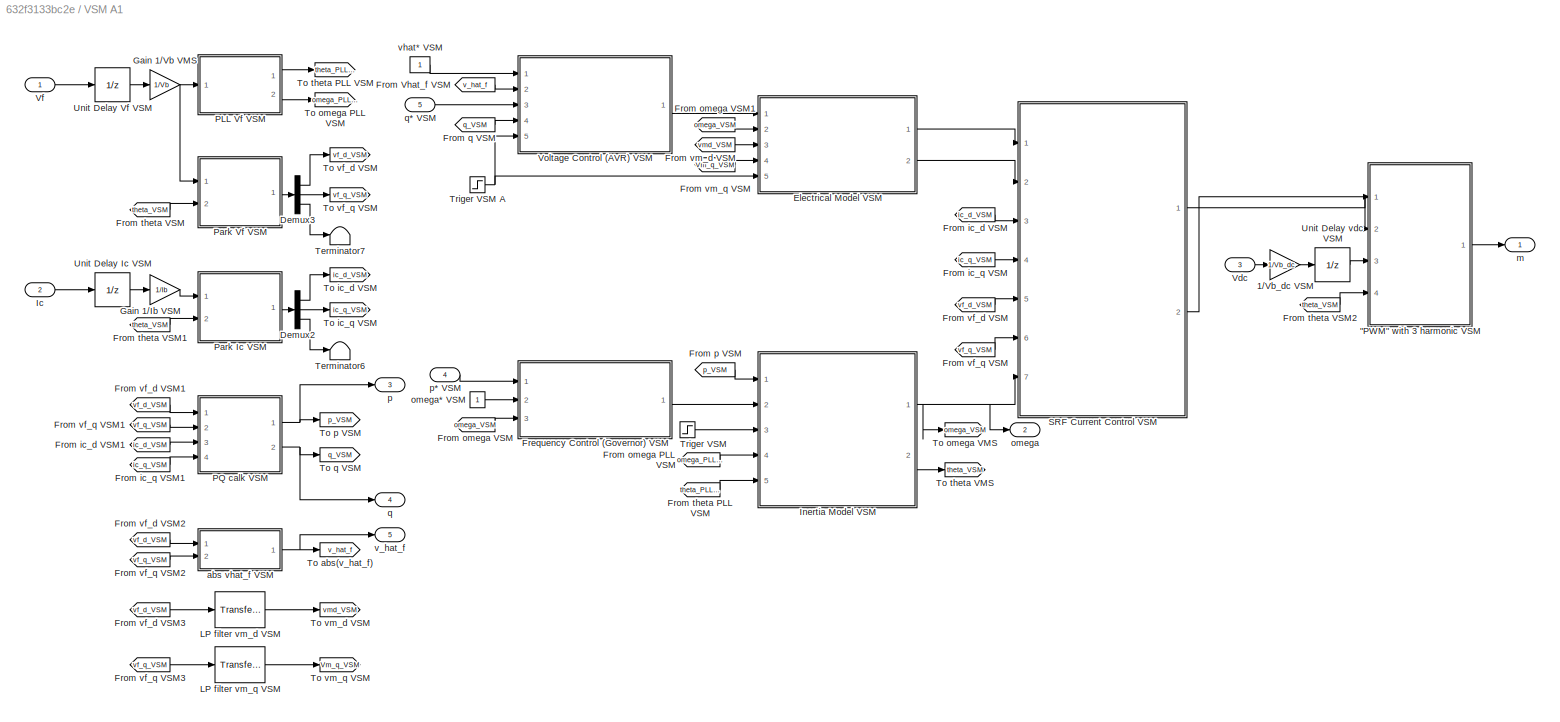
BLOCK [SubSystem] VSM A1
  Ports = [5, 5]
  RequestExecContextInheritance = off
BLOCK [SubSystem] VSM A1/"PWM" with 3 harmonic VSM
  Ports = [4, 1]
  RequestExecContextInheritance = off
BLOCK [Trigonometry] VSM A1/"PWM" with 3 harmonic VSM/Atan2
  Operator = atan2
  Ports = [2, 1]
BLOCK [Constant] VSM A1/"PWM" with 3 harmonic VSM/Constant10
  Value = 0
BLOCK [Trigonometry] VSM A1/"PWM" with 3 harmonic VSM/Cos1
  Operator = cos
  Ports = [1, 1]
BLOCK [Demux] VSM A1/"PWM" with 3 harmonic VSM/Demux2
  Outputs = 3
  Ports = [1, 3]
BLOCK [Product] VSM A1/"PWM" with 3 harmonic VSM/Divide3
  Inputs = **
  Ports = [2, 1]
BLOCK [Product] VSM A1/"PWM" with 3 harmonic VSM/Divide_d
  Inputs = */
  Ports = [2, 1]
BLOCK [Product] VSM A1/"PWM" with 3 harmonic VSM/Divide_q
  Inputs = */
  Ports = [2, 1]
BLOCK [Gain] VSM A1/"PWM" with 3 harmonic VSM/Gain1
  Gain = 3
BLOCK [Gain] VSM A1/"PWM" with 3 harmonic VSM/Gain6
  Gain = -1/6
BLOCK [Mux] VSM A1/"PWM" with 3 harmonic VSM/Mux2
  DisplayOption = bar
  Inputs = 3
  Ports = [3, 1]
BLOCK [Mux] VSM A1/"PWM" with 3 harmonic VSM/Mux3
  DisplayOption = bar
  Inputs = 3
  Ports = [3, 1]
BLOCK [Sqrt] VSM A1/"PWM" with 3 harmonic VSM/Sqrt1
BLOCK [Math] VSM A1/"PWM" with 3 harmonic VSM/Square2
  Operator = square
  Ports = [1, 1]
BLOCK [Math] VSM A1/"PWM" with 3 harmonic VSM/Square3
  Operator = square
  Ports = [1, 1]
BLOCK [Sum] VSM A1/"PWM" with 3 harmonic VSM/Sum1
  Inputs = |++
  Ports = [2, 1]
BLOCK [Sum] VSM A1/"PWM" with 3 harmonic VSM/Sum11
  Inputs = |++
  Ports = [2, 1]
BLOCK [Sum] VSM A1/"PWM" with 3 harmonic VSM/Sum12
  Inputs = |++
  Ports = [2, 1]
BLOCK [Sum] VSM A1/"PWM" with 3 harmonic VSM/Sum4
  Inputs = ++|
  Ports = [2, 1]
BLOCK [Sum] VSM A1/"PWM" with 3 harmonic VSM/Sum6
  Inputs = |++
  Ports = [2, 1]
BLOCK [SubSystem] VSM A1/"PWM" with 3 harmonic VSM/inv Park
  ErrorFcn = Stateflow.Translate.translate
  NameLocation = top
  PermitHierarchicalResolution = ExplicitOnly
  Ports = [2, 1]
  RequestExecContextInheritance = off
  SFBlockType = MATLAB Function
  TreatAsAtomicUnit = on
BLOCK [Demux] VSM A1/"PWM" with 3 harmonic VSM/inv Park/ Demux 
  Outputs = 1
  Ports = [1, 1]
BLOCK [S-Function] VSM A1/"PWM" with 3 harmonic VSM/inv Park/ SFunction 
  EnableBusSupport = on
  FunctionName = sf_sfun
  PortCounts = [2 2]
  Ports = [2, 2]
  SFcnIsStateOwnerBlock = off
  SFunctionDeploymentMode = off
  Tag = Stateflow S-Function 5
BLOCK [Terminator] VSM A1/"PWM" with 3 harmonic VSM/inv Park/ Terminator 
BLOCK [Outport] VSM A1/"PWM" with 3 harmonic VSM/inv Park/abc
  VectorParamsAs1DForOutWhenUnconnected = off
BLOCK [Inport] VSM A1/"PWM" with 3 harmonic VSM/inv Park/dq0
BLOCK [Inport] VSM A1/"PWM" with 3 harmonic VSM/inv Park/wt
  Port = 2
BLOCK [Outport] VSM A1/"PWM" with 3 harmonic VSM/m
BLOCK [Inport] VSM A1/"PWM" with 3 harmonic VSM/theta
  Port = 4
BLOCK [Inport] VSM A1/"PWM" with 3 harmonic VSM/v_dc
  Port = 3
BLOCK [Inport] VSM A1/"PWM" with 3 harmonic VSM/vc_d*
BLOCK [Inport] VSM A1/"PWM" with 3 harmonic VSM/vc_q*
  Port = 2
BLOCK [Gain] VSM A1/1//Vb_dc VSM
  Gain = 1/Vb_dc
BLOCK [Demux] VSM A1/Demux2
  Outputs = 3
  Ports = [1, 3]
BLOCK [Demux] VSM A1/Demux3
  Outputs = 3
  Ports = [1, 3]
BLOCK [SubSystem] VSM A1/Electrical Model VSM
  ErrorFcn = Stateflow.Translate.translate
  NameLocation = top
  PermitHierarchicalResolution = ExplicitOnly
  Ports = [5, 2]
  RequestExecContextInheritance = off
  SFBlockType = MATLAB Function
  TreatAsAtomicUnit = on
BLOCK [Demux] VSM A1/Electrical Model VSM/ Demux 
  Outputs = 1
  Ports = [1, 1]
BLOCK [S-Function] VSM A1/Electrical Model VSM/ SFunction 
  EnableBusSupport = on
  FunctionName = sf_sfun
  PortCounts = [5 3]
  Ports = [5, 3]
  SFcnIsStateOwnerBlock = off
  SFunctionDeploymentMode = off
  Tag = Stateflow S-Function 7
BLOCK [Terminator] VSM A1/Electrical Model VSM/ Terminator 
BLOCK [Outport] VSM A1/Electrical Model VSM/id_star
  VectorParamsAs1DForOutWhenUnconnected = off
BLOCK [Outport] VSM A1/Electrical Model VSM/iq_star
  Port = 2
BLOCK [Inport] VSM A1/Electrical Model VSM/omega
  Port = 2
BLOCK [Inport] VSM A1/Electrical Model VSM/triger
  Port = 5
BLOCK [Inport] VSM A1/Electrical Model VSM/vhat_e
BLOCK [Inport] VSM A1/Electrical Model VSM/vmd
  Port = 3
BLOCK [Inport] VSM A1/Electrical Model VSM/vmq
  Port = 4
BLOCK [SubSystem] VSM A1/Frequency Control (Governor) VSM
  Ports = [3, 1]
  RequestExecContextInheritance = off
BLOCK [Gain] VSM A1/Frequency Control (Governor) VSM/Gain8
  Gain = K_omega
BLOCK [Sum] VSM A1/Frequency Control (Governor) VSM/Sum
  Inputs = ++|
  Ports = [2, 1]
BLOCK [Sum] VSM A1/Frequency Control (Governor) VSM/Sum1
  Inputs = |+-
  Ports = [2, 1]
BLOCK [Inport] VSM A1/Frequency Control (Governor) VSM/omega VMS
  Port = 3
BLOCK [Inport] VSM A1/Frequency Control (Governor) VSM/omega* VMS
  Port = 2
BLOCK [Inport] VSM A1/Frequency Control (Governor) VSM/p*
BLOCK [Outport] VSM A1/Frequency Control (Governor) VSM/pr*
BLOCK [From] VSM A1/From Vhat_f VSM
  GotoTag = v_hat_f
BLOCK [From] VSM A1/From ic_d VSM
  GotoTag = ic_d_VSM
BLOCK [From] VSM A1/From ic_d VSM1
  GotoTag = ic_d_VSM
BLOCK [From] VSM A1/From ic_q VSM
  GotoTag = ic_q_VSM
BLOCK [From] VSM A1/From ic_q VSM1
  GotoTag = ic_q_VSM
BLOCK [From] VSM A1/From omega PLL VSM
  GotoTag = omega_PLL_VSM_A
BLOCK [From] VSM A1/From omega VSM
  GotoTag = omega_VSM
BLOCK [From] VSM A1/From omega VSM1
  GotoTag = omega_VSM
BLOCK [From] VSM A1/From p VSM
  GotoTag = p_VSM
BLOCK [From] VSM A1/From q VSM
  GotoTag = q_VSM
BLOCK [From] VSM A1/From theta PLL VSM
  GotoTag = theta_PLL_VSM_A
BLOCK [From] VSM A1/From theta VSM
  GotoTag = theta_VSM
BLOCK [From] VSM A1/From theta VSM1
  GotoTag = theta_VSM
BLOCK [From] VSM A1/From theta VSM2
  GotoTag = theta_VSM
BLOCK [From] VSM A1/From vf_d VSM
  GotoTag = vf_d_VSM
BLOCK [From] VSM A1/From vf_d VSM1
  GotoTag = vf_d_VSM
BLOCK [From] VSM A1/From vf_d VSM2
  GotoTag = vf_d_VSM
BLOCK [From] VSM A1/From vf_d VSM3
  GotoTag = vf_d_VSM
BLOCK [From] VSM A1/From vf_q VSM
  GotoTag = vf_q_VSM
BLOCK [From] VSM A1/From vf_q VSM1
  GotoTag = vf_q_VSM
BLOCK [From] VSM A1/From vf_q VSM2
  GotoTag = vf_q_VSM
BLOCK [From] VSM A1/From vf_q VSM3
  GotoTag = vf_q_VSM
BLOCK [From] VSM A1/From vm_d VSM
  GotoTag = vmd_VSM
BLOCK [From] VSM A1/From vm_q VSM
  GotoTag = Vm_q_VSM
BLOCK [Gain] VSM A1/Gain 1//Ib VSM
  Gain = 1/Ib
BLOCK [Gain] VSM A1/Gain 1//Vb VMS
  Gain = 1/Vb
BLOCK [Inport] VSM A1/Ic
  Port = 2
BLOCK [SubSystem] VSM A1/Inertia Model VSM
  Ports = [5, 2]
  RequestExecContextInheritance = off
BLOCK [Gain] VSM A1/Inertia Model VSM/Gain
  Gain = 1/Ta
BLOCK [Gain] VSM A1/Inertia Model VSM/Gain1
  Gain = omega_b
BLOCK [Gain] VSM A1/Inertia Model VSM/Gain3
  Gain = Kd
  NameLocation = top
BLOCK [Integrator] VSM A1/Inertia Model VSM/Integrator1
  ExternalReset = level hold
  InitialCondition = 1
  InitialConditionSource = external
  Ports = [3, 1]
  WrapState = on
  WrappedStateLowerValue = 0
  WrappedStateUpperValue = 2*pi
BLOCK [Integrator] VSM A1/Inertia Model VSM/Integrator2
  ExternalReset = level hold
  InitialCondition = 1
  InitialConditionSource = external
  Ports = [3, 1]
BLOCK [Sum] VSM A1/Inertia Model VSM/Sum
  Inputs = -+|
  NameLocation = top
  Ports = [2, 1]
BLOCK [Sum] VSM A1/Inertia Model VSM/Sum1
  Inputs = -+-
  Ports = [3, 1]
BLOCK [Reference] VSM A1/Inertia Model VSM/Transfer Fcn (with initial outputs)  REF=simulink_extras/Additional
Linear/Transfer Fcn
(with initial outputs)
  Commented = on
  NameLocation = top
  Ports = [1, 1]
  SourceBlock = simulink_extras/Additional\nLinear/Transfer Fcn\n(with initial outputs)
  SourceProductBaseCode = SL
  SourceType = Transfer Function with Initial Outputs
BLOCK [Inport] VSM A1/Inertia Model VSM/omega_PLL
  Port = 4
BLOCK [Outport] VSM A1/Inertia Model VSM/omega_VSM
BLOCK [Inport] VSM A1/Inertia Model VSM/p
BLOCK [Inport] VSM A1/Inertia Model VSM/pr*
  Port = 2
BLOCK [Inport] VSM A1/Inertia Model VSM/theta_PLL
  Port = 5
BLOCK [Outport] VSM A1/Inertia Model VSM/theta_VSM
  Port = 2
BLOCK [Inport] VSM A1/Inertia Model VSM/triger
  Port = 3
BLOCK [Reference] VSM A1/LP filter vm_d VSM  REF=simulink_extras/Additional
Linear/Transfer Fcn
(with initial outputs)
  Ports = [1, 1]
  SourceBlock = simulink_extras/Additional\nLinear/Transfer Fcn\n(with initial outputs)
  SourceProductBaseCode = SL
  SourceType = Transfer Function with Initial Outputs
BLOCK [Reference] VSM A1/LP filter vm_q VSM  REF=simulink_extras/Additional
Linear/Transfer Fcn
(with initial outputs)
  Ports = [1, 1]
  SourceBlock = simulink_extras/Additional\nLinear/Transfer Fcn\n(with initial outputs)
  SourceProductBaseCode = SL
  SourceType = Transfer Function with Initial Outputs
BLOCK [SubSystem] VSM A1/PLL Vf VSM
  Ports = [1, 2]
  RequestExecContextInheritance = off
BLOCK [Trigonometry] VSM A1/PLL Vf VSM/Atan2
  Operator = atan2
  OutputSignalType = real
  Ports = [2, 1]
BLOCK [Constant] VSM A1/PLL Vf VSM/Constant1
  NameLocation = left
  Value = fb
BLOCK [Demux] VSM A1/PLL Vf VSM/Demux
  Outputs = 3
  Ports = [1, 3]
BLOCK [Gain] VSM A1/PLL Vf VSM/Gain
  Gain = K_vco
BLOCK [Gain] VSM A1/PLL Vf VSM/Gain12
  Gain = 1/omega_b
BLOCK [Gain] VSM A1/PLL Vf VSM/Gain17
  Gain = K_iPLL
BLOCK [Gain] VSM A1/PLL Vf VSM/Gain18
  Gain = K_pPLL
BLOCK [Integrator] VSM A1/PLL Vf VSM/Integrator2
  Ports = [1, 1]
BLOCK [SubSystem] VSM A1/PLL Vf VSM/Park
  ErrorFcn = Stateflow.Translate.translate
  PermitHierarchicalResolution = ExplicitOnly
  Ports = [2, 1]
  RequestExecContextInheritance = off
  SFBlockType = MATLAB Function
  TreatAsAtomicUnit = on
BLOCK [Demux] VSM A1/PLL Vf VSM/Park/ Demux 
  Outputs = 1
  Ports = [1, 1]
BLOCK [S-Function] VSM A1/PLL Vf VSM/Park/ SFunction 
  EnableBusSupport = on
  FunctionName = sf_sfun
  PortCounts = [2 2]
  Ports = [2, 2]
  SFcnIsStateOwnerBlock = off
  SFunctionDeploymentMode = off
  Tag = Stateflow S-Function 8
BLOCK [Terminator] VSM A1/PLL Vf VSM/Park/ Terminator 
BLOCK [Inport] VSM A1/PLL Vf VSM/Park/abc
  Port = 2
BLOCK [Outport] VSM A1/PLL Vf VSM/Park/dq0
  VectorParamsAs1DForOutWhenUnconnected = off
BLOCK [Inport] VSM A1/PLL Vf VSM/Park/theta
BLOCK [Sum] VSM A1/PLL Vf VSM/Sum1
  Inputs = ++|
  Ports = [2, 1]
BLOCK [Sum] VSM A1/PLL Vf VSM/Sum10
  Inputs = ++|
  Ports = [2, 1]
BLOCK [Terminator] VSM A1/PLL Vf VSM/Terminator
  NameLocation = top
BLOCK [Reference] VSM A1/PLL Vf VSM/Transfer Fcn (with initial outputs)1  REF=simulink_extras/Additional
Linear/Transfer Fcn
(with initial outputs)
  NameLocation = top
  Ports = [1, 1]
  SourceBlock = simulink_extras/Additional\nLinear/Transfer Fcn\n(with initial outputs)
  SourceProductBaseCode = SL
  SourceType = Transfer Function with Initial Outputs
BLOCK [Reference] VSM A1/PLL Vf VSM/Transfer Fcn (with initial outputs)3  REF=simulink_extras/Additional
Linear/Transfer Fcn
(with initial outputs)
  NameLocation = top
  Ports = [1, 1]
  SourceBlock = simulink_extras/Additional\nLinear/Transfer Fcn\n(with initial outputs)
  SourceProductBaseCode = SL
  SourceType = Transfer Function with Initial Outputs
BLOCK [Integrator] VSM A1/PLL Vf VSM/VCO
  Ports = [1, 1]
  WrapState = on
  WrappedStateLowerValue = 0
  WrappedStateUpperValue = 2*pi
BLOCK [Inport] VSM A1/PLL Vf VSM/Vo
  NameLocation = top
BLOCK [Outport] VSM A1/PLL Vf VSM/omega_PLL
  Port = 2
BLOCK [Outport] VSM A1/PLL Vf VSM/theta_PLL
BLOCK [SubSystem] VSM A1/PQ calk VSM
  ErrorFcn = Stateflow.Translate.translate
  NameLocation = top
  PermitHierarchicalResolution = ExplicitOnly
  Ports = [4, 2]
  RequestExecContextInheritance = off
  SFBlockType = MATLAB Function
  TreatAsAtomicUnit = on
BLOCK [Demux] VSM A1/PQ calk VSM/ Demux 
  Outputs = 1
  Ports = [1, 1]
BLOCK [S-Function] VSM A1/PQ calk VSM/ SFunction 
  EnableBusSupport = on
  FunctionName = sf_sfun
  PortCounts = [4 3]
  Ports = [4, 3]
  SFcnIsStateOwnerBlock = off
  SFunctionDeploymentMode = off
  Tag = Stateflow S-Function 9
BLOCK [Terminator] VSM A1/PQ calk VSM/ Terminator 
BLOCK [Inport] VSM A1/PQ calk VSM/id
  Port = 3
BLOCK [Inport] VSM A1/PQ calk VSM/iq
  Port = 4
BLOCK [Outport] VSM A1/PQ calk VSM/p
  VectorParamsAs1DForOutWhenUnconnected = off
BLOCK [Outport] VSM A1/PQ calk VSM/q
  Port = 2
BLOCK [Inport] VSM A1/PQ calk VSM/vd
BLOCK [Inport] VSM A1/PQ calk VSM/vq
  Port = 2
BLOCK [SubSystem] VSM A1/Park Ic VSM
  ErrorFcn = Stateflow.Translate.translate
  NameLocation = top
  PermitHierarchicalResolution = ExplicitOnly
  Ports = [2, 1]
  RequestExecContextInheritance = off
  SFBlockType = MATLAB Function
  TreatAsAtomicUnit = on
BLOCK [Demux] VSM A1/Park Ic VSM/ Demux 
  Outputs = 1
  Ports = [1, 1]
BLOCK [S-Function] VSM A1/Park Ic VSM/ SFunction 
  EnableBusSupport = on
  FunctionName = sf_sfun
  PortCounts = [2 2]
  Ports = [2, 2]
  SFcnIsStateOwnerBlock = off
  SFunctionDeploymentMode = off
  Tag = Stateflow S-Function 12
BLOCK [Terminator] VSM A1/Park Ic VSM/ Terminator 
BLOCK [Inport] VSM A1/Park Ic VSM/abc
BLOCK [Outport] VSM A1/Park Ic VSM/dq0
  VectorParamsAs1DForOutWhenUnconnected = off
BLOCK [Inport] VSM A1/Park Ic VSM/theta
  Port = 2
BLOCK [SubSystem] VSM A1/Park Vf VSM
  ErrorFcn = Stateflow.Translate.translate
  NameLocation = top
  PermitHierarchicalResolution = ExplicitOnly
  Ports = [2, 1]
  RequestExecContextInheritance = off
  SFBlockType = MATLAB Function
  TreatAsAtomicUnit = on
BLOCK [Demux] VSM A1/Park Vf VSM/ Demux 
  Outputs = 1
  Ports = [1, 1]
BLOCK [S-Function] VSM A1/Park Vf VSM/ SFunction 
  EnableBusSupport = on
  FunctionName = sf_sfun
  PortCounts = [2 2]
  Ports = [2, 2]
  SFcnIsStateOwnerBlock = off
  SFunctionDeploymentMode = off
  Tag = Stateflow S-Function 13
BLOCK [Terminator] VSM A1/Park Vf VSM/ Terminator 
BLOCK [Inport] VSM A1/Park Vf VSM/abc
BLOCK [Outport] VSM A1/Park Vf VSM/dq0
  VectorParamsAs1DForOutWhenUnconnected = off
BLOCK [Inport] VSM A1/Park Vf VSM/theta
  Port = 2
BLOCK [SubSystem] VSM A1/SRF Current Control VSM
  Ports = [7, 2]
  RequestExecContextInheritance = off
BLOCK [Product] VSM A1/SRF Current Control VSM/Divide3
  Inputs = **
  Ports = [2, 1]
BLOCK [Product] VSM A1/SRF Current Control VSM/Divide4
  Inputs = **
  Ports = [2, 1]
BLOCK [Gain] VSM A1/SRF Current Control VSM/Gain
  Gain = l_f_pu
BLOCK [Gain] VSM A1/SRF Current Control VSM/Gain1
  Gain = K_ad
BLOCK [Gain] VSM A1/SRF Current Control VSM/Gain15
  Gain = K_ic
BLOCK [Gain] VSM A1/SRF Current Control VSM/Gain17
  Gain = K_ic
BLOCK [Gain] VSM A1/SRF Current Control VSM/Gain18
  Gain = K_pc
BLOCK [Gain] VSM A1/SRF Current Control VSM/Gain2
  Gain = K_ffv
BLOCK [Gain] VSM A1/SRF Current Control VSM/Gain3
  Gain = K_ad
BLOCK [Gain] VSM A1/SRF Current Control VSM/Gain4
  Gain = K_ffv
BLOCK [Gain] VSM A1/SRF Current Control VSM/Gain7
  Gain = l_f_pu
BLOCK [Gain] VSM A1/SRF Current Control VSM/Gain8
  Gain = K_pc
BLOCK [Integrator] VSM A1/SRF Current Control VSM/Integrator
  InitialCondition = 1
  Ports = [1, 1]
BLOCK [Integrator] VSM A1/SRF Current Control VSM/Integrator1
  Ports = [1, 1]
BLOCK [Sum] VSM A1/SRF Current Control VSM/Sum
  Inputs = |-+
  Ports = [2, 1]
BLOCK [Sum] VSM A1/SRF Current Control VSM/Sum1
  Inputs = -+|
  Ports = [2, 1]
BLOCK [Sum] VSM A1/SRF Current Control VSM/Sum10
  Inputs = ++|
  Ports = [2, 1]
BLOCK [Sum] VSM A1/SRF Current Control VSM/Sum2
  Inputs = +-|
  Ports = [2, 1]
BLOCK [Sum] VSM A1/SRF Current Control VSM/Sum5
  Inputs = +|++-
  Ports = [4, 1]
BLOCK [Sum] VSM A1/SRF Current Control VSM/Sum7
  Inputs = |+-
  Ports = [2, 1]
BLOCK [Sum] VSM A1/SRF Current Control VSM/Sum8
  Inputs = -++|-
  Ports = [4, 1]
BLOCK [Sum] VSM A1/SRF Current Control VSM/Sum9
  Inputs = |++
  Ports = [2, 1]
BLOCK [Reference] VSM A1/SRF Current Control VSM/Transfer Fcn (with initial outputs)1  REF=simulink_extras/Additional
Linear/Transfer Fcn
(with initial outputs)
  Ports = [1, 1]
  SourceBlock = simulink_extras/Additional\nLinear/Transfer Fcn\n(with initial outputs)
  SourceProductBaseCode = SL
  SourceType = Transfer Function with Initial Outputs
BLOCK [Reference] VSM A1/SRF Current Control VSM/Transfer Fcn (with initial outputs)2  REF=simulink_extras/Additional
Linear/Transfer Fcn
(with initial outputs)
  Ports = [1, 1]
  SourceBlock = simulink_extras/Additional\nLinear/Transfer Fcn\n(with initial outputs)
  SourceProductBaseCode = SL
  SourceType = Transfer Function with Initial Outputs
BLOCK [Inport] VSM A1/SRF Current Control VSM/ic_d
  Port = 3
BLOCK [Inport] VSM A1/SRF Current Control VSM/ic_d*
BLOCK [Inport] VSM A1/SRF Current Control VSM/ic_q
  Port = 4
BLOCK [Inport] VSM A1/SRF Current Control VSM/ic_q*
  Port = 2
BLOCK [Inport] VSM A1/SRF Current Control VSM/omega
  Port = 7
BLOCK [Outport] VSM A1/SRF Current Control VSM/vc_d*
BLOCK [Outport] VSM A1/SRF Current Control VSM/vc_q*
  Port = 2
BLOCK [Inport] VSM A1/SRF Current Control VSM/vf_d
  Port = 5
BLOCK [Inport] VSM A1/SRF Current Control VSM/vf_q
  Port = 6
BLOCK [Terminator] VSM A1/Terminator6
BLOCK [Terminator] VSM A1/Terminator7
BLOCK [Goto] VSM A1/To abs(v_hat_f)
  GotoTag = v_hat_f
BLOCK [Goto] VSM A1/To ic_d VSM 
  GotoTag = ic_d_VSM
BLOCK [Goto] VSM A1/To ic_q VSM
  GotoTag = ic_q_VSM
BLOCK [Goto] VSM A1/To omega PLL VSM
  GotoTag = omega_PLL_VSM_A
BLOCK [Goto] VSM A1/To omega VMS
  GotoTag = omega_VSM
BLOCK [Goto] VSM A1/To p VSM
  GotoTag = p_VSM
BLOCK [Goto] VSM A1/To q VSM
  GotoTag = q_VSM
BLOCK [Goto] VSM A1/To theta PLL VSM
  GotoTag = theta_PLL_VSM_A
BLOCK [Goto] VSM A1/To theta VMS
  GotoTag = theta_VSM
BLOCK [Goto] VSM A1/To vf_d VSM
  GotoTag = vf_d_VSM
BLOCK [Goto] VSM A1/To vf_q VSM
  GotoTag = vf_q_VSM
BLOCK [Goto] VSM A1/To vm_d VSM
  GotoTag = vmd_VSM
BLOCK [Goto] VSM A1/To vm_q VSM
  GotoTag = Vm_q_VSM
BLOCK [Step] VSM A1/Triger VSM
  After = 0
  Before = 1
  SampleTime = 0
  Time = 0
BLOCK [Step] VSM A1/Triger VSM A
  After = 0
  Before = 1
  SampleTime = 0
  Time = 0
BLOCK [UnitDelay] VSM A1/Unit Delay Ic VSM
  HasFrameUpgradeWarning = on
  SampleTime = -1
BLOCK [UnitDelay] VSM A1/Unit Delay Vf VSM
  HasFrameUpgradeWarning = on
  SampleTime = -1
BLOCK [UnitDelay] VSM A1/Unit Delay vdc VSM
  HasFrameUpgradeWarning = on
  InitialCondition = 1
  SampleTime = -1
BLOCK [Inport] VSM A1/Vdc
  Port = 3
BLOCK [Inport] VSM A1/Vf
BLOCK [SubSystem] VSM A1/Voltage Control (AVR) VSM
  Ports = [5, 1]
  RequestExecContextInheritance = off
BLOCK [Gain] VSM A1/Voltage Control (AVR) VSM/Gain15
  Gain = K_iv
BLOCK [Gain] VSM A1/Voltage Control (AVR) VSM/Gain2
  Gain = Kq
BLOCK [Gain] VSM A1/Voltage Control (AVR) VSM/Gain8
  Gain = K_pv
BLOCK [Integrator] VSM A1/Voltage Control (AVR) VSM/Integrator
  ExternalReset = level hold
  Ports = [2, 1]
BLOCK [Sum] VSM A1/Voltage Control (AVR) VSM/Sum1
  Inputs = -++
  Ports = [3, 1]
BLOCK [Sum] VSM A1/Voltage Control (AVR) VSM/Sum2
  Inputs = |+-
  Ports = [2, 1]
BLOCK [Sum] VSM A1/Voltage Control (AVR) VSM/Sum9
  Inputs = |++
  Ports = [2, 1]
BLOCK [Reference] VSM A1/Voltage Control (AVR) VSM/Transfer Fcn (with initial outputs)  REF=simulink_extras/Additional
Linear/Transfer Fcn
(with initial outputs)
  Ports = [1, 1]
  SourceBlock = simulink_extras/Additional\nLinear/Transfer Fcn\n(with initial outputs)
  SourceProductBaseCode = SL
  SourceType = Transfer Function with Initial Outputs
BLOCK [Inport] VSM A1/Voltage Control (AVR) VSM/q
  Port = 4
BLOCK [Inport] VSM A1/Voltage Control (AVR) VSM/q*
  Port = 3
BLOCK [Inport] VSM A1/Voltage Control (AVR) VSM/triger
  Port = 5
BLOCK [Inport] VSM A1/Voltage Control (AVR) VSM/vhat*
BLOCK [Outport] VSM A1/Voltage Control (AVR) VSM/vhat_e
BLOCK [Inport] VSM A1/Voltage Control (AVR) VSM/vhat_f
  Port = 2
BLOCK [SubSystem] VSM A1/abs vhat_f VSM
  ErrorFcn = Stateflow.Translate.translate
  NameLocation = top
  PermitHierarchicalResolution = ExplicitOnly
  Ports = [2, 1]
  RequestExecContextInheritance = off
  SFBlockType = MATLAB Function
  TreatAsAtomicUnit = on
BLOCK [Demux] VSM A1/abs vhat_f VSM/ Demux 
  Outputs = 1
  Ports = [1, 1]
BLOCK [S-Function] VSM A1/abs vhat_f VSM/ SFunction 
  EnableBusSupport = on
  FunctionName = sf_sfun
  PortCounts = [2 2]
  Ports = [2, 2]
  SFcnIsStateOwnerBlock = off
  SFunctionDeploymentMode = off
  Tag = Stateflow S-Function 14
BLOCK [Terminator] VSM A1/abs vhat_f VSM/ Terminator 
BLOCK [Outport] VSM A1/abs vhat_f VSM/v_abs
  VectorParamsAs1DForOutWhenUnconnected = off
BLOCK [Inport] VSM A1/abs vhat_f VSM/vd
BLOCK [Inport] VSM A1/abs vhat_f VSM/vq
  Port = 2
BLOCK [Outport] VSM A1/m
BLOCK [Outport] VSM A1/omega
  Port = 2
BLOCK [Constant] VSM A1/omega* VSM
BLOCK [Outport] VSM A1/p
  Port = 3
BLOCK [Inport] VSM A1/p* VSM
  Port = 4
BLOCK [Outport] VSM A1/q
  Port = 4
BLOCK [Inport] VSM A1/q* VSM
  Port = 5
BLOCK [Outport] VSM A1/v_hat_f
  Port = 5
BLOCK [Constant] VSM A1/vhat* VSM
BLOCK [Reference] Vdc Measurement  REF=spsVoltageMeasurementLib/Voltage Measurement
  Ports = [0, 1, 0, 0, 0, 2]
  SourceBlock = spsVoltageMeasurementLib/Voltage Measurement
  SourceProductBaseCode = PS
  SourceType = Voltage Measurement
  UserDataPersistent = on
BLOCK [Reference] Vdc Measurement 12 puls A  REF=spsVoltageMeasurementLib/Voltage Measurement
  Commented = on
  Ports = [0, 1, 0, 0, 0, 2]
  SourceBlock = spsVoltageMeasurementLib/Voltage Measurement
  SourceProductBaseCode = PS
  SourceType = Voltage Measurement
  UserDataPersistent = on
BLOCK [Reference] Vdc Measurement 12 puls B  REF=spsVoltageMeasurementLib/Voltage Measurement
  Commented = on
  Ports = [0, 1, 0, 0, 0, 2]
  SourceBlock = spsVoltageMeasurementLib/Voltage Measurement
  SourceProductBaseCode = PS
  SourceType = Voltage Measurement
  UserDataPersistent = on
BLOCK [Reference] Vdc Measurement VSC A  REF=spsVoltageMeasurementLib/Voltage Measurement
  Ports = [0, 1, 0, 0, 0, 2]
  SourceBlock = spsVoltageMeasurementLib/Voltage Measurement
  SourceProductBaseCode = PS
  SourceType = Voltage Measurement
  UserDataPersistent = on
BLOCK [Reference] Vdc Measurement VSC B  REF=spsVoltageMeasurementLib/Voltage Measurement
  Ports = [0, 1, 0, 0, 0, 2]
  SourceBlock = spsVoltageMeasurementLib/Voltage Measurement
  SourceProductBaseCode = PS
  SourceType = Voltage Measurement
  UserDataPersistent = on
BLOCK [Scope] Vf SM A
  Commented = on
  Floating = off
  NumInputPorts = 1
  Ports = [1]
  ScopeSpecificationString = Simulink.scopes.TimeScopeBlockCfg('CurrentConfiguration', extmgr.ConfigurationSet(extmgr.Configuration('Core','General UI',true),extmgr.Configuration('Core','Source UI',true),extmgr.Configuration('Sources','WiredSimulink',true,'DataLoggingVariableName','ScopeData4'),extmgr.Configuration('Visuals','Time Domain',true,'SerializedDisplays',{struct('MinYLimReal','5.00000','MaxYLimReal','25.00000','YLab...<+1610ch>
BLOCK [Scope] Vf SM B
  Floating = off
  NumInputPorts = 1
  Ports = [1]
  ScopeSpecificationString = Simulink.scopes.TimeScopeBlockCfg('CurrentConfiguration', extmgr.ConfigurationSet(extmgr.Configuration('Core','General UI',true),extmgr.Configuration('Core','Source UI',true),extmgr.Configuration('Sources','WiredSimulink',true,'DataLoggingVariableName','ScopeData4'),extmgr.Configuration('Visuals','Time Domain',true,'SerializedDisplays',{struct('MinYLimReal','5.00000','MaxYLimReal','25.00000','YLab...<+1610ch>
BLOCK [SubSystem] abs(v_hat) SM A
  ErrorFcn = Stateflow.Translate.translate
  NameLocation = top
  PermitHierarchicalResolution = ExplicitOnly
  Ports = [2, 1]
  RequestExecContextInheritance = off
  SFBlockType = MATLAB Function
  TreatAsAtomicUnit = on
BLOCK [Demux] abs(v_hat) SM A/ Demux 
  Outputs = 1
  Ports = [1, 1]
BLOCK [S-Function] abs(v_hat) SM A/ SFunction 
  EnableBusSupport = on
  FunctionName = sf_sfun
  PortCounts = [2 2]
  Ports = [2, 2]
  SFcnIsStateOwnerBlock = off
  SFunctionDeploymentMode = off
  Tag = Stateflow S-Function 10
BLOCK [Terminator] abs(v_hat) SM A/ Terminator 
BLOCK [Outport] abs(v_hat) SM A/v_abs
  VectorParamsAs1DForOutWhenUnconnected = off
BLOCK [Inport] abs(v_hat) SM A/vd
BLOCK [Inport] abs(v_hat) SM A/vq
  Port = 2
BLOCK [SubSystem] abs(v_hat) SM B
  ErrorFcn = Stateflow.Translate.translate
  NameLocation = top
  PermitHierarchicalResolution = ExplicitOnly
  Ports = [2, 1]
  RequestExecContextInheritance = off
  SFBlockType = MATLAB Function
  TreatAsAtomicUnit = on
BLOCK [Demux] abs(v_hat) SM B/ Demux 
  Outputs = 1
  Ports = [1, 1]
BLOCK [S-Function] abs(v_hat) SM B/ SFunction 
  EnableBusSupport = on
  FunctionName = sf_sfun
  PortCounts = [2 2]
  Ports = [2, 2]
  SFcnIsStateOwnerBlock = off
  SFunctionDeploymentMode = off
  Tag = Stateflow S-Function 26
BLOCK [Terminator] abs(v_hat) SM B/ Terminator 
BLOCK [Outport] abs(v_hat) SM B/v_abs
  VectorParamsAs1DForOutWhenUnconnected = off
BLOCK [Inport] abs(v_hat) SM B/vd
BLOCK [Inport] abs(v_hat) SM B/vq
  Port = 2
BLOCK [Constant] omega* SM A
BLOCK [Constant] omega* SM B
BLOCK [Step] p* 12puls load A
  After = 0.3
  Commented = on
  SampleTime = 0
  Time = 2
BLOCK [Step] p* 12puls load B   
  After = 0.3
  Commented = on
  SampleTime = 0
  Time = 2
BLOCK [Step] p* SM B
  After = 0.2
  Before = 0.05
  SampleTime = 0
  Time = 2
BLOCK [Step] p* VSC load A
  After = 0.3
  SampleTime = 0
  Time = 2
BLOCK [Step] p* VSC load B 
  After = 0.3
  SampleTime = 0
  Time = 2
BLOCK [Step] p* VSM A step
  After = 0.2
  Before = 0.05
  SampleTime = 0
  Time = 2
BLOCK [Step] p* VSM B 
  After = 0.2
  Before = 0.05
  SampleTime = 0
  Time = 2
BLOCK [Reference] powergui  REF=spspowerguiLib/powergui
  Ports = []
  Priority = 1
  SourceBlock = spspowerguiLib/powergui
  SourceProductBaseCode = PS
  SourceType = PSB option menu block
BLOCK [Constant] q* SM A
  Value = 0
BLOCK [Constant] q* SM B
  Value = 0
BLOCK [Constant] q* VSM A
  Value = 0
BLOCK [Constant] q* VSM B
  Value = 0
BLOCK [Constant] v_hat* SM A
BLOCK [Constant] v_hat* SM B
ANNOTATION (root): DC source VSM A
LINE Automatic Voltage Regulator SM A/Gain15:1 -> Automatic Voltage Regulator SM A/Integrator:1
LINE Automatic Voltage Regulator SM A/Gain2:1 -> Automatic Voltage Regulator SM A/Sum1:3
LINE Automatic Voltage Regulator SM A/Gain8:1 -> Automatic Voltage Regulator SM A/Sum9:1
LINE Automatic Voltage Regulator SM A/Integrator:1 -> Automatic Voltage Regulator SM A/Sum9:2
NET Automatic Voltage Regulator SM A/Sum1:1 -> Automatic Voltage Regulator SM A/Gain15:1, Automatic Voltage Regulator SM A/Gain8:1
LINE Automatic Voltage Regulator SM A/Sum2:1 -> Automatic Voltage Regulator SM A/Gain2:1
LINE Automatic Voltage Regulator SM A/Sum9:1 -> Automatic Voltage Regulator SM A/v_hat_e:1
LINE Automatic Voltage Regulator SM A/Transfer Fcn (with initial outputs):1 -> Automatic Voltage Regulator SM A/Sum2:2
LINE Automatic Voltage Regulator SM A/q*:1 -> Automatic Voltage Regulator SM A/Sum2:1
LINE Automatic Voltage Regulator SM A/qo:1 -> Automatic Voltage Regulator SM A/Transfer Fcn (with initial outputs):1
LINE Automatic Voltage Regulator SM A/v_hat*:1 -> Automatic Voltage Regulator SM A/Sum1:2
LINE Automatic Voltage Regulator SM A/v_hat_o:1 -> Automatic Voltage Regulator SM A/Sum1:1
NET Automatic Voltage Regulator SM A:1 -> Synchronous Machine A pu Fundamental:2, Vf SM A:1
LINE Automatic Voltage Regulator SM B/Gain15:1 -> Automatic Voltage Regulator SM B/Integrator:1
LINE Automatic Voltage Regulator SM B/Gain2:1 -> Automatic Voltage Regulator SM B/Sum1:3
LINE Automatic Voltage Regulator SM B/Gain8:1 -> Automatic Voltage Regulator SM B/Sum9:1
LINE Automatic Voltage Regulator SM B/Integrator:1 -> Automatic Voltage Regulator SM B/Sum9:2
NET Automatic Voltage Regulator SM B/Sum1:1 -> Automatic Voltage Regulator SM B/Gain15:1, Automatic Voltage Regulator SM B/Gain8:1
LINE Automatic Voltage Regulator SM B/Sum2:1 -> Automatic Voltage Regulator SM B/Gain2:1
LINE Automatic Voltage Regulator SM B/Sum9:1 -> Automatic Voltage Regulator SM B/v_hat_e:1
LINE Automatic Voltage Regulator SM B/Transfer Fcn (with initial outputs):1 -> Automatic Voltage Regulator SM B/Sum2:2
LINE Automatic Voltage Regulator SM B/q*:1 -> Automatic Voltage Regulator SM B/Sum2:1
LINE Automatic Voltage Regulator SM B/qo:1 -> Automatic Voltage Regulator SM B/Transfer Fcn (with initial outputs):1
LINE Automatic Voltage Regulator SM B/v_hat*:1 -> Automatic Voltage Regulator SM B/Sum1:2
LINE Automatic Voltage Regulator SM B/v_hat_o:1 -> Automatic Voltage Regulator SM B/Sum1:1
NET Automatic Voltage Regulator SM B:1 -> Synchronous Machine B pu Fundamental:2, Vf SM B:1
NET Bus Selector1:1 -> P//Q SM A:1, To po SM A:1
NET Bus Selector2:1 -> P//Q SM A:2, To qo SM A:1
LINE Bus Selector3:1 -> abs(v_hat) SM A:1
LINE Bus Selector4:1 -> abs(v_hat) SM A:2
NET Bus Selector5:1 -> Omega Rotor SB B:1, To omega SM B:1
NET Bus Selector6:1 -> P//Q SM B:1, To po SM B:1
NET Bus Selector7:1 -> P//Q SM B:2, To qo SM B:1
LINE Bus Selector8:1 -> abs(v_hat) SM B:1
LINE Bus Selector9:1 -> abs(v_hat) SM B:2
NET Bus Selector:1 -> Omega Rotor:1, To omega SM A:1
LINE Diesel Generator Governor Model SM A/Sum1:1 -> Diesel Generator Governor Model SM A/Transfer Fcn (with initial outputs)2:1
LINE Diesel Generator Governor Model SM A/Sum2:1 -> Diesel Generator Governor Model SM A/k_omega, sm:1
LINE Diesel Generator Governor Model SM A/Transfer Fcn (with initial outputs)2:1 -> Diesel Generator Governor Model SM A/tau_dg:1
LINE Diesel Generator Governor Model SM A/k_omega, sm:1 -> Diesel Generator Governor Model SM A/Sum1:2
LINE Diesel Generator Governor Model SM A/omega_sm*:1 -> Diesel Generator Governor Model SM A/Sum2:1
LINE Diesel Generator Governor Model SM A/omega_sm:1 -> Diesel Generator Governor Model SM A/Sum2:2
LINE Diesel Generator Governor Model SM A/p*_sm:1 -> Diesel Generator Governor Model SM A/Sum1:1
NET Diesel Generator Governor Model SM A:1 -> Pm SM A:1, Synchronous Machine A pu Fundamental:1
LINE Diesel Generator Governor Model SM B/Sum1:1 -> Diesel Generator Governor Model SM B/Transfer Fcn (with initial outputs)2:1
LINE Diesel Generator Governor Model SM B/Sum2:1 -> Diesel Generator Governor Model SM B/k_omega, sm:1
LINE Diesel Generator Governor Model SM B/Transfer Fcn (with initial outputs)2:1 -> Diesel Generator Governor Model SM B/tau_dg:1
LINE Diesel Generator Governor Model SM B/k_omega, sm:1 -> Diesel Generator Governor Model SM B/Sum1:2
LINE Diesel Generator Governor Model SM B/omega_sm*:1 -> Diesel Generator Governor Model SM B/Sum2:1
LINE Diesel Generator Governor Model SM B/omega_sm:1 -> Diesel Generator Governor Model SM B/Sum2:2
LINE Diesel Generator Governor Model SM B/p*_sm:1 -> Diesel Generator Governor Model SM B/Sum1:1
NET Diesel Generator Governor Model SM B:1 -> Pm SM B:1, Synchronous Machine B pu Fundamental:1
LINE From  m VSC A:1 -> VSC A:1
LINE From Ic VSC A:1 -> VSC Load A:2
LINE From Ic VSC B:1 -> VSC Load B:2
LINE From Ic VSM A:1 -> VSM A:2
LINE From Ic VSM B:1 -> VSM A1:2
LINE From Idc 12puls A:1 -> Controlled Current Source 12 puls A:1
LINE From Idc 12puls B:1 -> Controlled Current Source 12 puls B:1
LINE From Idc VSC B:1 -> Controlled Current Source Idc VSC B:1
LINE From Vdc 12puls A:1 -> Unit Delay Vdc 12puls A:1
LINE From Vdc 12puls B:1 -> Unit Delay Vdc 12puls B:1
LINE From Vdc VSC A:1 -> VSC Load A:3
LINE From Vdc VSC B1:1 -> VSC Load B:3
LINE From Vdc VSC B:1 -> Unit Delay Vdc VSC A:1
LINE From Vdc VSM A:1 -> VSM A:3
LINE From Vdc VSM1:1 -> VSM A1:3
LINE From Vf VSC A:1 -> VSC Load A:1
LINE From Vf VSC B:1 -> VSC Load B:1
LINE From Vf VSM A:1 -> VSM A:1
LINE From Vf VSM B:1 -> VSM A1:1
LINE From m VSC B:1 -> VSC B:1
LINE From m VSM A:1 -> VSC VSM A:1
LINE From m VSM B:1 -> VSC VSM B:1
LINE From omega SM A:1 -> Unit Delay omega SM A:1
LINE From omega SM B:1 -> Unit Delay omega SM A3:1
LINE From qo SM A:1 -> Unit Delay omega SM A1:1
LINE From qo SM B:1 -> Unit Delay omega SM A4:1
LINE From v_hat SM A:1 -> Unit Delay omega SM A2:1
LINE From v_hat SM B:1 -> Unit Delay omega SM A5:1
LINE From10:1 -> Controlled Current Source:1
LINE From11:1 -> Mux1:10
LINE From12:1 -> Mux1:12
LINE From13:1 -> Mux1:3
LINE From14:1 -> Mux1:11
LINE From15:1 -> Mux1:14
LINE From16:1 -> Mux1:13
LINE From17:1 -> Mux1:9
LINE From18:1 -> Mux1:26
LINE From19:1 -> Mux1:28
LINE From1:1 -> Unit Delay1:1
LINE From20:1 -> Mux1:19
LINE From21:1 -> Mux1:27
LINE From22:1 -> Mux1:30
LINE From23:1 -> Mux1:29
LINE From24:1 -> Mux1:25
LINE From25:1 -> Mux1:20
LINE From26:1 -> Mux1:24
LINE From27:1 -> Mux1:17
LINE From28:1 -> Mux1:18
LINE From29:1 -> Mux1:21
LINE From2:1 -> Mux1:16
LINE From30:1 -> Mux1:22
LINE From31:1 -> Mux1:23
LINE From32:1 -> Mux1:31
LINE From33:1 -> Mux1:32
LINE From3:1 -> Mux1:4
LINE From4:1 -> Mux1:8
LINE From5:1 -> Mux1:1
LINE From6:1 -> Mux1:2
LINE From7:1 -> Mux1:5
LINE From8:1 -> Mux1:6
LINE From9:1 -> Mux1:7
LINE From:1 -> Mux1:15
LINE Gain -1 Ic VSC B:1 -> Goto Ic VSC B:1
LINE Gain -1 VSM A1:1 -> Goto Ic VSM B:1
LINE Gain -1 VSM A:1 -> Goto Ic VSM A:1
LINE Gain 1//Vb VMS1:1 -> PLL grid1:1
LINE Gain 1//Vb VMS:1 -> PLL grid:1
LINE Gain 1//Vb_dc 12puls A:1 -> P to I 12puls A:2
LINE Gain 1//Vb_dc 12puls B:1 -> P to I 12puls B:2
LINE Gain 1//Vb_dc:1 -> P to I VSC B:2
LINE Gain Ib_dc 12 puls A:1 -> Goto Idc 12puls A:1
LINE Gain Ib_dc 12 puls B:1 -> Goto Idc 12puls B:1
LINE Gain Vb_dc VSC B:1 -> Goto Idc B:1
NET Gain10:1 -> P//Q VSM Load B1:2, To qo VSM B:1
NET Gain11:1 -> P//Q VSM Load A1:1, To po VSM A:1
NET Gain13:1 -> Goto po 12puls B:1, P//Q 12puls Load B:1
NET Gain14:1 -> Goto qo 12puls B:1, P//Q 12puls Load B:2
NET Gain16:1 -> Goto po hotel B:1, P//Q Hoel Load B:1
NET Gain17:1 -> Goto qo hotel B:1, P//Q Hoel Load B:2
NET Gain19:1 -> Goto po VSC A:1, P//Q 12puls Load A1:1
LINE Gain1:1 -> P to I VSC A:2
NET Gain20:1 -> Goto qo VSC A:1, P//Q 12puls Load A1:2
NET Gain22:1 -> Goto po VSC B:1, P//Q 12puls Load A2:1
NET Gain23:1 -> Goto qo VSC B:1, P//Q 12puls Load A2:2
LINE Gain29:1 -> Goto Ic VSC A:1
NET Gain2:1 -> Goto po hotel A:1, P//Q Hoel Load A:1
NET Gain3:1 -> P//Q VSM Load A1:2, To qo VSM A:1
NET Gain4:1 -> P//Q VSM Load B1:1, To po VSM B:1
NET Gain5:1 -> Goto qo hotel A:1, P//Q Hoel Load A:2
LINE Gain6:1 -> Goto4:1
NET Gain8:1 -> Goto po 12puls A:1, P//Q 12puls Load A:1
NET Gain9:1 -> Goto qo 12puls A:1, P//Q 12puls Load A:2
LINE Mux1:1 -> To File:1
LINE P to I 12puls A/Divide:1 -> P to I 12puls A/i_dc:1
LINE P to I 12puls A/Saturation:1 -> P to I 12puls A/Transfer Fcn (with initial outputs):1
LINE P to I 12puls A/Transfer Fcn (with initial outputs):1 -> P to I 12puls A/Divide:2
LINE P to I 12puls A/p*:1 -> P to I 12puls A/Divide:1
LINE P to I 12puls A/v_dc:1 -> P to I 12puls A/Saturation:1
LINE P to I 12puls A:1 -> Gain Ib_dc 12 puls A:1
LINE P to I 12puls B/Divide:1 -> P to I 12puls B/i_dc:1
LINE P to I 12puls B/Saturation:1 -> P to I 12puls B/Transfer Fcn (with initial outputs):1
LINE P to I 12puls B/Transfer Fcn (with initial outputs):1 -> P to I 12puls B/Divide:2
LINE P to I 12puls B/p*:1 -> P to I 12puls B/Divide:1
LINE P to I 12puls B/v_dc:1 -> P to I 12puls B/Saturation:1
LINE P to I 12puls B:1 -> Gain Ib_dc 12 puls B:1
LINE P to I VSC A/Divide:1 -> P to I VSC A/i_dc:1
LINE P to I VSC A/Saturation:1 -> P to I VSC A/Transfer Fcn (with initial outputs):1
LINE P to I VSC A/Transfer Fcn (with initial outputs):1 -> P to I VSC A/Divide:2
LINE P to I VSC A/p_load:1 -> P to I VSC A/Divide:1
LINE P to I VSC A/v_dc:1 -> P to I VSC A/Saturation:1
LINE P to I VSC A:1 -> Gain6:1
LINE P to I VSC B/Divide:1 -> P to I VSC B/i_dc:1
LINE P to I VSC B/Saturation:1 -> P to I VSC B/Transfer Fcn (with initial outputs):1
LINE P to I VSC B/Transfer Fcn (with initial outputs):1 -> P to I VSC B/Divide:2
LINE P to I VSC B/p_load:1 -> P to I VSC B/Divide:1
LINE P to I VSC B/v_dc:1 -> P to I VSC B/Saturation:1
LINE P to I VSC B:1 -> Gain Vb_dc VSC B:1
LINE P* SM A :1 -> Diesel Generator Governor Model SM A:1
NET PLL grid/Atan2:1 -> PLL grid/Gain17:1, PLL grid/Gain18:1
LINE PLL grid/Constant1:1 -> PLL grid/Sum1:1
LINE PLL grid/Demux:1 -> PLL grid/Transfer Fcn (with initial outputs)3:1
LINE PLL grid/Demux:2 -> PLL grid/Transfer Fcn (with initial outputs)1:1
LINE PLL grid/Demux:3 -> PLL grid/Terminator:1
LINE PLL grid/Gain12:1 -> PLL grid/omega:1
LINE PLL grid/Gain17:1 -> PLL grid/Integrator2:1
LINE PLL grid/Gain18:1 -> PLL grid/Sum10:2
NET PLL grid/Gain:1 -> PLL grid/Gain12:1, PLL grid/VCO:1
LINE PLL grid/Integrator2:1 -> PLL grid/Sum10:1
LINE PLL grid/Park:1 -> PLL grid/Demux:1
LINE PLL grid/Sum10:1 -> PLL grid/Sum1:2
LINE PLL grid/Sum1:1 -> PLL grid/Gain:1
NET PLL grid/Transfer Fcn (with initial outputs)1:1 -> PLL grid/Atan2:1, PLL grid/abs vhat_f VSM:2
NET PLL grid/Transfer Fcn (with initial outputs)3:1 -> PLL grid/Atan2:2, PLL grid/abs vhat_f VSM:1
LINE PLL grid/VCO:1 -> PLL grid/Park:1
LINE PLL grid/Vo:1 -> PLL grid/Park:2
LINE PLL grid/abs vhat_f VSM:1 -> PLL grid/v_hat:1
NET PLL grid1/Atan2:1 -> PLL grid1/Gain17:1, PLL grid1/Gain18:1
LINE PLL grid1/Constant1:1 -> PLL grid1/Sum1:1
LINE PLL grid1/Demux:1 -> PLL grid1/Transfer Fcn (with initial outputs)3:1
LINE PLL grid1/Demux:2 -> PLL grid1/Transfer Fcn (with initial outputs)1:1
LINE PLL grid1/Demux:3 -> PLL grid1/Terminator:1
LINE PLL grid1/Gain12:1 -> PLL grid1/omega:1
LINE PLL grid1/Gain17:1 -> PLL grid1/Integrator2:1
LINE PLL grid1/Gain18:1 -> PLL grid1/Sum10:2
NET PLL grid1/Gain:1 -> PLL grid1/Gain12:1, PLL grid1/VCO:1
LINE PLL grid1/Integrator2:1 -> PLL grid1/Sum10:1
LINE PLL grid1/Park:1 -> PLL grid1/Demux:1
LINE PLL grid1/Sum10:1 -> PLL grid1/Sum1:2
LINE PLL grid1/Sum1:1 -> PLL grid1/Gain:1
NET PLL grid1/Transfer Fcn (with initial outputs)1:1 -> PLL grid1/Atan2:1, PLL grid1/abs vhat_f VSM:2
NET PLL grid1/Transfer Fcn (with initial outputs)3:1 -> PLL grid1/Atan2:2, PLL grid1/abs vhat_f VSM:1
LINE PLL grid1/VCO:1 -> PLL grid1/Park:1
LINE PLL grid1/Vo:1 -> PLL grid1/Park:2
LINE PLL grid1/abs vhat_f VSM:1 -> PLL grid1/v_hat:1
NET PLL grid1:1 -> Goto omega grid B:1, Grid B:1
NET PLL grid1:2 -> Goto v_hat grid B:1, Grid B:2
NET PLL grid:1 -> Goto omega grid A:1, Grid:1
NET PLL grid:2 -> Goto v_hat grid A:1, Grid:2
LINE Power (3ph, Instantaneous)1:1 -> Gain8:1
LINE Power (3ph, Instantaneous)1:2 -> Gain9:1
LINE Power (3ph, Instantaneous)2:1 -> Gain13:1
LINE Power (3ph, Instantaneous)2:2 -> Gain14:1
LINE Power (3ph, Instantaneous)3:1 -> Gain16:1
LINE Power (3ph, Instantaneous)3:2 -> Gain17:1
LINE Power (3ph, Instantaneous)4:1 -> Gain4:1
LINE Power (3ph, Instantaneous)4:2 -> Gain10:1
LINE Power (3ph, Instantaneous)5:1 -> Gain11:1
LINE Power (3ph, Instantaneous)5:2 -> Gain3:1
LINE Power (3ph, Instantaneous)6:1 -> Gain19:1
LINE Power (3ph, Instantaneous)6:2 -> Gain20:1
LINE Power (3ph, Instantaneous)7:1 -> Gain22:1
LINE Power (3ph, Instantaneous)7:2 -> Gain23:1
LINE Power (3ph, Instantaneous):1 -> Gain2:1
LINE Power (3ph, Instantaneous):2 -> Gain5:1
NET Synchronous Machine A pu Fundamental:1 -> Bus Selector1:1, Bus Selector2:1, Bus Selector3:1, Bus Selector4:1, Bus Selector:1
NET Synchronous Machine B pu Fundamental:1 -> Bus Selector5:1, Bus Selector6:1, Bus Selector7:1, Bus Selector8:1, Bus Selector9:1
LINE Three-Phase Ic Measurement VSM A:1 -> Terminator5:1
LINE Three-Phase Ic Measurement VSM A:2 -> Gain -1 VSM A:1
LINE Three-Phase Ic Measurement VSM B:1 -> Terminator8:1
LINE Three-Phase Ic Measurement VSM B:2 -> Gain -1 VSM A1:1
LINE Three-Phase V-I Measurement 12puls  A:1 -> Power (3ph, Instantaneous)1:1
LINE Three-Phase V-I Measurement 12puls  A:2 -> Power (3ph, Instantaneous)1:2
LINE Three-Phase V-I Measurement 12puls  B:1 -> Power (3ph, Instantaneous)2:1
LINE Three-Phase V-I Measurement 12puls  B:2 -> Power (3ph, Instantaneous)2:2
NET Three-Phase V-I Measurement Hotel Load A:1 -> Gain 1//Vb VMS:1, Power (3ph, Instantaneous):1
LINE Three-Phase V-I Measurement Hotel Load A:2 -> Power (3ph, Instantaneous):2
NET Three-Phase V-I Measurement Hotel Load B:1 -> Gain 1//Vb VMS1:1, Power (3ph, Instantaneous)3:1
LINE Three-Phase V-I Measurement Hotel Load B:2 -> Power (3ph, Instantaneous)3:2
LINE Three-Phase V-I Measurement VSC  A1:1 -> Power (3ph, Instantaneous)7:1
LINE Three-Phase V-I Measurement VSC  A1:2 -> Power (3ph, Instantaneous)7:2
LINE Three-Phase V-I Measurement VSC  A:1 -> Power (3ph, Instantaneous)6:1
LINE Three-Phase V-I Measurement VSC  A:2 -> Power (3ph, Instantaneous)6:2
LINE Three-Phase V-I Measurement VSM  B1:1 -> Power (3ph, Instantaneous)5:1
LINE Three-Phase V-I Measurement VSM  B1:2 -> Power (3ph, Instantaneous)5:2
LINE Three-Phase V-I Measurement VSM  B:1 -> Power (3ph, Instantaneous)4:1
LINE Three-Phase V-I Measurement VSM  B:2 -> Power (3ph, Instantaneous)4:2
LINE Three-Phase V0-I0 Measurement VSC A:1 -> Goto Vf VSC A:1
LINE Three-Phase V0-I0 Measurement VSC A:2 -> Terminator1:1
LINE Three-Phase V0-I0 Measurement VSC B:1 -> Goto Vf VSC B:1
LINE Three-Phase V0-I0 Measurement VSC B:2 -> Terminator VSC B1:1
LINE Three-Phase Vc-Ic Measurement VSC A:1 -> Terminator3:1
LINE Three-Phase Vc-Ic Measurement VSC A:2 -> Gain29:1
LINE Three-Phase Vc-Ic Measurement VSC B:1 -> Terminator VSC B:1
LINE Three-Phase Vc-Ic Measurement VSC B:2 -> Gain -1 Ic VSC B:1
LINE Three-Phase Vf Measurement VSM A:1 -> Goto Vf VSM A:1
LINE Three-Phase Vf Measurement VSM A:2 -> Terminator4:1
LINE Three-Phase Vf Measurement VSM B:1 -> Goto Vf VSM B:1
LINE Three-Phase Vf Measurement VSM B:2 -> Terminator7:1
LINE Unit Delay Vdc 12puls A:1 -> Gain 1//Vb_dc 12puls A:1
LINE Unit Delay Vdc 12puls B:1 -> Gain 1//Vb_dc 12puls B:1
LINE Unit Delay Vdc VSC A:1 -> Gain 1//Vb_dc:1
LINE Unit Delay omega SM A1:1 -> Automatic Voltage Regulator SM A:4
LINE Unit Delay omega SM A2:1 -> Automatic Voltage Regulator SM A:2
LINE Unit Delay omega SM A3:1 -> Diesel Generator Governor Model SM B:3
LINE Unit Delay omega SM A4:1 -> Automatic Voltage Regulator SM B:4
LINE Unit Delay omega SM A5:1 -> Automatic Voltage Regulator SM B:2
LINE Unit Delay omega SM A:1 -> Diesel Generator Governor Model SM A:3
LINE Unit Delay1:1 -> Gain1:1
LINE VSC Load A/"PWM" with 3 harmonic VSC/Atan2:1 -> VSC Load A/"PWM" with 3 harmonic VSC/Sum4:2
LINE VSC Load A/"PWM" with 3 harmonic VSC/Constant10:1 -> VSC Load A/"PWM" with 3 harmonic VSC/Mux2:3
LINE VSC Load A/"PWM" with 3 harmonic VSC/Cos1:1 -> VSC Load A/"PWM" with 3 harmonic VSC/Divide3:1
LINE VSC Load A/"PWM" with 3 harmonic VSC/Demux2:1 -> VSC Load A/"PWM" with 3 harmonic VSC/Sum6:1
LINE VSC Load A/"PWM" with 3 harmonic VSC/Demux2:2 -> VSC Load A/"PWM" with 3 harmonic VSC/Sum11:1
LINE VSC Load A/"PWM" with 3 harmonic VSC/Demux2:3 -> VSC Load A/"PWM" with 3 harmonic VSC/Sum12:1
NET VSC Load A/"PWM" with 3 harmonic VSC/Divide3:1 -> VSC Load A/"PWM" with 3 harmonic VSC/Sum11:2, VSC Load A/"PWM" with 3 harmonic VSC/Sum12:2, VSC Load A/"PWM" with 3 harmonic VSC/Sum6:2
NET VSC Load A/"PWM" with 3 harmonic VSC/Divide_d:1 -> VSC Load A/"PWM" with 3 harmonic VSC/Atan2:2, VSC Load A/"PWM" with 3 harmonic VSC/Mux2:1, VSC Load A/"PWM" with 3 harmonic VSC/Square2:1
NET VSC Load A/"PWM" with 3 harmonic VSC/Divide_q:1 -> VSC Load A/"PWM" with 3 harmonic VSC/Atan2:1, VSC Load A/"PWM" with 3 harmonic VSC/Mux2:2, VSC Load A/"PWM" with 3 harmonic VSC/Square3:1
LINE VSC Load A/"PWM" with 3 harmonic VSC/Gain1:1 -> VSC Load A/"PWM" with 3 harmonic VSC/Cos1:1
LINE VSC Load A/"PWM" with 3 harmonic VSC/Gain6:1 -> VSC Load A/"PWM" with 3 harmonic VSC/Divide3:2
LINE VSC Load A/"PWM" with 3 harmonic VSC/Mux2:1 -> VSC Load A/"PWM" with 3 harmonic VSC/inv Park:1
LINE VSC Load A/"PWM" with 3 harmonic VSC/Mux3:1 -> VSC Load A/"PWM" with 3 harmonic VSC/m:1
LINE VSC Load A/"PWM" with 3 harmonic VSC/Sqrt1:1 -> VSC Load A/"PWM" with 3 harmonic VSC/Gain6:1
LINE VSC Load A/"PWM" with 3 harmonic VSC/Square2:1 -> VSC Load A/"PWM" with 3 harmonic VSC/Sum1:1
LINE VSC Load A/"PWM" with 3 harmonic VSC/Square3:1 -> VSC Load A/"PWM" with 3 harmonic VSC/Sum1:2
LINE VSC Load A/"PWM" with 3 harmonic VSC/Sum11:1 -> VSC Load A/"PWM" with 3 harmonic VSC/Mux3:2
LINE VSC Load A/"PWM" with 3 harmonic VSC/Sum12:1 -> VSC Load A/"PWM" with 3 harmonic VSC/Mux3:3
LINE VSC Load A/"PWM" with 3 harmonic VSC/Sum1:1 -> VSC Load A/"PWM" with 3 harmonic VSC/Sqrt1:1
LINE VSC Load A/"PWM" with 3 harmonic VSC/Sum4:1 -> VSC Load A/"PWM" with 3 harmonic VSC/Gain1:1
LINE VSC Load A/"PWM" with 3 harmonic VSC/Sum6:1 -> VSC Load A/"PWM" with 3 harmonic VSC/Mux3:1
LINE VSC Load A/"PWM" with 3 harmonic VSC/inv Park:1 -> VSC Load A/"PWM" with 3 harmonic VSC/Demux2:1
NET VSC Load A/"PWM" with 3 harmonic VSC/theta:1 -> VSC Load A/"PWM" with 3 harmonic VSC/Sum4:1, VSC Load A/"PWM" with 3 harmonic VSC/inv Park:2
NET VSC Load A/"PWM" with 3 harmonic VSC/v_dc:1 -> VSC Load A/"PWM" with 3 harmonic VSC/Divide_d:2, VSC Load A/"PWM" with 3 harmonic VSC/Divide_q:2
LINE VSC Load A/"PWM" with 3 harmonic VSC/vd*:1 -> VSC Load A/"PWM" with 3 harmonic VSC/Divide_d:1
LINE VSC Load A/"PWM" with 3 harmonic VSC/vq*:1 -> VSC Load A/"PWM" with 3 harmonic VSC/Divide_q:1
LINE VSC Load A/"PWM" with 3 harmonic VSC:1 -> VSC Load A/m:1
LINE VSC Load A/Constant ic_q*:1 -> VSC Load A/SRF Current Control VSC:2
LINE VSC Load A/Constant vdc* VSC:1 -> VSC Load A/DC Voltage Control VSC:1
LINE VSC Load A/DC Voltage Control VSC/Gain20:1 -> VSC Load A/DC Voltage Control VSC/Integrator3:1
LINE VSC Load A/DC Voltage Control VSC/Gain21:1 -> VSC Load A/DC Voltage Control VSC/Sum15:1
LINE VSC Load A/DC Voltage Control VSC/Gain:1 -> VSC Load A/DC Voltage Control VSC/id*:1
LINE VSC Load A/DC Voltage Control VSC/Integrator3:1 -> VSC Load A/DC Voltage Control VSC/Sum15:2
LINE VSC Load A/DC Voltage Control VSC/Sum15:1 -> VSC Load A/DC Voltage Control VSC/Gain:1
NET VSC Load A/DC Voltage Control VSC/Sum16:1 -> VSC Load A/DC Voltage Control VSC/Gain20:1, VSC Load A/DC Voltage Control VSC/Gain21:1
LINE VSC Load A/DC Voltage Control VSC/v_dc*:1 -> VSC Load A/DC Voltage Control VSC/Sum16:1
LINE VSC Load A/DC Voltage Control VSC/v_dc:1 -> VSC Load A/DC Voltage Control VSC/Sum16:2
LINE VSC Load A/DC Voltage Control VSC:1 -> VSC Load A/SRF Current Control VSC:1
LINE VSC Load A/Demux1:1 -> VSC Load A/To vf_d VSC:1
LINE VSC Load A/Demux1:2 -> VSC Load A/To vf_q VSC:1
LINE VSC Load A/Demux1:3 -> VSC Load A/Terminator2:1
LINE VSC Load A/Demux:1 -> VSC Load A/To ic_d VSC:1
LINE VSC Load A/Demux:2 -> VSC Load A/To ic_q VSC:1
LINE VSC Load A/Demux:3 -> VSC Load A/Terminator:1
LINE VSC Load A/From ic_d VSC1:1 -> VSC Load A/Power calk VSC:3
LINE VSC Load A/From ic_d VSC:1 -> VSC Load A/SRF Current Control VSC:3
LINE VSC Load A/From ic_q VSC :1 -> VSC Load A/SRF Current Control VSC:4
LINE VSC Load A/From ic_q VSC1:1 -> VSC Load A/Power calk VSC:4
LINE VSC Load A/From omega PLL VSC:1 -> VSC Load A/SRF Current Control VSC:7
LINE VSC Load A/From theta  PLL 1 VSC:1 -> VSC Load A/Park Ic VSC:2
LINE VSC Load A/From theta  PLL VSC:1 -> VSC Load A/Park Vf VSC:2
LINE VSC Load A/From theta PLL VSC :1 -> VSC Load A/"PWM" with 3 harmonic VSC:4
LINE VSC Load A/From vdc VSC:1 -> VSC Load A/"PWM" with 3 harmonic VSC:3
LINE VSC Load A/From vf_d VSC1:1 -> VSC Load A/Power calk VSC:1
LINE VSC Load A/From vf_d VSC:1 -> VSC Load A/SRF Current Control VSC:5
LINE VSC Load A/From vf_q VSC1:1 -> VSC Load A/Power calk VSC:2
LINE VSC Load A/From vf_q VSC:1 -> VSC Load A/SRF Current Control VSC:6
LINE VSC Load A/Gain 1//Ib VSC:1 -> VSC Load A/Park Ic VSC:1
NET VSC Load A/Gain 1//Vb:1 -> VSC Load A/PLL VSC:1, VSC Load A/Park Vf VSC:1
NET VSC Load A/Gain 1//Vb_dc:1 -> VSC Load A/DC Voltage Control VSC:2, VSC Load A/Goto vdc VSC:1
LINE VSC Load A/Gain1:1 -> VSC Load A/q:1
LINE VSC Load A/Gain:1 -> VSC Load A/p:1
LINE VSC Load A/Ic:1 -> VSC Load A/Unit Delay 1//Ib:1
LINE VSC Load A/PLL VSC/Atan2:1 -> VSC Load A/PLL VSC/Sum:2
LINE VSC Load A/PLL VSC/Constant1:1 -> VSC Load A/PLL VSC/Sum1:1
LINE VSC Load A/PLL VSC/Constant:1 -> VSC Load A/PLL VSC/Sum:1
LINE VSC Load A/PLL VSC/Demux:1 -> VSC Load A/PLL VSC/Transfer Fcn (with initial outputs)3:1
LINE VSC Load A/PLL VSC/Demux:2 -> VSC Load A/PLL VSC/Transfer Fcn (with initial outputs)1:1
LINE VSC Load A/PLL VSC/Demux:3 -> VSC Load A/PLL VSC/Terminator:1
LINE VSC Load A/PLL VSC/Gain12:1 -> VSC Load A/PLL VSC/omega_PLL:1
LINE VSC Load A/PLL VSC/Gain17:1 -> VSC Load A/PLL VSC/Integrator2:1
LINE VSC Load A/PLL VSC/Gain18:1 -> VSC Load A/PLL VSC/Sum10:2
NET VSC Load A/PLL VSC/Gain:1 -> VSC Load A/PLL VSC/Gain12:1, VSC Load A/PLL VSC/VCO:1
LINE VSC Load A/PLL VSC/Integrator2:1 -> VSC Load A/PLL VSC/Sum10:1
LINE VSC Load A/PLL VSC/Park:1 -> VSC Load A/PLL VSC/Demux:1
LINE VSC Load A/PLL VSC/Sum10:1 -> VSC Load A/PLL VSC/Sum1:2
LINE VSC Load A/PLL VSC/Sum1:1 -> VSC Load A/PLL VSC/Gain:1
NET VSC Load A/PLL VSC/Sum:1 -> VSC Load A/PLL VSC/Gain17:1, VSC Load A/PLL VSC/Gain18:1
LINE VSC Load A/PLL VSC/Transfer Fcn (with initial outputs)1:1 -> VSC Load A/PLL VSC/Atan2:1
LINE VSC Load A/PLL VSC/Transfer Fcn (with initial outputs)3:1 -> VSC Load A/PLL VSC/Atan2:2
NET VSC Load A/PLL VSC/VCO:1 -> VSC Load A/PLL VSC/Park:1, VSC Load A/PLL VSC/theta_PLL:1
LINE VSC Load A/PLL VSC/X:1 -> VSC Load A/PLL VSC/Park:2
LINE VSC Load A/PLL VSC:1 -> VSC Load A/To theta PLL VSC:1
LINE VSC Load A/PLL VSC:2 -> VSC Load A/To omega PLL VSC:1
LINE VSC Load A/Park Ic VSC:1 -> VSC Load A/Demux:1
LINE VSC Load A/Park Vf VSC:1 -> VSC Load A/Demux1:1
LINE VSC Load A/Power calk VSC:1 -> VSC Load A/Gain:1
LINE VSC Load A/Power calk VSC:2 -> VSC Load A/Gain1:1
LINE VSC Load A/SRF Current Control VSC/Divide3:1 -> VSC Load A/SRF Current Control VSC/Sum5:1
LINE VSC Load A/SRF Current Control VSC/Divide4:1 -> VSC Load A/SRF Current Control VSC/Sum8:4
LINE VSC Load A/SRF Current Control VSC/Gain15:1 -> VSC Load A/SRF Current Control VSC/Integrator:1
LINE VSC Load A/SRF Current Control VSC/Gain17:1 -> VSC Load A/SRF Current Control VSC/Integrator1:1
LINE VSC Load A/SRF Current Control VSC/Gain18:1 -> VSC Load A/SRF Current Control VSC/Sum10:2
LINE VSC Load A/SRF Current Control VSC/Gain1:1 -> VSC Load A/SRF Current Control VSC/Sum8:1
LINE VSC Load A/SRF Current Control VSC/Gain2:1 -> VSC Load A/SRF Current Control VSC/Sum8:2
LINE VSC Load A/SRF Current Control VSC/Gain3:1 -> VSC Load A/SRF Current Control VSC/Sum5:4
LINE VSC Load A/SRF Current Control VSC/Gain4:1 -> VSC Load A/SRF Current Control VSC/Sum5:3
LINE VSC Load A/SRF Current Control VSC/Gain7:1 -> VSC Load A/SRF Current Control VSC/Divide4:2
LINE VSC Load A/SRF Current Control VSC/Gain8:1 -> VSC Load A/SRF Current Control VSC/Sum9:1
LINE VSC Load A/SRF Current Control VSC/Gain:1 -> VSC Load A/SRF Current Control VSC/Divide3:1
LINE VSC Load A/SRF Current Control VSC/Integrator1:1 -> VSC Load A/SRF Current Control VSC/Sum10:1
LINE VSC Load A/SRF Current Control VSC/Integrator:1 -> VSC Load A/SRF Current Control VSC/Sum9:2
LINE VSC Load A/SRF Current Control VSC/Sum10:1 -> VSC Load A/SRF Current Control VSC/Sum5:2
NET VSC Load A/SRF Current Control VSC/Sum1:1 -> VSC Load A/SRF Current Control VSC/Gain17:1, VSC Load A/SRF Current Control VSC/Gain18:1
LINE VSC Load A/SRF Current Control VSC/Sum2:1 -> VSC Load A/SRF Current Control VSC/Gain3:1
LINE VSC Load A/SRF Current Control VSC/Sum5:1 -> VSC Load A/SRF Current Control VSC/vq*:1
NET VSC Load A/SRF Current Control VSC/Sum7:1 -> VSC Load A/SRF Current Control VSC/Gain15:1, VSC Load A/SRF Current Control VSC/Gain8:1
LINE VSC Load A/SRF Current Control VSC/Sum8:1 -> VSC Load A/SRF Current Control VSC/vd*:1
LINE VSC Load A/SRF Current Control VSC/Sum9:1 -> VSC Load A/SRF Current Control VSC/Sum8:3
LINE VSC Load A/SRF Current Control VSC/Sum:1 -> VSC Load A/SRF Current Control VSC/Gain1:1
LINE VSC Load A/SRF Current Control VSC/Transfer Fcn (with initial outputs)1:1 -> VSC Load A/SRF Current Control VSC/Sum:1
LINE VSC Load A/SRF Current Control VSC/Transfer Fcn (with initial outputs)2:1 -> VSC Load A/SRF Current Control VSC/Sum2:2
LINE VSC Load A/SRF Current Control VSC/id*:1 -> VSC Load A/SRF Current Control VSC/Sum7:1
NET VSC Load A/SRF Current Control VSC/id:1 -> VSC Load A/SRF Current Control VSC/Gain:1, VSC Load A/SRF Current Control VSC/Sum7:2
LINE VSC Load A/SRF Current Control VSC/iq*:1 -> VSC Load A/SRF Current Control VSC/Sum1:2
NET VSC Load A/SRF Current Control VSC/iq:1 -> VSC Load A/SRF Current Control VSC/Gain7:1, VSC Load A/SRF Current Control VSC/Sum1:1
NET VSC Load A/SRF Current Control VSC/omega:1 -> VSC Load A/SRF Current Control VSC/Divide3:2, VSC Load A/SRF Current Control VSC/Divide4:1
NET VSC Load A/SRF Current Control VSC/vd:1 -> VSC Load A/SRF Current Control VSC/Gain2:1, VSC Load A/SRF Current Control VSC/Sum:2, VSC Load A/SRF Current Control VSC/Transfer Fcn (with initial outputs)1:1
NET VSC Load A/SRF Current Control VSC/vq:1 -> VSC Load A/SRF Current Control VSC/Gain4:1, VSC Load A/SRF Current Control VSC/Sum2:1, VSC Load A/SRF Current Control VSC/Transfer Fcn (with initial outputs)2:1
LINE VSC Load A/SRF Current Control VSC:1 -> VSC Load A/"PWM" with 3 harmonic VSC:1
LINE VSC Load A/SRF Current Control VSC:2 -> VSC Load A/"PWM" with 3 harmonic VSC:2
LINE VSC Load A/Unit Delay 1//Ib:1 -> VSC Load A/Gain 1//Ib VSC:1
LINE VSC Load A/Unit Delay 1//Vb:1 -> VSC Load A/Gain 1//Vb:1
LINE VSC Load A/Unit Delay 1//Vb_dc :1 -> VSC Load A/Gain 1//Vb_dc:1
LINE VSC Load A/Vdc:1 -> VSC Load A/Unit Delay 1//Vb_dc :1
LINE VSC Load A/Vf:1 -> VSC Load A/Unit Delay 1//Vb:1
LINE VSC Load A:1 -> Goto m VSC A:1
LINE VSC Load A:2 -> Terminator9:1
LINE VSC Load A:3 -> Terminator10:1
LINE VSC Load B/"PWM" with 3 harmonic VSC/Atan2:1 -> VSC Load B/"PWM" with 3 harmonic VSC/Sum4:2
LINE VSC Load B/"PWM" with 3 harmonic VSC/Constant10:1 -> VSC Load B/"PWM" with 3 harmonic VSC/Mux2:3
LINE VSC Load B/"PWM" with 3 harmonic VSC/Cos1:1 -> VSC Load B/"PWM" with 3 harmonic VSC/Divide3:1
LINE VSC Load B/"PWM" with 3 harmonic VSC/Demux2:1 -> VSC Load B/"PWM" with 3 harmonic VSC/Sum6:1
LINE VSC Load B/"PWM" with 3 harmonic VSC/Demux2:2 -> VSC Load B/"PWM" with 3 harmonic VSC/Sum11:1
LINE VSC Load B/"PWM" with 3 harmonic VSC/Demux2:3 -> VSC Load B/"PWM" with 3 harmonic VSC/Sum12:1
NET VSC Load B/"PWM" with 3 harmonic VSC/Divide3:1 -> VSC Load B/"PWM" with 3 harmonic VSC/Sum11:2, VSC Load B/"PWM" with 3 harmonic VSC/Sum12:2, VSC Load B/"PWM" with 3 harmonic VSC/Sum6:2
NET VSC Load B/"PWM" with 3 harmonic VSC/Divide_d:1 -> VSC Load B/"PWM" with 3 harmonic VSC/Atan2:2, VSC Load B/"PWM" with 3 harmonic VSC/Mux2:1, VSC Load B/"PWM" with 3 harmonic VSC/Square2:1
NET VSC Load B/"PWM" with 3 harmonic VSC/Divide_q:1 -> VSC Load B/"PWM" with 3 harmonic VSC/Atan2:1, VSC Load B/"PWM" with 3 harmonic VSC/Mux2:2, VSC Load B/"PWM" with 3 harmonic VSC/Square3:1
LINE VSC Load B/"PWM" with 3 harmonic VSC/Gain1:1 -> VSC Load B/"PWM" with 3 harmonic VSC/Cos1:1
LINE VSC Load B/"PWM" with 3 harmonic VSC/Gain6:1 -> VSC Load B/"PWM" with 3 harmonic VSC/Divide3:2
LINE VSC Load B/"PWM" with 3 harmonic VSC/Mux2:1 -> VSC Load B/"PWM" with 3 harmonic VSC/inv Park:1
LINE VSC Load B/"PWM" with 3 harmonic VSC/Mux3:1 -> VSC Load B/"PWM" with 3 harmonic VSC/m:1
LINE VSC Load B/"PWM" with 3 harmonic VSC/Sqrt1:1 -> VSC Load B/"PWM" with 3 harmonic VSC/Gain6:1
LINE VSC Load B/"PWM" with 3 harmonic VSC/Square2:1 -> VSC Load B/"PWM" with 3 harmonic VSC/Sum1:1
LINE VSC Load B/"PWM" with 3 harmonic VSC/Square3:1 -> VSC Load B/"PWM" with 3 harmonic VSC/Sum1:2
LINE VSC Load B/"PWM" with 3 harmonic VSC/Sum11:1 -> VSC Load B/"PWM" with 3 harmonic VSC/Mux3:2
LINE VSC Load B/"PWM" with 3 harmonic VSC/Sum12:1 -> VSC Load B/"PWM" with 3 harmonic VSC/Mux3:3
LINE VSC Load B/"PWM" with 3 harmonic VSC/Sum1:1 -> VSC Load B/"PWM" with 3 harmonic VSC/Sqrt1:1
LINE VSC Load B/"PWM" with 3 harmonic VSC/Sum4:1 -> VSC Load B/"PWM" with 3 harmonic VSC/Gain1:1
LINE VSC Load B/"PWM" with 3 harmonic VSC/Sum6:1 -> VSC Load B/"PWM" with 3 harmonic VSC/Mux3:1
LINE VSC Load B/"PWM" with 3 harmonic VSC/inv Park:1 -> VSC Load B/"PWM" with 3 harmonic VSC/Demux2:1
NET VSC Load B/"PWM" with 3 harmonic VSC/theta:1 -> VSC Load B/"PWM" with 3 harmonic VSC/Sum4:1, VSC Load B/"PWM" with 3 harmonic VSC/inv Park:2
NET VSC Load B/"PWM" with 3 harmonic VSC/v_dc:1 -> VSC Load B/"PWM" with 3 harmonic VSC/Divide_d:2, VSC Load B/"PWM" with 3 harmonic VSC/Divide_q:2
LINE VSC Load B/"PWM" with 3 harmonic VSC/vd*:1 -> VSC Load B/"PWM" with 3 harmonic VSC/Divide_d:1
LINE VSC Load B/"PWM" with 3 harmonic VSC/vq*:1 -> VSC Load B/"PWM" with 3 harmonic VSC/Divide_q:1
LINE VSC Load B/"PWM" with 3 harmonic VSC:1 -> VSC Load B/m:1
LINE VSC Load B/Constant ic_q*:1 -> VSC Load B/SRF Current Control VSC:2
LINE VSC Load B/Constant vdc* VSC:1 -> VSC Load B/DC Voltage Control VSC:1
LINE VSC Load B/DC Voltage Control VSC/Gain20:1 -> VSC Load B/DC Voltage Control VSC/Integrator3:1
LINE VSC Load B/DC Voltage Control VSC/Gain21:1 -> VSC Load B/DC Voltage Control VSC/Sum15:1
LINE VSC Load B/DC Voltage Control VSC/Gain:1 -> VSC Load B/DC Voltage Control VSC/id*:1
LINE VSC Load B/DC Voltage Control VSC/Integrator3:1 -> VSC Load B/DC Voltage Control VSC/Sum15:2
LINE VSC Load B/DC Voltage Control VSC/Sum15:1 -> VSC Load B/DC Voltage Control VSC/Gain:1
NET VSC Load B/DC Voltage Control VSC/Sum16:1 -> VSC Load B/DC Voltage Control VSC/Gain20:1, VSC Load B/DC Voltage Control VSC/Gain21:1
LINE VSC Load B/DC Voltage Control VSC/v_dc*:1 -> VSC Load B/DC Voltage Control VSC/Sum16:1
LINE VSC Load B/DC Voltage Control VSC/v_dc:1 -> VSC Load B/DC Voltage Control VSC/Sum16:2
LINE VSC Load B/DC Voltage Control VSC:1 -> VSC Load B/SRF Current Control VSC:1
LINE VSC Load B/Demux1:1 -> VSC Load B/To vf_d VSC:1
LINE VSC Load B/Demux1:2 -> VSC Load B/To vf_q VSC:1
LINE VSC Load B/Demux1:3 -> VSC Load B/Terminator2:1
LINE VSC Load B/Demux:1 -> VSC Load B/To ic_d VSC:1
LINE VSC Load B/Demux:2 -> VSC Load B/To ic_q VSC:1
LINE VSC Load B/Demux:3 -> VSC Load B/Terminator:1
LINE VSC Load B/From ic_d VSC1:1 -> VSC Load B/Power calk VSC:3
LINE VSC Load B/From ic_d VSC:1 -> VSC Load B/SRF Current Control VSC:3
LINE VSC Load B/From ic_q VSC :1 -> VSC Load B/SRF Current Control VSC:4
LINE VSC Load B/From ic_q VSC1:1 -> VSC Load B/Power calk VSC:4
LINE VSC Load B/From omega PLL VSC:1 -> VSC Load B/SRF Current Control VSC:7
LINE VSC Load B/From theta  PLL 1 VSC:1 -> VSC Load B/Park Ic VSC:2
LINE VSC Load B/From theta  PLL VSC:1 -> VSC Load B/Park Vf VSC:2
LINE VSC Load B/From theta PLL VSC :1 -> VSC Load B/"PWM" with 3 harmonic VSC:4
LINE VSC Load B/From vdc VSC:1 -> VSC Load B/"PWM" with 3 harmonic VSC:3
LINE VSC Load B/From vf_d VSC1:1 -> VSC Load B/Power calk VSC:1
LINE VSC Load B/From vf_d VSC:1 -> VSC Load B/SRF Current Control VSC:5
LINE VSC Load B/From vf_q VSC1:1 -> VSC Load B/Power calk VSC:2
LINE VSC Load B/From vf_q VSC:1 -> VSC Load B/SRF Current Control VSC:6
LINE VSC Load B/Gain 1//Ib VSC:1 -> VSC Load B/Park Ic VSC:1
NET VSC Load B/Gain 1//Vb:1 -> VSC Load B/PLL VSC:1, VSC Load B/Park Vf VSC:1
NET VSC Load B/Gain 1//Vb_dc:1 -> VSC Load B/DC Voltage Control VSC:2, VSC Load B/Goto vdc VSC:1
LINE VSC Load B/Gain1:1 -> VSC Load B/q:1
LINE VSC Load B/Gain2:1 -> VSC Load B/p:1
LINE VSC Load B/Ic:1 -> VSC Load B/Unit Delay 1//Ib:1
LINE VSC Load B/PLL VSC/Atan2:1 -> VSC Load B/PLL VSC/Sum:2
LINE VSC Load B/PLL VSC/Constant1:1 -> VSC Load B/PLL VSC/Sum1:1
LINE VSC Load B/PLL VSC/Constant:1 -> VSC Load B/PLL VSC/Sum:1
LINE VSC Load B/PLL VSC/Demux:1 -> VSC Load B/PLL VSC/Transfer Fcn (with initial outputs)3:1
LINE VSC Load B/PLL VSC/Demux:2 -> VSC Load B/PLL VSC/Transfer Fcn (with initial outputs)1:1
LINE VSC Load B/PLL VSC/Demux:3 -> VSC Load B/PLL VSC/Terminator:1
LINE VSC Load B/PLL VSC/Gain12:1 -> VSC Load B/PLL VSC/omega_PLL:1
LINE VSC Load B/PLL VSC/Gain17:1 -> VSC Load B/PLL VSC/Integrator2:1
LINE VSC Load B/PLL VSC/Gain18:1 -> VSC Load B/PLL VSC/Sum10:2
NET VSC Load B/PLL VSC/Gain:1 -> VSC Load B/PLL VSC/Gain12:1, VSC Load B/PLL VSC/VCO:1
LINE VSC Load B/PLL VSC/Integrator2:1 -> VSC Load B/PLL VSC/Sum10:1
LINE VSC Load B/PLL VSC/Park:1 -> VSC Load B/PLL VSC/Demux:1
LINE VSC Load B/PLL VSC/Sum10:1 -> VSC Load B/PLL VSC/Sum1:2
LINE VSC Load B/PLL VSC/Sum1:1 -> VSC Load B/PLL VSC/Gain:1
NET VSC Load B/PLL VSC/Sum:1 -> VSC Load B/PLL VSC/Gain17:1, VSC Load B/PLL VSC/Gain18:1
LINE VSC Load B/PLL VSC/Transfer Fcn (with initial outputs)1:1 -> VSC Load B/PLL VSC/Atan2:1
LINE VSC Load B/PLL VSC/Transfer Fcn (with initial outputs)3:1 -> VSC Load B/PLL VSC/Atan2:2
NET VSC Load B/PLL VSC/VCO:1 -> VSC Load B/PLL VSC/Park:1, VSC Load B/PLL VSC/theta_PLL:1
LINE VSC Load B/PLL VSC/X:1 -> VSC Load B/PLL VSC/Park:2
LINE VSC Load B/PLL VSC:1 -> VSC Load B/To theta PLL VSC:1
LINE VSC Load B/PLL VSC:2 -> VSC Load B/To omega PLL VSC:1
LINE VSC Load B/Park Ic VSC:1 -> VSC Load B/Demux:1
LINE VSC Load B/Park Vf VSC:1 -> VSC Load B/Demux1:1
LINE VSC Load B/Power calk VSC:1 -> VSC Load B/Gain2:1
LINE VSC Load B/Power calk VSC:2 -> VSC Load B/Gain1:1
LINE VSC Load B/SRF Current Control VSC/Divide3:1 -> VSC Load B/SRF Current Control VSC/Sum5:1
LINE VSC Load B/SRF Current Control VSC/Divide4:1 -> VSC Load B/SRF Current Control VSC/Sum8:4
LINE VSC Load B/SRF Current Control VSC/Gain15:1 -> VSC Load B/SRF Current Control VSC/Integrator:1
LINE VSC Load B/SRF Current Control VSC/Gain17:1 -> VSC Load B/SRF Current Control VSC/Integrator1:1
LINE VSC Load B/SRF Current Control VSC/Gain18:1 -> VSC Load B/SRF Current Control VSC/Sum10:2
LINE VSC Load B/SRF Current Control VSC/Gain1:1 -> VSC Load B/SRF Current Control VSC/Sum8:1
LINE VSC Load B/SRF Current Control VSC/Gain2:1 -> VSC Load B/SRF Current Control VSC/Sum8:2
LINE VSC Load B/SRF Current Control VSC/Gain3:1 -> VSC Load B/SRF Current Control VSC/Sum5:4
LINE VSC Load B/SRF Current Control VSC/Gain4:1 -> VSC Load B/SRF Current Control VSC/Sum5:3
LINE VSC Load B/SRF Current Control VSC/Gain7:1 -> VSC Load B/SRF Current Control VSC/Divide4:2
LINE VSC Load B/SRF Current Control VSC/Gain8:1 -> VSC Load B/SRF Current Control VSC/Sum9:1
LINE VSC Load B/SRF Current Control VSC/Gain:1 -> VSC Load B/SRF Current Control VSC/Divide3:1
LINE VSC Load B/SRF Current Control VSC/Integrator1:1 -> VSC Load B/SRF Current Control VSC/Sum10:1
LINE VSC Load B/SRF Current Control VSC/Integrator:1 -> VSC Load B/SRF Current Control VSC/Sum9:2
LINE VSC Load B/SRF Current Control VSC/Sum10:1 -> VSC Load B/SRF Current Control VSC/Sum5:2
NET VSC Load B/SRF Current Control VSC/Sum1:1 -> VSC Load B/SRF Current Control VSC/Gain17:1, VSC Load B/SRF Current Control VSC/Gain18:1
LINE VSC Load B/SRF Current Control VSC/Sum2:1 -> VSC Load B/SRF Current Control VSC/Gain3:1
LINE VSC Load B/SRF Current Control VSC/Sum5:1 -> VSC Load B/SRF Current Control VSC/vq*:1
NET VSC Load B/SRF Current Control VSC/Sum7:1 -> VSC Load B/SRF Current Control VSC/Gain15:1, VSC Load B/SRF Current Control VSC/Gain8:1
LINE VSC Load B/SRF Current Control VSC/Sum8:1 -> VSC Load B/SRF Current Control VSC/vd*:1
LINE VSC Load B/SRF Current Control VSC/Sum9:1 -> VSC Load B/SRF Current Control VSC/Sum8:3
LINE VSC Load B/SRF Current Control VSC/Sum:1 -> VSC Load B/SRF Current Control VSC/Gain1:1
LINE VSC Load B/SRF Current Control VSC/Transfer Fcn (with initial outputs)1:1 -> VSC Load B/SRF Current Control VSC/Sum:1
LINE VSC Load B/SRF Current Control VSC/Transfer Fcn (with initial outputs)2:1 -> VSC Load B/SRF Current Control VSC/Sum2:2
LINE VSC Load B/SRF Current Control VSC/id*:1 -> VSC Load B/SRF Current Control VSC/Sum7:1
NET VSC Load B/SRF Current Control VSC/id:1 -> VSC Load B/SRF Current Control VSC/Gain:1, VSC Load B/SRF Current Control VSC/Sum7:2
LINE VSC Load B/SRF Current Control VSC/iq*:1 -> VSC Load B/SRF Current Control VSC/Sum1:2
NET VSC Load B/SRF Current Control VSC/iq:1 -> VSC Load B/SRF Current Control VSC/Gain7:1, VSC Load B/SRF Current Control VSC/Sum1:1
NET VSC Load B/SRF Current Control VSC/omega:1 -> VSC Load B/SRF Current Control VSC/Divide3:2, VSC Load B/SRF Current Control VSC/Divide4:1
NET VSC Load B/SRF Current Control VSC/vd:1 -> VSC Load B/SRF Current Control VSC/Gain2:1, VSC Load B/SRF Current Control VSC/Sum:2, VSC Load B/SRF Current Control VSC/Transfer Fcn (with initial outputs)1:1
NET VSC Load B/SRF Current Control VSC/vq:1 -> VSC Load B/SRF Current Control VSC/Gain4:1, VSC Load B/SRF Current Control VSC/Sum2:1, VSC Load B/SRF Current Control VSC/Transfer Fcn (with initial outputs)2:1
LINE VSC Load B/SRF Current Control VSC:1 -> VSC Load B/"PWM" with 3 harmonic VSC:1
LINE VSC Load B/SRF Current Control VSC:2 -> VSC Load B/"PWM" with 3 harmonic VSC:2
LINE VSC Load B/Unit Delay 1//Ib:1 -> VSC Load B/Gain 1//Ib VSC:1
LINE VSC Load B/Unit Delay 1//Vb:1 -> VSC Load B/Gain 1//Vb:1
LINE VSC Load B/Unit Delay 1//Vb_dc :1 -> VSC Load B/Gain 1//Vb_dc:1
LINE VSC Load B/Vdc:1 -> VSC Load B/Unit Delay 1//Vb_dc :1
LINE VSC Load B/Vf:1 -> VSC Load B/Unit Delay 1//Vb:1
LINE VSC Load B:1 -> Goto m VSC B:1
LINE VSC Load B:2 -> Terminator2:1
LINE VSC Load B:3 -> Terminator6:1
LINE VSM A/"PWM" with 3 harmonic VSM/Atan2:1 -> VSM A/"PWM" with 3 harmonic VSM/Sum4:2
LINE VSM A/"PWM" with 3 harmonic VSM/Constant10:1 -> VSM A/"PWM" with 3 harmonic VSM/Mux2:3
LINE VSM A/"PWM" with 3 harmonic VSM/Cos1:1 -> VSM A/"PWM" with 3 harmonic VSM/Divide3:1
LINE VSM A/"PWM" with 3 harmonic VSM/Demux2:1 -> VSM A/"PWM" with 3 harmonic VSM/Sum6:1
LINE VSM A/"PWM" with 3 harmonic VSM/Demux2:2 -> VSM A/"PWM" with 3 harmonic VSM/Sum11:1
LINE VSM A/"PWM" with 3 harmonic VSM/Demux2:3 -> VSM A/"PWM" with 3 harmonic VSM/Sum12:1
NET VSM A/"PWM" with 3 harmonic VSM/Divide3:1 -> VSM A/"PWM" with 3 harmonic VSM/Sum11:2, VSM A/"PWM" with 3 harmonic VSM/Sum12:2, VSM A/"PWM" with 3 harmonic VSM/Sum6:2
NET VSM A/"PWM" with 3 harmonic VSM/Divide_d:1 -> VSM A/"PWM" with 3 harmonic VSM/Atan2:2, VSM A/"PWM" with 3 harmonic VSM/Mux2:1, VSM A/"PWM" with 3 harmonic VSM/Square2:1
NET VSM A/"PWM" with 3 harmonic VSM/Divide_q:1 -> VSM A/"PWM" with 3 harmonic VSM/Atan2:1, VSM A/"PWM" with 3 harmonic VSM/Mux2:2, VSM A/"PWM" with 3 harmonic VSM/Square3:1
LINE VSM A/"PWM" with 3 harmonic VSM/Gain1:1 -> VSM A/"PWM" with 3 harmonic VSM/Cos1:1
LINE VSM A/"PWM" with 3 harmonic VSM/Gain6:1 -> VSM A/"PWM" with 3 harmonic VSM/Divide3:2
LINE VSM A/"PWM" with 3 harmonic VSM/Mux2:1 -> VSM A/"PWM" with 3 harmonic VSM/inv Park:1
LINE VSM A/"PWM" with 3 harmonic VSM/Mux3:1 -> VSM A/"PWM" with 3 harmonic VSM/m:1
LINE VSM A/"PWM" with 3 harmonic VSM/Sqrt1:1 -> VSM A/"PWM" with 3 harmonic VSM/Gain6:1
LINE VSM A/"PWM" with 3 harmonic VSM/Square2:1 -> VSM A/"PWM" with 3 harmonic VSM/Sum1:1
LINE VSM A/"PWM" with 3 harmonic VSM/Square3:1 -> VSM A/"PWM" with 3 harmonic VSM/Sum1:2
LINE VSM A/"PWM" with 3 harmonic VSM/Sum11:1 -> VSM A/"PWM" with 3 harmonic VSM/Mux3:2
LINE VSM A/"PWM" with 3 harmonic VSM/Sum12:1 -> VSM A/"PWM" with 3 harmonic VSM/Mux3:3
LINE VSM A/"PWM" with 3 harmonic VSM/Sum1:1 -> VSM A/"PWM" with 3 harmonic VSM/Sqrt1:1
LINE VSM A/"PWM" with 3 harmonic VSM/Sum4:1 -> VSM A/"PWM" with 3 harmonic VSM/Gain1:1
LINE VSM A/"PWM" with 3 harmonic VSM/Sum6:1 -> VSM A/"PWM" with 3 harmonic VSM/Mux3:1
LINE VSM A/"PWM" with 3 harmonic VSM/inv Park:1 -> VSM A/"PWM" with 3 harmonic VSM/Demux2:1
NET VSM A/"PWM" with 3 harmonic VSM/theta:1 -> VSM A/"PWM" with 3 harmonic VSM/Sum4:1, VSM A/"PWM" with 3 harmonic VSM/inv Park:2
NET VSM A/"PWM" with 3 harmonic VSM/v_dc:1 -> VSM A/"PWM" with 3 harmonic VSM/Divide_d:2, VSM A/"PWM" with 3 harmonic VSM/Divide_q:2
LINE VSM A/"PWM" with 3 harmonic VSM/vc_d*:1 -> VSM A/"PWM" with 3 harmonic VSM/Divide_d:1
LINE VSM A/"PWM" with 3 harmonic VSM/vc_q*:1 -> VSM A/"PWM" with 3 harmonic VSM/Divide_q:1
LINE VSM A/"PWM" with 3 harmonic VSM:1 -> VSM A/m:1
LINE VSM A/1//Vb_dc VSM:1 -> VSM A/Unit Delay vdc VSM:1
LINE VSM A/Demux2:1 -> VSM A/To ic_d VSM :1
LINE VSM A/Demux2:2 -> VSM A/To ic_q VSM:1
LINE VSM A/Demux2:3 -> VSM A/Terminator6:1
LINE VSM A/Demux3:1 -> VSM A/To vf_d VSM:1
LINE VSM A/Demux3:2 -> VSM A/To vf_q VSM:1
LINE VSM A/Demux3:3 -> VSM A/Terminator7:1
LINE VSM A/Electrical Model VSM:1 -> VSM A/SRF Current Control VSM:1
LINE VSM A/Electrical Model VSM:2 -> VSM A/SRF Current Control VSM:2
LINE VSM A/Frequency Control (Governor) VSM/Gain8:1 -> VSM A/Frequency Control (Governor) VSM/Sum:2
LINE VSM A/Frequency Control (Governor) VSM/Sum1:1 -> VSM A/Frequency Control (Governor) VSM/Gain8:1
LINE VSM A/Frequency Control (Governor) VSM/Sum:1 -> VSM A/Frequency Control (Governor) VSM/pr*:1
LINE VSM A/Frequency Control (Governor) VSM/omega VMS:1 -> VSM A/Frequency Control (Governor) VSM/Sum1:2
LINE VSM A/Frequency Control (Governor) VSM/omega* VMS:1 -> VSM A/Frequency Control (Governor) VSM/Sum1:1
LINE VSM A/Frequency Control (Governor) VSM/p*:1 -> VSM A/Frequency Control (Governor) VSM/Sum:1
LINE VSM A/Frequency Control (Governor) VSM:1 -> VSM A/Inertia Model VSM:2
LINE VSM A/From Vhat_f VSM:1 -> VSM A/Voltage Control (AVR) VSM:2
LINE VSM A/From ic_d VSM1:1 -> VSM A/PQ calk VSM:3
LINE VSM A/From ic_d VSM:1 -> VSM A/SRF Current Control VSM:3
LINE VSM A/From ic_q VSM1:1 -> VSM A/PQ calk VSM:4
LINE VSM A/From ic_q VSM:1 -> VSM A/SRF Current Control VSM:4
LINE VSM A/From omega PLL VSM:1 -> VSM A/Inertia Model VSM:4
LINE VSM A/From omega VSM1:1 -> VSM A/Electrical Model VSM:2
LINE VSM A/From omega VSM:1 -> VSM A/Frequency Control (Governor) VSM:3
LINE VSM A/From p VSM:1 -> VSM A/Inertia Model VSM:1
LINE VSM A/From q VSM:1 -> VSM A/Voltage Control (AVR) VSM:4
LINE VSM A/From theta PLL VSM:1 -> VSM A/Inertia Model VSM:5
LINE VSM A/From theta VSM1:1 -> VSM A/Park Ic VSM:2
LINE VSM A/From theta VSM2:1 -> VSM A/"PWM" with 3 harmonic VSM:4
LINE VSM A/From theta VSM:1 -> VSM A/Park Vf VSM:2
LINE VSM A/From vf_d VSM1:1 -> VSM A/PQ calk VSM:1
LINE VSM A/From vf_d VSM2:1 -> VSM A/abs vhat_f VSM:1
LINE VSM A/From vf_d VSM3:1 -> VSM A/LP filter vm_d VSM:1
LINE VSM A/From vf_d VSM:1 -> VSM A/SRF Current Control VSM:5
LINE VSM A/From vf_q VSM1:1 -> VSM A/PQ calk VSM:2
LINE VSM A/From vf_q VSM2:1 -> VSM A/abs vhat_f VSM:2
LINE VSM A/From vf_q VSM3:1 -> VSM A/LP filter vm_q VSM:1
LINE VSM A/From vf_q VSM:1 -> VSM A/SRF Current Control VSM:6
LINE VSM A/From vm_d VSM:1 -> VSM A/Electrical Model VSM:3
LINE VSM A/From vm_q VSM:1 -> VSM A/Electrical Model VSM:4
LINE VSM A/Gain 1//Ib VSM:1 -> VSM A/Park Ic VSM:1
NET VSM A/Gain 1//Vb VMS:1 -> VSM A/PLL Vf VSM:1, VSM A/Park Vf VSM:1
LINE VSM A/Ic:1 -> VSM A/Unit Delay Ic VSM:1
LINE VSM A/Inertia Model VSM/Gain1:1 -> VSM A/Inertia Model VSM/Integrator1:1
LINE VSM A/Inertia Model VSM/Gain3:1 -> VSM A/Inertia Model VSM/Sum1:3
LINE VSM A/Inertia Model VSM/Gain:1 -> VSM A/Inertia Model VSM/Integrator2:1
LINE VSM A/Inertia Model VSM/Integrator1:1 -> VSM A/Inertia Model VSM/theta_VSM:1
NET VSM A/Inertia Model VSM/Integrator2:1 -> VSM A/Inertia Model VSM/Gain1:1, VSM A/Inertia Model VSM/Sum:2, VSM A/Inertia Model VSM/Transfer Fcn (with initial outputs):1, VSM A/Inertia Model VSM/omega_VSM:1
LINE VSM A/Inertia Model VSM/Sum1:1 -> VSM A/Inertia Model VSM/Gain:1
LINE VSM A/Inertia Model VSM/Sum:1 -> VSM A/Inertia Model VSM/Gain3:1
NET VSM A/Inertia Model VSM/omega_PLL:1 -> VSM A/Inertia Model VSM/Integrator2:3, VSM A/Inertia Model VSM/Sum:1
LINE VSM A/Inertia Model VSM/p:1 -> VSM A/Inertia Model VSM/Sum1:1
LINE VSM A/Inertia Model VSM/pr*:1 -> VSM A/Inertia Model VSM/Sum1:2
LINE VSM A/Inertia Model VSM/theta_PLL:1 -> VSM A/Inertia Model VSM/Integrator1:3
NET VSM A/Inertia Model VSM/triger:1 -> VSM A/Inertia Model VSM/Integrator1:2, VSM A/Inertia Model VSM/Integrator2:2
NET VSM A/Inertia Model VSM:1 -> VSM A/SRF Current Control VSM:7, VSM A/To omega VMS:1, VSM A/omega:1
LINE VSM A/Inertia Model VSM:2 -> VSM A/To theta VMS:1
LINE VSM A/LP filter vm_d VSM:1 -> VSM A/To vm_d VSM:1
LINE VSM A/LP filter vm_q VSM:1 -> VSM A/To vm_q VSM:1
NET VSM A/PLL Vf VSM/Atan2:1 -> VSM A/PLL Vf VSM/Gain17:1, VSM A/PLL Vf VSM/Gain18:1
LINE VSM A/PLL Vf VSM/Constant1:1 -> VSM A/PLL Vf VSM/Sum1:1
LINE VSM A/PLL Vf VSM/Demux:1 -> VSM A/PLL Vf VSM/Transfer Fcn (with initial outputs)3:1
LINE VSM A/PLL Vf VSM/Demux:2 -> VSM A/PLL Vf VSM/Transfer Fcn (with initial outputs)1:1
LINE VSM A/PLL Vf VSM/Demux:3 -> VSM A/PLL Vf VSM/Terminator:1
LINE VSM A/PLL Vf VSM/Gain12:1 -> VSM A/PLL Vf VSM/omega_PLL:1
LINE VSM A/PLL Vf VSM/Gain17:1 -> VSM A/PLL Vf VSM/Integrator2:1
LINE VSM A/PLL Vf VSM/Gain18:1 -> VSM A/PLL Vf VSM/Sum10:2
NET VSM A/PLL Vf VSM/Gain:1 -> VSM A/PLL Vf VSM/Gain12:1, VSM A/PLL Vf VSM/VCO:1
LINE VSM A/PLL Vf VSM/Integrator2:1 -> VSM A/PLL Vf VSM/Sum10:1
LINE VSM A/PLL Vf VSM/Park:1 -> VSM A/PLL Vf VSM/Demux:1
LINE VSM A/PLL Vf VSM/Sum10:1 -> VSM A/PLL Vf VSM/Sum1:2
LINE VSM A/PLL Vf VSM/Sum1:1 -> VSM A/PLL Vf VSM/Gain:1
LINE VSM A/PLL Vf VSM/Transfer Fcn (with initial outputs)1:1 -> VSM A/PLL Vf VSM/Atan2:1
LINE VSM A/PLL Vf VSM/Transfer Fcn (with initial outputs)3:1 -> VSM A/PLL Vf VSM/Atan2:2
NET VSM A/PLL Vf VSM/VCO:1 -> VSM A/PLL Vf VSM/Park:1, VSM A/PLL Vf VSM/theta_PLL:1
LINE VSM A/PLL Vf VSM/Vo:1 -> VSM A/PLL Vf VSM/Park:2
LINE VSM A/PLL Vf VSM:1 -> VSM A/To theta PLL VSM:1
LINE VSM A/PLL Vf VSM:2 -> VSM A/To omega PLL VSM:1
NET VSM A/PQ calk VSM:1 -> VSM A/To p VSM:1, VSM A/p:1
NET VSM A/PQ calk VSM:2 -> VSM A/To q VSM:1, VSM A/q:1
LINE VSM A/Park Ic VSM:1 -> VSM A/Demux2:1
LINE VSM A/Park Vf VSM:1 -> VSM A/Demux3:1
LINE VSM A/SRF Current Control VSM/Divide3:1 -> VSM A/SRF Current Control VSM/Sum5:1
LINE VSM A/SRF Current Control VSM/Divide4:1 -> VSM A/SRF Current Control VSM/Sum8:4
LINE VSM A/SRF Current Control VSM/Gain15:1 -> VSM A/SRF Current Control VSM/Integrator:1
LINE VSM A/SRF Current Control VSM/Gain17:1 -> VSM A/SRF Current Control VSM/Integrator1:1
LINE VSM A/SRF Current Control VSM/Gain18:1 -> VSM A/SRF Current Control VSM/Sum10:2
LINE VSM A/SRF Current Control VSM/Gain1:1 -> VSM A/SRF Current Control VSM/Sum8:1
LINE VSM A/SRF Current Control VSM/Gain2:1 -> VSM A/SRF Current Control VSM/Sum8:2
LINE VSM A/SRF Current Control VSM/Gain3:1 -> VSM A/SRF Current Control VSM/Sum5:4
LINE VSM A/SRF Current Control VSM/Gain4:1 -> VSM A/SRF Current Control VSM/Sum5:3
LINE VSM A/SRF Current Control VSM/Gain7:1 -> VSM A/SRF Current Control VSM/Divide4:2
LINE VSM A/SRF Current Control VSM/Gain8:1 -> VSM A/SRF Current Control VSM/Sum9:1
LINE VSM A/SRF Current Control VSM/Gain:1 -> VSM A/SRF Current Control VSM/Divide3:1
LINE VSM A/SRF Current Control VSM/Integrator1:1 -> VSM A/SRF Current Control VSM/Sum10:1
LINE VSM A/SRF Current Control VSM/Integrator:1 -> VSM A/SRF Current Control VSM/Sum9:2
LINE VSM A/SRF Current Control VSM/Sum10:1 -> VSM A/SRF Current Control VSM/Sum5:2
NET VSM A/SRF Current Control VSM/Sum1:1 -> VSM A/SRF Current Control VSM/Gain17:1, VSM A/SRF Current Control VSM/Gain18:1
LINE VSM A/SRF Current Control VSM/Sum2:1 -> VSM A/SRF Current Control VSM/Gain3:1
LINE VSM A/SRF Current Control VSM/Sum5:1 -> VSM A/SRF Current Control VSM/vc_q*:1
NET VSM A/SRF Current Control VSM/Sum7:1 -> VSM A/SRF Current Control VSM/Gain15:1, VSM A/SRF Current Control VSM/Gain8:1
LINE VSM A/SRF Current Control VSM/Sum8:1 -> VSM A/SRF Current Control VSM/vc_d*:1
LINE VSM A/SRF Current Control VSM/Sum9:1 -> VSM A/SRF Current Control VSM/Sum8:3
LINE VSM A/SRF Current Control VSM/Sum:1 -> VSM A/SRF Current Control VSM/Gain1:1
LINE VSM A/SRF Current Control VSM/Transfer Fcn (with initial outputs)1:1 -> VSM A/SRF Current Control VSM/Sum:1
LINE VSM A/SRF Current Control VSM/Transfer Fcn (with initial outputs)2:1 -> VSM A/SRF Current Control VSM/Sum2:2
LINE VSM A/SRF Current Control VSM/ic_d*:1 -> VSM A/SRF Current Control VSM/Sum7:1
NET VSM A/SRF Current Control VSM/ic_d:1 -> VSM A/SRF Current Control VSM/Gain:1, VSM A/SRF Current Control VSM/Sum7:2
LINE VSM A/SRF Current Control VSM/ic_q*:1 -> VSM A/SRF Current Control VSM/Sum1:2
NET VSM A/SRF Current Control VSM/ic_q:1 -> VSM A/SRF Current Control VSM/Gain7:1, VSM A/SRF Current Control VSM/Sum1:1
NET VSM A/SRF Current Control VSM/omega:1 -> VSM A/SRF Current Control VSM/Divide3:2, VSM A/SRF Current Control VSM/Divide4:1
NET VSM A/SRF Current Control VSM/vf_d:1 -> VSM A/SRF Current Control VSM/Gain2:1, VSM A/SRF Current Control VSM/Sum:2, VSM A/SRF Current Control VSM/Transfer Fcn (with initial outputs)1:1
NET VSM A/SRF Current Control VSM/vf_q:1 -> VSM A/SRF Current Control VSM/Gain4:1, VSM A/SRF Current Control VSM/Sum2:1, VSM A/SRF Current Control VSM/Transfer Fcn (with initial outputs)2:1
LINE VSM A/SRF Current Control VSM:1 -> VSM A/"PWM" with 3 harmonic VSM:1
LINE VSM A/SRF Current Control VSM:2 -> VSM A/"PWM" with 3 harmonic VSM:2
NET VSM A/Triger VSM A:1 -> VSM A/Electrical Model VSM:5, VSM A/Voltage Control (AVR) VSM:5
LINE VSM A/Triger VSM:1 -> VSM A/Inertia Model VSM:3
LINE VSM A/Unit Delay Ic VSM:1 -> VSM A/Gain 1//Ib VSM:1
LINE VSM A/Unit Delay Vf VSM:1 -> VSM A/Gain 1//Vb VMS:1
LINE VSM A/Unit Delay vdc VSM:1 -> VSM A/"PWM" with 3 harmonic VSM:3
LINE VSM A/Vdc:1 -> VSM A/1//Vb_dc VSM:1
LINE VSM A/Vf:1 -> VSM A/Unit Delay Vf VSM:1
LINE VSM A/Voltage Control (AVR) VSM/Gain15:1 -> VSM A/Voltage Control (AVR) VSM/Integrator:1
LINE VSM A/Voltage Control (AVR) VSM/Gain2:1 -> VSM A/Voltage Control (AVR) VSM/Sum1:3
LINE VSM A/Voltage Control (AVR) VSM/Gain8:1 -> VSM A/Voltage Control (AVR) VSM/Sum9:1
LINE VSM A/Voltage Control (AVR) VSM/Integrator:1 -> VSM A/Voltage Control (AVR) VSM/Sum9:2
NET VSM A/Voltage Control (AVR) VSM/Sum1:1 -> VSM A/Voltage Control (AVR) VSM/Gain15:1, VSM A/Voltage Control (AVR) VSM/Gain8:1
LINE VSM A/Voltage Control (AVR) VSM/Sum2:1 -> VSM A/Voltage Control (AVR) VSM/Gain2:1
LINE VSM A/Voltage Control (AVR) VSM/Sum9:1 -> VSM A/Voltage Control (AVR) VSM/vhat_e:1
LINE VSM A/Voltage Control (AVR) VSM/Transfer Fcn (with initial outputs):1 -> VSM A/Voltage Control (AVR) VSM/Sum2:2
LINE VSM A/Voltage Control (AVR) VSM/q*:1 -> VSM A/Voltage Control (AVR) VSM/Sum2:1
LINE VSM A/Voltage Control (AVR) VSM/q:1 -> VSM A/Voltage Control (AVR) VSM/Transfer Fcn (with initial outputs):1
LINE VSM A/Voltage Control (AVR) VSM/triger:1 -> VSM A/Voltage Control (AVR) VSM/Integrator:2
LINE VSM A/Voltage Control (AVR) VSM/vhat*:1 -> VSM A/Voltage Control (AVR) VSM/Sum1:2
LINE VSM A/Voltage Control (AVR) VSM/vhat_f:1 -> VSM A/Voltage Control (AVR) VSM/Sum1:1
LINE VSM A/Voltage Control (AVR) VSM:1 -> VSM A/Electrical Model VSM:1
NET VSM A/abs vhat_f VSM:1 -> VSM A/To abs(v_hat_f):1, VSM A/v_hat_f:1
LINE VSM A/omega* VSM:1 -> VSM A/Frequency Control (Governor) VSM:2
LINE VSM A/p* VSM:1 -> VSM A/Frequency Control (Governor) VSM:1
LINE VSM A/q* VSM:1 -> VSM A/Voltage Control (AVR) VSM:3
LINE VSM A/vhat* VSM:1 -> VSM A/Voltage Control (AVR) VSM:1
LINE VSM A1/"PWM" with 3 harmonic VSM/Atan2:1 -> VSM A1/"PWM" with 3 harmonic VSM/Sum4:2
LINE VSM A1/"PWM" with 3 harmonic VSM/Constant10:1 -> VSM A1/"PWM" with 3 harmonic VSM/Mux2:3
LINE VSM A1/"PWM" with 3 harmonic VSM/Cos1:1 -> VSM A1/"PWM" with 3 harmonic VSM/Divide3:1
LINE VSM A1/"PWM" with 3 harmonic VSM/Demux2:1 -> VSM A1/"PWM" with 3 harmonic VSM/Sum6:1
LINE VSM A1/"PWM" with 3 harmonic VSM/Demux2:2 -> VSM A1/"PWM" with 3 harmonic VSM/Sum11:1
LINE VSM A1/"PWM" with 3 harmonic VSM/Demux2:3 -> VSM A1/"PWM" with 3 harmonic VSM/Sum12:1
NET VSM A1/"PWM" with 3 harmonic VSM/Divide3:1 -> VSM A1/"PWM" with 3 harmonic VSM/Sum11:2, VSM A1/"PWM" with 3 harmonic VSM/Sum12:2, VSM A1/"PWM" with 3 harmonic VSM/Sum6:2
NET VSM A1/"PWM" with 3 harmonic VSM/Divide_d:1 -> VSM A1/"PWM" with 3 harmonic VSM/Atan2:2, VSM A1/"PWM" with 3 harmonic VSM/Mux2:1, VSM A1/"PWM" with 3 harmonic VSM/Square2:1
NET VSM A1/"PWM" with 3 harmonic VSM/Divide_q:1 -> VSM A1/"PWM" with 3 harmonic VSM/Atan2:1, VSM A1/"PWM" with 3 harmonic VSM/Mux2:2, VSM A1/"PWM" with 3 harmonic VSM/Square3:1
LINE VSM A1/"PWM" with 3 harmonic VSM/Gain1:1 -> VSM A1/"PWM" with 3 harmonic VSM/Cos1:1
LINE VSM A1/"PWM" with 3 harmonic VSM/Gain6:1 -> VSM A1/"PWM" with 3 harmonic VSM/Divide3:2
LINE VSM A1/"PWM" with 3 harmonic VSM/Mux2:1 -> VSM A1/"PWM" with 3 harmonic VSM/inv Park:1
LINE VSM A1/"PWM" with 3 harmonic VSM/Mux3:1 -> VSM A1/"PWM" with 3 harmonic VSM/m:1
LINE VSM A1/"PWM" with 3 harmonic VSM/Sqrt1:1 -> VSM A1/"PWM" with 3 harmonic VSM/Gain6:1
LINE VSM A1/"PWM" with 3 harmonic VSM/Square2:1 -> VSM A1/"PWM" with 3 harmonic VSM/Sum1:1
LINE VSM A1/"PWM" with 3 harmonic VSM/Square3:1 -> VSM A1/"PWM" with 3 harmonic VSM/Sum1:2
LINE VSM A1/"PWM" with 3 harmonic VSM/Sum11:1 -> VSM A1/"PWM" with 3 harmonic VSM/Mux3:2
LINE VSM A1/"PWM" with 3 harmonic VSM/Sum12:1 -> VSM A1/"PWM" with 3 harmonic VSM/Mux3:3
LINE VSM A1/"PWM" with 3 harmonic VSM/Sum1:1 -> VSM A1/"PWM" with 3 harmonic VSM/Sqrt1:1
LINE VSM A1/"PWM" with 3 harmonic VSM/Sum4:1 -> VSM A1/"PWM" with 3 harmonic VSM/Gain1:1
LINE VSM A1/"PWM" with 3 harmonic VSM/Sum6:1 -> VSM A1/"PWM" with 3 harmonic VSM/Mux3:1
LINE VSM A1/"PWM" with 3 harmonic VSM/inv Park:1 -> VSM A1/"PWM" with 3 harmonic VSM/Demux2:1
NET VSM A1/"PWM" with 3 harmonic VSM/theta:1 -> VSM A1/"PWM" with 3 harmonic VSM/Sum4:1, VSM A1/"PWM" with 3 harmonic VSM/inv Park:2
NET VSM A1/"PWM" with 3 harmonic VSM/v_dc:1 -> VSM A1/"PWM" with 3 harmonic VSM/Divide_d:2, VSM A1/"PWM" with 3 harmonic VSM/Divide_q:2
LINE VSM A1/"PWM" with 3 harmonic VSM/vc_d*:1 -> VSM A1/"PWM" with 3 harmonic VSM/Divide_d:1
LINE VSM A1/"PWM" with 3 harmonic VSM/vc_q*:1 -> VSM A1/"PWM" with 3 harmonic VSM/Divide_q:1
LINE VSM A1/"PWM" with 3 harmonic VSM:1 -> VSM A1/m:1
LINE VSM A1/1//Vb_dc VSM:1 -> VSM A1/Unit Delay vdc VSM:1
LINE VSM A1/Demux2:1 -> VSM A1/To ic_d VSM :1
LINE VSM A1/Demux2:2 -> VSM A1/To ic_q VSM:1
LINE VSM A1/Demux2:3 -> VSM A1/Terminator6:1
LINE VSM A1/Demux3:1 -> VSM A1/To vf_d VSM:1
LINE VSM A1/Demux3:2 -> VSM A1/To vf_q VSM:1
LINE VSM A1/Demux3:3 -> VSM A1/Terminator7:1
LINE VSM A1/Electrical Model VSM:1 -> VSM A1/SRF Current Control VSM:1
LINE VSM A1/Electrical Model VSM:2 -> VSM A1/SRF Current Control VSM:2
LINE VSM A1/Frequency Control (Governor) VSM/Gain8:1 -> VSM A1/Frequency Control (Governor) VSM/Sum:2
LINE VSM A1/Frequency Control (Governor) VSM/Sum1:1 -> VSM A1/Frequency Control (Governor) VSM/Gain8:1
LINE VSM A1/Frequency Control (Governor) VSM/Sum:1 -> VSM A1/Frequency Control (Governor) VSM/pr*:1
LINE VSM A1/Frequency Control (Governor) VSM/omega VMS:1 -> VSM A1/Frequency Control (Governor) VSM/Sum1:2
LINE VSM A1/Frequency Control (Governor) VSM/omega* VMS:1 -> VSM A1/Frequency Control (Governor) VSM/Sum1:1
LINE VSM A1/Frequency Control (Governor) VSM/p*:1 -> VSM A1/Frequency Control (Governor) VSM/Sum:1
LINE VSM A1/Frequency Control (Governor) VSM:1 -> VSM A1/Inertia Model VSM:2
LINE VSM A1/From Vhat_f VSM:1 -> VSM A1/Voltage Control (AVR) VSM:2
LINE VSM A1/From ic_d VSM1:1 -> VSM A1/PQ calk VSM:3
LINE VSM A1/From ic_d VSM:1 -> VSM A1/SRF Current Control VSM:3
LINE VSM A1/From ic_q VSM1:1 -> VSM A1/PQ calk VSM:4
LINE VSM A1/From ic_q VSM:1 -> VSM A1/SRF Current Control VSM:4
LINE VSM A1/From omega PLL VSM:1 -> VSM A1/Inertia Model VSM:4
LINE VSM A1/From omega VSM1:1 -> VSM A1/Electrical Model VSM:2
LINE VSM A1/From omega VSM:1 -> VSM A1/Frequency Control (Governor) VSM:3
LINE VSM A1/From p VSM:1 -> VSM A1/Inertia Model VSM:1
LINE VSM A1/From q VSM:1 -> VSM A1/Voltage Control (AVR) VSM:4
LINE VSM A1/From theta PLL VSM:1 -> VSM A1/Inertia Model VSM:5
LINE VSM A1/From theta VSM1:1 -> VSM A1/Park Ic VSM:2
LINE VSM A1/From theta VSM2:1 -> VSM A1/"PWM" with 3 harmonic VSM:4
LINE VSM A1/From theta VSM:1 -> VSM A1/Park Vf VSM:2
LINE VSM A1/From vf_d VSM1:1 -> VSM A1/PQ calk VSM:1
LINE VSM A1/From vf_d VSM2:1 -> VSM A1/abs vhat_f VSM:1
LINE VSM A1/From vf_d VSM3:1 -> VSM A1/LP filter vm_d VSM:1
LINE VSM A1/From vf_d VSM:1 -> VSM A1/SRF Current Control VSM:5
LINE VSM A1/From vf_q VSM1:1 -> VSM A1/PQ calk VSM:2
LINE VSM A1/From vf_q VSM2:1 -> VSM A1/abs vhat_f VSM:2
LINE VSM A1/From vf_q VSM3:1 -> VSM A1/LP filter vm_q VSM:1
LINE VSM A1/From vf_q VSM:1 -> VSM A1/SRF Current Control VSM:6
LINE VSM A1/From vm_d VSM:1 -> VSM A1/Electrical Model VSM:3
LINE VSM A1/From vm_q VSM:1 -> VSM A1/Electrical Model VSM:4
LINE VSM A1/Gain 1//Ib VSM:1 -> VSM A1/Park Ic VSM:1
NET VSM A1/Gain 1//Vb VMS:1 -> VSM A1/PLL Vf VSM:1, VSM A1/Park Vf VSM:1
LINE VSM A1/Ic:1 -> VSM A1/Unit Delay Ic VSM:1
LINE VSM A1/Inertia Model VSM/Gain1:1 -> VSM A1/Inertia Model VSM/Integrator1:1
LINE VSM A1/Inertia Model VSM/Gain3:1 -> VSM A1/Inertia Model VSM/Sum1:3
LINE VSM A1/Inertia Model VSM/Gain:1 -> VSM A1/Inertia Model VSM/Integrator2:1
LINE VSM A1/Inertia Model VSM/Integrator1:1 -> VSM A1/Inertia Model VSM/theta_VSM:1
NET VSM A1/Inertia Model VSM/Integrator2:1 -> VSM A1/Inertia Model VSM/Gain1:1, VSM A1/Inertia Model VSM/Sum:2, VSM A1/Inertia Model VSM/Transfer Fcn (with initial outputs):1, VSM A1/Inertia Model VSM/omega_VSM:1
LINE VSM A1/Inertia Model VSM/Sum1:1 -> VSM A1/Inertia Model VSM/Gain:1
LINE VSM A1/Inertia Model VSM/Sum:1 -> VSM A1/Inertia Model VSM/Gain3:1
NET VSM A1/Inertia Model VSM/omega_PLL:1 -> VSM A1/Inertia Model VSM/Integrator2:3, VSM A1/Inertia Model VSM/Sum:1
LINE VSM A1/Inertia Model VSM/p:1 -> VSM A1/Inertia Model VSM/Sum1:1
LINE VSM A1/Inertia Model VSM/pr*:1 -> VSM A1/Inertia Model VSM/Sum1:2
LINE VSM A1/Inertia Model VSM/theta_PLL:1 -> VSM A1/Inertia Model VSM/Integrator1:3
NET VSM A1/Inertia Model VSM/triger:1 -> VSM A1/Inertia Model VSM/Integrator1:2, VSM A1/Inertia Model VSM/Integrator2:2
NET VSM A1/Inertia Model VSM:1 -> VSM A1/SRF Current Control VSM:7, VSM A1/To omega VMS:1, VSM A1/omega:1
LINE VSM A1/Inertia Model VSM:2 -> VSM A1/To theta VMS:1
LINE VSM A1/LP filter vm_d VSM:1 -> VSM A1/To vm_d VSM:1
LINE VSM A1/LP filter vm_q VSM:1 -> VSM A1/To vm_q VSM:1
NET VSM A1/PLL Vf VSM/Atan2:1 -> VSM A1/PLL Vf VSM/Gain17:1, VSM A1/PLL Vf VSM/Gain18:1
LINE VSM A1/PLL Vf VSM/Constant1:1 -> VSM A1/PLL Vf VSM/Sum1:1
LINE VSM A1/PLL Vf VSM/Demux:1 -> VSM A1/PLL Vf VSM/Transfer Fcn (with initial outputs)3:1
LINE VSM A1/PLL Vf VSM/Demux:2 -> VSM A1/PLL Vf VSM/Transfer Fcn (with initial outputs)1:1
LINE VSM A1/PLL Vf VSM/Demux:3 -> VSM A1/PLL Vf VSM/Terminator:1
LINE VSM A1/PLL Vf VSM/Gain12:1 -> VSM A1/PLL Vf VSM/omega_PLL:1
LINE VSM A1/PLL Vf VSM/Gain17:1 -> VSM A1/PLL Vf VSM/Integrator2:1
LINE VSM A1/PLL Vf VSM/Gain18:1 -> VSM A1/PLL Vf VSM/Sum10:2
NET VSM A1/PLL Vf VSM/Gain:1 -> VSM A1/PLL Vf VSM/Gain12:1, VSM A1/PLL Vf VSM/VCO:1
LINE VSM A1/PLL Vf VSM/Integrator2:1 -> VSM A1/PLL Vf VSM/Sum10:1
LINE VSM A1/PLL Vf VSM/Park:1 -> VSM A1/PLL Vf VSM/Demux:1
LINE VSM A1/PLL Vf VSM/Sum10:1 -> VSM A1/PLL Vf VSM/Sum1:2
LINE VSM A1/PLL Vf VSM/Sum1:1 -> VSM A1/PLL Vf VSM/Gain:1
LINE VSM A1/PLL Vf VSM/Transfer Fcn (with initial outputs)1:1 -> VSM A1/PLL Vf VSM/Atan2:1
LINE VSM A1/PLL Vf VSM/Transfer Fcn (with initial outputs)3:1 -> VSM A1/PLL Vf VSM/Atan2:2
NET VSM A1/PLL Vf VSM/VCO:1 -> VSM A1/PLL Vf VSM/Park:1, VSM A1/PLL Vf VSM/theta_PLL:1
LINE VSM A1/PLL Vf VSM/Vo:1 -> VSM A1/PLL Vf VSM/Park:2
LINE VSM A1/PLL Vf VSM:1 -> VSM A1/To theta PLL VSM:1
LINE VSM A1/PLL Vf VSM:2 -> VSM A1/To omega PLL VSM:1
NET VSM A1/PQ calk VSM:1 -> VSM A1/To p VSM:1, VSM A1/p:1
NET VSM A1/PQ calk VSM:2 -> VSM A1/To q VSM:1, VSM A1/q:1
LINE VSM A1/Park Ic VSM:1 -> VSM A1/Demux2:1
LINE VSM A1/Park Vf VSM:1 -> VSM A1/Demux3:1
LINE VSM A1/SRF Current Control VSM/Divide3:1 -> VSM A1/SRF Current Control VSM/Sum5:1
LINE VSM A1/SRF Current Control VSM/Divide4:1 -> VSM A1/SRF Current Control VSM/Sum8:4
LINE VSM A1/SRF Current Control VSM/Gain15:1 -> VSM A1/SRF Current Control VSM/Integrator:1
LINE VSM A1/SRF Current Control VSM/Gain17:1 -> VSM A1/SRF Current Control VSM/Integrator1:1
LINE VSM A1/SRF Current Control VSM/Gain18:1 -> VSM A1/SRF Current Control VSM/Sum10:2
LINE VSM A1/SRF Current Control VSM/Gain1:1 -> VSM A1/SRF Current Control VSM/Sum8:1
LINE VSM A1/SRF Current Control VSM/Gain2:1 -> VSM A1/SRF Current Control VSM/Sum8:2
LINE VSM A1/SRF Current Control VSM/Gain3:1 -> VSM A1/SRF Current Control VSM/Sum5:4
LINE VSM A1/SRF Current Control VSM/Gain4:1 -> VSM A1/SRF Current Control VSM/Sum5:3
LINE VSM A1/SRF Current Control VSM/Gain7:1 -> VSM A1/SRF Current Control VSM/Divide4:2
LINE VSM A1/SRF Current Control VSM/Gain8:1 -> VSM A1/SRF Current Control VSM/Sum9:1
LINE VSM A1/SRF Current Control VSM/Gain:1 -> VSM A1/SRF Current Control VSM/Divide3:1
LINE VSM A1/SRF Current Control VSM/Integrator1:1 -> VSM A1/SRF Current Control VSM/Sum10:1
LINE VSM A1/SRF Current Control VSM/Integrator:1 -> VSM A1/SRF Current Control VSM/Sum9:2
LINE VSM A1/SRF Current Control VSM/Sum10:1 -> VSM A1/SRF Current Control VSM/Sum5:2
NET VSM A1/SRF Current Control VSM/Sum1:1 -> VSM A1/SRF Current Control VSM/Gain17:1, VSM A1/SRF Current Control VSM/Gain18:1
LINE VSM A1/SRF Current Control VSM/Sum2:1 -> VSM A1/SRF Current Control VSM/Gain3:1
LINE VSM A1/SRF Current Control VSM/Sum5:1 -> VSM A1/SRF Current Control VSM/vc_q*:1
NET VSM A1/SRF Current Control VSM/Sum7:1 -> VSM A1/SRF Current Control VSM/Gain15:1, VSM A1/SRF Current Control VSM/Gain8:1
LINE VSM A1/SRF Current Control VSM/Sum8:1 -> VSM A1/SRF Current Control VSM/vc_d*:1
LINE VSM A1/SRF Current Control VSM/Sum9:1 -> VSM A1/SRF Current Control VSM/Sum8:3
LINE VSM A1/SRF Current Control VSM/Sum:1 -> VSM A1/SRF Current Control VSM/Gain1:1
LINE VSM A1/SRF Current Control VSM/Transfer Fcn (with initial outputs)1:1 -> VSM A1/SRF Current Control VSM/Sum:1
LINE VSM A1/SRF Current Control VSM/Transfer Fcn (with initial outputs)2:1 -> VSM A1/SRF Current Control VSM/Sum2:2
LINE VSM A1/SRF Current Control VSM/ic_d*:1 -> VSM A1/SRF Current Control VSM/Sum7:1
NET VSM A1/SRF Current Control VSM/ic_d:1 -> VSM A1/SRF Current Control VSM/Gain:1, VSM A1/SRF Current Control VSM/Sum7:2
LINE VSM A1/SRF Current Control VSM/ic_q*:1 -> VSM A1/SRF Current Control VSM/Sum1:2
NET VSM A1/SRF Current Control VSM/ic_q:1 -> VSM A1/SRF Current Control VSM/Gain7:1, VSM A1/SRF Current Control VSM/Sum1:1
NET VSM A1/SRF Current Control VSM/omega:1 -> VSM A1/SRF Current Control VSM/Divide3:2, VSM A1/SRF Current Control VSM/Divide4:1
NET VSM A1/SRF Current Control VSM/vf_d:1 -> VSM A1/SRF Current Control VSM/Gain2:1, VSM A1/SRF Current Control VSM/Sum:2, VSM A1/SRF Current Control VSM/Transfer Fcn (with initial outputs)1:1
NET VSM A1/SRF Current Control VSM/vf_q:1 -> VSM A1/SRF Current Control VSM/Gain4:1, VSM A1/SRF Current Control VSM/Sum2:1, VSM A1/SRF Current Control VSM/Transfer Fcn (with initial outputs)2:1
LINE VSM A1/SRF Current Control VSM:1 -> VSM A1/"PWM" with 3 harmonic VSM:1
LINE VSM A1/SRF Current Control VSM:2 -> VSM A1/"PWM" with 3 harmonic VSM:2
NET VSM A1/Triger VSM A:1 -> VSM A1/Electrical Model VSM:5, VSM A1/Voltage Control (AVR) VSM:5
LINE VSM A1/Triger VSM:1 -> VSM A1/Inertia Model VSM:3
LINE VSM A1/Unit Delay Ic VSM:1 -> VSM A1/Gain 1//Ib VSM:1
LINE VSM A1/Unit Delay Vf VSM:1 -> VSM A1/Gain 1//Vb VMS:1
LINE VSM A1/Unit Delay vdc VSM:1 -> VSM A1/"PWM" with 3 harmonic VSM:3
LINE VSM A1/Vdc:1 -> VSM A1/1//Vb_dc VSM:1
LINE VSM A1/Vf:1 -> VSM A1/Unit Delay Vf VSM:1
LINE VSM A1/Voltage Control (AVR) VSM/Gain15:1 -> VSM A1/Voltage Control (AVR) VSM/Integrator:1
LINE VSM A1/Voltage Control (AVR) VSM/Gain2:1 -> VSM A1/Voltage Control (AVR) VSM/Sum1:3
LINE VSM A1/Voltage Control (AVR) VSM/Gain8:1 -> VSM A1/Voltage Control (AVR) VSM/Sum9:1
LINE VSM A1/Voltage Control (AVR) VSM/Integrator:1 -> VSM A1/Voltage Control (AVR) VSM/Sum9:2
NET VSM A1/Voltage Control (AVR) VSM/Sum1:1 -> VSM A1/Voltage Control (AVR) VSM/Gain15:1, VSM A1/Voltage Control (AVR) VSM/Gain8:1
LINE VSM A1/Voltage Control (AVR) VSM/Sum2:1 -> VSM A1/Voltage Control (AVR) VSM/Gain2:1
LINE VSM A1/Voltage Control (AVR) VSM/Sum9:1 -> VSM A1/Voltage Control (AVR) VSM/vhat_e:1
LINE VSM A1/Voltage Control (AVR) VSM/Transfer Fcn (with initial outputs):1 -> VSM A1/Voltage Control (AVR) VSM/Sum2:2
LINE VSM A1/Voltage Control (AVR) VSM/q*:1 -> VSM A1/Voltage Control (AVR) VSM/Sum2:1
LINE VSM A1/Voltage Control (AVR) VSM/q:1 -> VSM A1/Voltage Control (AVR) VSM/Transfer Fcn (with initial outputs):1
LINE VSM A1/Voltage Control (AVR) VSM/triger:1 -> VSM A1/Voltage Control (AVR) VSM/Integrator:2
LINE VSM A1/Voltage Control (AVR) VSM/vhat*:1 -> VSM A1/Voltage Control (AVR) VSM/Sum1:2
LINE VSM A1/Voltage Control (AVR) VSM/vhat_f:1 -> VSM A1/Voltage Control (AVR) VSM/Sum1:1
LINE VSM A1/Voltage Control (AVR) VSM:1 -> VSM A1/Electrical Model VSM:1
NET VSM A1/abs vhat_f VSM:1 -> VSM A1/To abs(v_hat_f):1, VSM A1/v_hat_f:1
LINE VSM A1/omega* VSM:1 -> VSM A1/Frequency Control (Governor) VSM:2
LINE VSM A1/p* VSM:1 -> VSM A1/Frequency Control (Governor) VSM:1
LINE VSM A1/q* VSM:1 -> VSM A1/Voltage Control (AVR) VSM:3
LINE VSM A1/vhat* VSM:1 -> VSM A1/Voltage Control (AVR) VSM:1
LINE VSM A1:1 -> Goto m VSM B:1
NET VSM A1:2 -> Inertia model VSM B:1, To omega VSM B:1
LINE VSM A1:3 -> Inertia model VSM B:2
LINE VSM A1:4 -> Terminator:1
LINE VSM A1:5 -> To vf VSM B:1
LINE VSM A:1 -> Goto m VSM A:1
NET VSM A:2 -> Inertia model VSM A:1, To omega VSM A:1
LINE VSM A:3 -> Inertia model VSM A:2
LINE VSM A:4 -> Terminator11:1
LINE VSM A:5 -> To vf VSM A1:1
LINE Vdc Measurement 12 puls A:1 -> Goto Vdc 12 puls A:1
LINE Vdc Measurement 12 puls B:1 -> Goto Vdc 12 puls B:1
LINE Vdc Measurement VSC A:1 -> Goto Vdc VSC A:1
LINE Vdc Measurement VSC B:1 -> Goto Vdc VSC B:1
LINE Vdc Measurement:1 -> Goto Vdc VSM:1
LINE abs(v_hat) SM A:1 -> To v_hat SM A:1
LINE abs(v_hat) SM B:1 -> To v_hat SM B:1
LINE omega* SM A:1 -> Diesel Generator Governor Model SM A:2
LINE omega* SM B:1 -> Diesel Generator Governor Model SM B:2
LINE p* 12puls load A:1 -> P to I 12puls A:1
LINE p* 12puls load B   :1 -> P to I 12puls B:1
LINE p* SM B:1 -> Diesel Generator Governor Model SM B:1
LINE p* VSC load A:1 -> P to I VSC A:1
LINE p* VSC load B :1 -> P to I VSC B:1
LINE p* VSM A step:1 -> VSM A:4
LINE p* VSM B :1 -> VSM A1:4
LINE q* SM A:1 -> Automatic Voltage Regulator SM A:3
LINE q* SM B:1 -> Automatic Voltage Regulator SM B:3
LINE q* VSM A:1 -> VSM A:5
LINE q* VSM B:1 -> VSM A1:5
LINE v_hat* SM A:1 -> Automatic Voltage Regulator SM A:1
LINE v_hat* SM B:1 -> Automatic Voltage Regulator SM B:1
PNET net1: Controlled Current Source 12 puls A:LConn1 -- Diode 12puls A10:LConn1 -- Diode 12puls A11:LConn1 -- Diode 12puls A3:LConn1 -- Diode 12puls A4:LConn1 -- Diode 12puls A5:LConn1 -- Diode 12puls A9:LConn1 -- Parallel RLC Branch 12 puls A:RConn1 -- Vdc Measurement 12 puls A:LConn2
PNET net2: Controlled Current Source 12 puls A:RConn1 -- Diode 12puls A6:RConn1 -- Diode 12puls A7:RConn1 -- Diode 12puls A8:RConn1 -- Diode 12puls A:RConn1 -- Diode12puls A1:RConn1 -- Diode12puls A2:RConn1 -- Parallel RLC Branch 12 puls A:LConn1 -- Vdc Measurement 12 puls A:LConn1
PNET net3: Controlled Current Source 12 puls B:LConn1 -- Diode 12puls B10:LConn1 -- Diode 12puls B11:LConn1 -- Diode 12puls B12:LConn1 -- Diode 12puls B4:LConn1 -- Diode 12puls B5:LConn1 -- Diode 12puls B6:LConn1 -- Parallel RLC Branch 12 puls B:RConn1 -- Vdc Measurement 12 puls B:LConn2
PNET net4: Controlled Current Source 12 puls B:RConn1 -- Diode 12puls B1:RConn1 -- Diode 12puls B7:RConn1 -- Diode 12puls B8:RConn1 -- Diode 12puls B9:RConn1 -- Diode12puls B2:RConn1 -- Diode12puls B3:RConn1 -- Parallel RLC Branch 12 puls B:LConn1 -- Vdc Measurement 12 puls B:LConn1
PNET net5: Controlled Current Source Idc VSC B:LConn1 -- Series RLC Branch DC VSC B:RConn1 -- VSC B:RConn2 -- Vdc Measurement VSC B:LConn2
PNET net6: Controlled Current Source Idc VSC B:RConn1 -- Series RLC Branch DC VSC B:LConn1 -- VSC B:RConn1 -- Vdc Measurement VSC B:LConn1
PNET net7: Controlled Current Source:LConn1 -- Series RLC Branch2:RConn1 -- VSC A:RConn2 -- Vdc Measurement VSC A:LConn2
PNET net8: Controlled Current Source:RConn1 -- Series RLC Branch2:LConn1 -- VSC A:RConn1 -- Vdc Measurement VSC A:LConn1
PNET net9: DC source:LConn1 -- VSC VSM A:RConn2 -- VSC VSM B:RConn2 -- Vdc Measurement:LConn2
PNET net10: DC source:RConn1 -- VSC VSM A:RConn1 -- VSC VSM B:RConn1 -- Vdc Measurement:LConn1
PNET net11: Diode 12puls A10:RConn1 -- Diode 12puls A7:LConn1 -- Three-Phase Transformer (Three Windings) 12puls A:RConn5
PNET net12: Diode 12puls A11:RConn1 -- Diode 12puls A8:LConn1 -- Three-Phase Transformer (Three Windings) 12puls A:RConn6
PNET net13: Diode 12puls A3:RConn1 -- Diode 12puls A:LConn1 -- Three-Phase Transformer (Three Windings) 12puls A:RConn1
PNET net14: Diode 12puls A4:RConn1 -- Diode12puls A1:LConn1 -- Three-Phase Transformer (Three Windings) 12puls A:RConn2
PNET net15: Diode 12puls A5:RConn1 -- Diode12puls A2:LConn1 -- Three-Phase Transformer (Three Windings) 12puls A:RConn3
PNET net16: Diode 12puls A6:LConn1 -- Diode 12puls A9:RConn1 -- Three-Phase Transformer (Three Windings) 12puls A:RConn4
PNET net17: Diode 12puls B10:RConn1 -- Diode 12puls B7:LConn1 -- Three-Phase Transformer (Three Windings) 12puls B:RConn4
PNET net18: Diode 12puls B11:RConn1 -- Diode 12puls B8:LConn1 -- Three-Phase Transformer (Three Windings) 12puls B:RConn5
PNET net19: Diode 12puls B12:RConn1 -- Diode 12puls B9:LConn1 -- Three-Phase Transformer (Three Windings) 12puls B:RConn6
PNET net20: Diode 12puls B1:LConn1 -- Diode 12puls B4:RConn1 -- Three-Phase Transformer (Three Windings) 12puls B:RConn1
PNET net21: Diode 12puls B5:RConn1 -- Diode12puls B2:LConn1 -- Three-Phase Transformer (Three Windings) 12puls B:RConn2
PNET net22: Diode 12puls B6:RConn1 -- Diode12puls B3:LConn1 -- Three-Phase Transformer (Three Windings) 12puls B:RConn3
PNET net23: Filter capacitor VSC A:LConn1 -- Filter inductor 1 VSC A:LConn1 -- Three-Phase V0-I0 Measurement VSC A:RConn1
PNET net24: Filter capacitor VSC A:LConn2 -- Filter inductor 1 VSC A:LConn2 -- Three-Phase V0-I0 Measurement VSC A:RConn2
PNET net25: Filter capacitor VSC A:LConn3 -- Filter inductor 1 VSC A:LConn3 -- Three-Phase V0-I0 Measurement VSC A:RConn3
PNET net26: Filter capacitor VSC A:RConn1 -- Filter capacitor VSC A:RConn2 -- Filter capacitor VSC A:RConn3
PNET net27: Filter capacitor VSC B:LConn1 -- Filter inductor 1 VSC B:LConn1 -- Three-Phase V0-I0 Measurement VSC B:RConn1
PNET net28: Filter capacitor VSC B:LConn2 -- Filter inductor 1 VSC B:LConn2 -- Three-Phase V0-I0 Measurement VSC B:RConn2
PNET net29: Filter capacitor VSC B:LConn3 -- Filter inductor 1 VSC B:LConn3 -- Three-Phase V0-I0 Measurement VSC B:RConn3
PNET net30: Filter capacitor VSC B:RConn1 -- Filter capacitor VSC B:RConn2 -- Filter capacitor VSC B:RConn3
PNET net31: Filter capacitor VSM A:LConn1 -- Filter inductor VSM A:LConn1 -- Three-Phase Vf Measurement VSM A:RConn1
PNET net32: Filter capacitor VSM A:LConn2 -- Filter inductor VSM A:LConn2 -- Three-Phase Vf Measurement VSM A:RConn2
PNET net33: Filter capacitor VSM A:LConn3 -- Filter inductor VSM A:LConn3 -- Three-Phase Vf Measurement VSM A:RConn3
PNET net34: Filter capacitor VSM A:RConn1 -- Filter capacitor VSM A:RConn2 -- Filter capacitor VSM A:RConn3
PNET net35: Filter capacitor VSM B:LConn1 -- Filter inductor VSM B:LConn1 -- Three-Phase Vf Measurement VSM B:RConn1
PNET net36: Filter capacitor VSM B:LConn2 -- Filter inductor VSM B:LConn2 -- Three-Phase Vf Measurement VSM B:RConn2
PNET net37: Filter capacitor VSM B:LConn3 -- Filter inductor VSM B:LConn3 -- Three-Phase Vf Measurement VSM B:RConn3
PNET net38: Filter capacitor VSM B:RConn1 -- Filter capacitor VSM B:RConn2 -- Filter capacitor VSM B:RConn3
PLINE Filter inductor 1 VSC A1:LConn1 -- Three-Phase V-I Measurement VSC  A:RConn1
PLINE Filter inductor 1 VSC A1:LConn2 -- Three-Phase V-I Measurement VSC  A:RConn2
PLINE Filter inductor 1 VSC A1:LConn3 -- Three-Phase V-I Measurement VSC  A:RConn3
PLINE Filter inductor 1 VSC A1:RConn1 -- Three-Phase V0-I0 Measurement VSC A:LConn1
PLINE Filter inductor 1 VSC A1:RConn2 -- Three-Phase V0-I0 Measurement VSC A:LConn2
PLINE Filter inductor 1 VSC A1:RConn3 -- Three-Phase V0-I0 Measurement VSC A:LConn3
PLINE Filter inductor 1 VSC A:RConn1 -- Three-Phase Vc-Ic Measurement VSC A:LConn1
PLINE Filter inductor 1 VSC A:RConn2 -- Three-Phase Vc-Ic Measurement VSC A:LConn2
PLINE Filter inductor 1 VSC A:RConn3 -- Three-Phase Vc-Ic Measurement VSC A:LConn3
PLINE Filter inductor 1 VSC B1:LConn1 -- Three-Phase V-I Measurement VSC  A1:RConn1
PLINE Filter inductor 1 VSC B1:LConn2 -- Three-Phase V-I Measurement VSC  A1:RConn2
PLINE Filter inductor 1 VSC B1:LConn3 -- Three-Phase V-I Measurement VSC  A1:RConn3
PLINE Filter inductor 1 VSC B1:RConn1 -- Three-Phase V0-I0 Measurement VSC B:LConn1
PLINE Filter inductor 1 VSC B1:RConn2 -- Three-Phase V0-I0 Measurement VSC B:LConn2
PLINE Filter inductor 1 VSC B1:RConn3 -- Three-Phase V0-I0 Measurement VSC B:LConn3
PLINE Filter inductor 1 VSC B:RConn1 -- Three-Phase Vc-Ic Measurement VSC B:LConn1
PLINE Filter inductor 1 VSC B:RConn2 -- Three-Phase Vc-Ic Measurement VSC B:LConn2
PLINE Filter inductor 1 VSC B:RConn3 -- Three-Phase Vc-Ic Measurement VSC B:LConn3
PLINE Filter inductor 1 VSM A1:LConn1 -- Three-Phase V-I Measurement VSM  B1:LConn1
PLINE Filter inductor 1 VSM A1:LConn2 -- Three-Phase V-I Measurement VSM  B1:LConn2
PLINE Filter inductor 1 VSM A1:LConn3 -- Three-Phase V-I Measurement VSM  B1:LConn3
PLINE Filter inductor 1 VSM A1:RConn1 -- Three-Phase Vf Measurement VSM A:LConn1
PLINE Filter inductor 1 VSM A1:RConn2 -- Three-Phase Vf Measurement VSM A:LConn2
PLINE Filter inductor 1 VSM A1:RConn3 -- Three-Phase Vf Measurement VSM A:LConn3
PLINE Filter inductor 1 VSM B1:LConn1 -- Three-Phase V-I Measurement VSM  B:LConn1
PLINE Filter inductor 1 VSM B1:LConn2 -- Three-Phase V-I Measurement VSM  B:LConn2
PLINE Filter inductor 1 VSM B1:LConn3 -- Three-Phase V-I Measurement VSM  B:LConn3
PLINE Filter inductor 1 VSM B1:RConn1 -- Three-Phase Vf Measurement VSM B:LConn1
PLINE Filter inductor 1 VSM B1:RConn2 -- Three-Phase Vf Measurement VSM B:LConn2
PLINE Filter inductor 1 VSM B1:RConn3 -- Three-Phase Vf Measurement VSM B:LConn3
PLINE Filter inductor VSM A:RConn1 -- Three-Phase Ic Measurement VSM A:LConn1
PLINE Filter inductor VSM A:RConn2 -- Three-Phase Ic Measurement VSM A:LConn2
PLINE Filter inductor VSM A:RConn3 -- Three-Phase Ic Measurement VSM A:LConn3
PLINE Filter inductor VSM B:RConn1 -- Three-Phase Ic Measurement VSM B:LConn1
PLINE Filter inductor VSM B:RConn2 -- Three-Phase Ic Measurement VSM B:LConn2
PLINE Filter inductor VSM B:RConn3 -- Three-Phase Ic Measurement VSM B:LConn3
PNET net39: Ground3:LConn1 -- Shunt resistor SM A:RConn1 -- Shunt resistor SM A:RConn2 -- Shunt resistor SM A:RConn3
PNET net40: Shunt resistor SM A:LConn1 -- Synchronous Machine A pu Fundamental:RConn1 -- Three-Phase Bus Breaker:LConn1 -- Three-Phase V-I Measurement 12puls  A:LConn1 -- Three-Phase V-I Measurement Hotel Load A:LConn1 -- Three-Phase V-I Measurement VSC  A:LConn1 -- Three-Phase V-I Measurement VSM  B1:RConn1
PNET net41: Shunt resistor SM A:LConn2 -- Synchronous Machine A pu Fundamental:RConn2 -- Three-Phase Bus Breaker:LConn2 -- Three-Phase V-I Measurement 12puls  A:LConn2 -- Three-Phase V-I Measurement Hotel Load A:LConn2 -- Three-Phase V-I Measurement VSC  A:LConn2 -- Three-Phase V-I Measurement VSM  B1:RConn2
PNET net42: Shunt resistor SM A:LConn3 -- Synchronous Machine A pu Fundamental:RConn3 -- Three-Phase Bus Breaker:LConn3 -- Three-Phase V-I Measurement 12puls  A:LConn3 -- Three-Phase V-I Measurement Hotel Load A:LConn3 -- Three-Phase V-I Measurement VSC  A:LConn3 -- Three-Phase V-I Measurement VSM  B1:RConn3
PNET net43: Shunt resistor SM B:LConn1 -- Synchronous Machine B pu Fundamental:RConn1 -- Three-Phase Bus Breaker:RConn1 -- Three-Phase V-I Measurement 12puls  B:LConn1 -- Three-Phase V-I Measurement Hotel Load B:LConn1 -- Three-Phase V-I Measurement VSC  A1:LConn1 -- Three-Phase V-I Measurement VSM  B:RConn1
PNET net44: Shunt resistor SM B:LConn2 -- Synchronous Machine B pu Fundamental:RConn2 -- Three-Phase Bus Breaker:RConn2 -- Three-Phase V-I Measurement 12puls  B:LConn2 -- Three-Phase V-I Measurement Hotel Load B:LConn2 -- Three-Phase V-I Measurement VSC  A1:LConn2 -- Three-Phase V-I Measurement VSM  B:RConn2
PNET net45: Shunt resistor SM B:LConn3 -- Synchronous Machine B pu Fundamental:RConn3 -- Three-Phase Bus Breaker:RConn3 -- Three-Phase V-I Measurement 12puls  B:LConn3 -- Three-Phase V-I Measurement Hotel Load B:LConn3 -- Three-Phase V-I Measurement VSC  A1:LConn3 -- Three-Phase V-I Measurement VSM  B:RConn3
PNET net46: Shunt resistor SM B:RConn1 -- Shunt resistor SM B:RConn2 -- Shunt resistor SM B:RConn3
PLINE Three-Phase Ic Measurement VSM A:RConn1 -- VSC VSM A:LConn1
PLINE Three-Phase Ic Measurement VSM A:RConn2 -- VSC VSM A:LConn2
PLINE Three-Phase Ic Measurement VSM A:RConn3 -- VSC VSM A:LConn3
PLINE Three-Phase Ic Measurement VSM B:RConn1 -- VSC VSM B:LConn1
PLINE Three-Phase Ic Measurement VSM B:RConn2 -- VSC VSM B:LConn2
PLINE Three-Phase Ic Measurement VSM B:RConn3 -- VSC VSM B:LConn3
PLINE Three-Phase Parallel RLC Load Hotel Load A:LConn1 -- Three-Phase V-I Measurement Hotel Load A:RConn1
PLINE Three-Phase Parallel RLC Load Hotel Load A:LConn2 -- Three-Phase V-I Measurement Hotel Load A:RConn2
PLINE Three-Phase Parallel RLC Load Hotel Load A:LConn3 -- Three-Phase V-I Measurement Hotel Load A:RConn3
PLINE Three-Phase Parallel RLC Load Hotel Load B:LConn1 -- Three-Phase V-I Measurement Hotel Load B:RConn1
PLINE Three-Phase Parallel RLC Load Hotel Load B:LConn2 -- Three-Phase V-I Measurement Hotel Load B:RConn2
PLINE Three-Phase Parallel RLC Load Hotel Load B:LConn3 -- Three-Phase V-I Measurement Hotel Load B:RConn3
PLINE Three-Phase Transformer (Three Windings) 12puls A:LConn1 -- Three-Phase V-I Measurement 12puls  A:RConn1
PLINE Three-Phase Transformer (Three Windings) 12puls A:LConn2 -- Three-Phase V-I Measurement 12puls  A:RConn2
PLINE Three-Phase Transformer (Three Windings) 12puls A:LConn3 -- Three-Phase V-I Measurement 12puls  A:RConn3
PLINE Three-Phase Transformer (Three Windings) 12puls B:LConn1 -- Three-Phase V-I Measurement 12puls  B:RConn1
PLINE Three-Phase Transformer (Three Windings) 12puls B:LConn2 -- Three-Phase V-I Measurement 12puls  B:RConn2
PLINE Three-Phase Transformer (Three Windings) 12puls B:LConn3 -- Three-Phase V-I Measurement 12puls  B:RConn3
PLINE Three-Phase Vc-Ic Measurement VSC A:RConn1 -- VSC A:LConn1
PLINE Three-Phase Vc-Ic Measurement VSC A:RConn2 -- VSC A:LConn2
PLINE Three-Phase Vc-Ic Measurement VSC A:RConn3 -- VSC A:LConn3
PLINE Three-Phase Vc-Ic Measurement VSC B:RConn1 -- VSC B:LConn1
PLINE Three-Phase Vc-Ic Measurement VSC B:RConn2 -- VSC B:LConn2
PLINE Three-Phase Vc-Ic Measurement VSC B:RConn3 -- VSC B:LConn3
note: NET lines group one-source signal fan-out (src -> all destinations, sorted); 1:1 wires keep LINE; PNET lines group multi-terminal physical nets as a canonical sorted terminal list (undirected conserving connections); 2-terminal nets keep the pairwise PLINE form
CHART VSC Load A/Power calk VSC states=1 transitions=1
  STATE_LABEL 'eML_blk_kernel()'
  STATE_LABEL 'SCRIPT:\nfunction [p, q]= PQ_Calk(vd, vq, id, iq)\n% clark trasformation\n\n\np = vd*id + vq*iq;\nq = -vd*iq + vq*id;  '
CHART VSM A1/Park Ic VSM states=1 transitions=1
  STATE_LABEL 'eML_blk_kernel()'
  STATE_LABEL 'SCRIPT:\nfunction dq0 = Park(abc, theta)\n% Park trasformation\ndq0 = 2/3*[cos(theta),  cos(theta-(2*pi/3)),  cos(theta+(2*pi/3));\n          -sin(theta), -sin(theta-(2*pi/3)), -sin(theta+(2*pi/3));\n               1/2,               1/2,               1/2]*abc;'  <repeated x4 — deduplicated; at blocks: Park Ic VSM, Park Vf VSM>
CHART VSM A1/Park Vf VSM states=1 transitions=1
  STATE_LABEL 'eML_blk_kernel()'
CHART VSM A1/abs vhat_f VSM states=1 transitions=1
  STATE_LABEL 'eML_blk_kernel()'
  STATE_LABEL 'SCRIPT:\nfunction v_abs = abs(vd, vq)\n% clark trasformation\n\nv_abs = sqrt(vd^2+vq^2);  '
CHART VSC Load B/PLL VSC/Park states=1 transitions=1
  STATE_LABEL 'eML_blk_kernel()'
  STATE_LABEL 'SCRIPT:\nfunction dq0 = Park(wt, abc)\n% Park trasformation\ndq0 = 2/3*[cos(wt),  cos(wt-(2*pi/3)),  cos(wt+(2*pi/3));\n          -sin(wt), -sin(wt-(2*pi/3)), -sin(wt+(2*pi/3));\n               1/2,               1/2,               1/2]*abc;'
CHART VSC Load B/Park Ic VSC states=1 transitions=1
  STATE_LABEL 'eML_blk_kernel()'
  STATE_LABEL 'SCRIPT:\nfunction dq0 = Park(abc, wt)\n% Park trasformation\ndq0 = 2/3*[cos(wt),  cos(wt-(2*pi/3)),  cos(wt+(2*pi/3));\n          -sin(wt), -sin(wt-(2*pi/3)), -sin(wt+(2*pi/3));\n               1/2,               1/2,               1/2]*abc;'  <repeated x4 — deduplicated; at blocks: Park Ic VSC, Park Vf VSC>
CHART VSC Load B/Park Vf VSC states=1 transitions=1
  STATE_LABEL 'eML_blk_kernel()'
CHART VSC Load A/"PWM" with 3 harmonic VSC/inv Park states=1 transitions=1
  STATE_LABEL 'eML_blk_kernel()'
  STATE_LABEL 'SCRIPT:\nfunction abc = inv_Park(dq0, wt)\n% Park trasformation\nabc = [         cos(wt),          -sin(wt), 1;\n       cos(wt-(2*pi/3)), -sin(wt-(2*pi/3)), 1;\n       cos(wt+(2*pi/3)), -sin(wt+(2*pi/3)), 1]*dq0;'  <repeated x4 — deduplicated; at blocks: inv Park, "PWM" with 3 harmonic>
CHART VSC Load B/Power calk VSC states=1 transitions=1
  STATE_LABEL 'eML_blk_kernel()'
  STATE_LABEL 'SCRIPT:\nfunction [p, q]= PQ_Calk(vd, vq, id, iq)\n% clark trasformation\n\n\np = vd*id + vq*iq;\nq = -vd*iq + vq*id;  '
CHART VSM A/"PWM" with 3 harmonic
VSM/inv Park states=1 transitions=1
  STATE_LABEL 'eML_blk_kernel()'
CHART VSM A/Electrical Model VSM states=1 transitions=1
  STATE_LABEL 'eML_blk_kernel()'
  STATE_LABEL 'SCRIPT:\nfunction [id_star, iq_star] = Electrical_model(vhat_e, omega, vmd, vmq, triger)\n% Electrical model of the syncronus machine.  \n\nrs = 0.01;    % Internal resistans of the VSM\nls = 0.25;     % Internal inductance of the VSM\n\nif triger == 1\nid_star = 0;\niq_star = 0;      \nelse\nid_star = (rs * (vhat_e - vmd))/(rs^2+(ls*omega)^2)  - ((ls*omega)*vmq)/(rs^2+(ls*omega)^2);\niq_star = -(rs * vmq)/(r...<+72ch>'
CHART VSM A/PLL Vf VSM/Park states=1 transitions=1
  STATE_LABEL 'eML_blk_kernel()'
  STATE_LABEL 'SCRIPT:\nfunction dq0 = Park(theta, abc)\n% Park trasformation\ndq0 = 2/3*[cos(theta),  cos(theta-(2*pi/3)),  cos(theta+(2*pi/3));\n          -sin(theta), -sin(theta-(2*pi/3)), -sin(theta+(2*pi/3));\n               1/2,               1/2,               1/2]*abc;'  <repeated x4 — deduplicated; at blocks: Park>
CHART VSM A/PQ calk VSM states=1 transitions=1
  STATE_LABEL 'eML_blk_kernel()'
  STATE_LABEL 'SCRIPT:\nfunction [p, q]= PQ_Calk(vd, vq, id, iq)\n% clark trasformation\n\np = vd*id + vq*iq;\nq = -vd*iq + vq*id;  '
CHART VSM A/Park Ic VSM states=1 transitions=1
  STATE_LABEL 'eML_blk_kernel()'
CHART VSM A/Park Vf VSM states=1 transitions=1
  STATE_LABEL 'eML_blk_kernel()'
CHART VSM A/abs vhat_f VSM states=1 transitions=1
  STATE_LABEL 'eML_blk_kernel()'
  STATE_LABEL 'SCRIPT:\nfunction v_abs = abs(vd, vq)\n% clark trasformation\n\nv_abs = sqrt(vd^2+vq^2);  '
CHART abs(v_hat) SM B states=1 transitions=1
  STATE_LABEL 'eML_blk_kernel()'
  STATE_LABEL 'SCRIPT:\nfunction v_abs = abs(vd, vq)\n% clark trasformation\n\nv_abs = sqrt(vd^2+vq^2);  '
CHART VSC Load A/PLL VSC/Park states=1 transitions=1
  STATE_LABEL 'eML_blk_kernel()'
  STATE_LABEL 'SCRIPT:\nfunction dq0 = Park(wt, abc)\n% Park trasformation\ndq0 = 2/3*[cos(wt),  cos(wt-(2*pi/3)),  cos(wt+(2*pi/3));\n          -sin(wt), -sin(wt-(2*pi/3)), -sin(wt+(2*pi/3));\n               1/2,               1/2,               1/2]*abc;'
CHART PLL grid/Park states=1 transitions=1
  STATE_LABEL 'eML_blk_kernel()'
CHART PLL grid/abs vhat_f VSM states=1 transitions=1
  STATE_LABEL 'eML_blk_kernel()'
  STATE_LABEL 'SCRIPT:\nfunction v_abs = abs(vd, vq)\n% clark trasformation\n\nv_abs = sqrt(vd^2+vq^2);  '
CHART PLL grid1/Park states=1 transitions=1
  STATE_LABEL 'eML_blk_kernel()'
CHART PLL grid1/abs vhat_f VSM states=1 transitions=1
  STATE_LABEL 'eML_blk_kernel()'
  STATE_LABEL 'SCRIPT:\nfunction v_abs = abs(vd, vq)\n% clark trasformation\n\nv_abs = sqrt(vd^2+vq^2);  '
CHART VSC Load B/"PWM" with 3 harmonic VSC/inv Park states=1 transitions=1
  STATE_LABEL 'eML_blk_kernel()'
CHART VSC Load A/Park Ic VSC states=1 transitions=1
  STATE_LABEL 'eML_blk_kernel()'
CHART VSM A1/"PWM" with 3 harmonic
VSM/inv Park states=1 transitions=1
  STATE_LABEL 'eML_blk_kernel()'
CHART VSC Load A/Park Vf VSC states=1 transitions=1
  STATE_LABEL 'eML_blk_kernel()'
CHART VSM A1/Electrical Model VSM states=1 transitions=1
  STATE_LABEL 'eML_blk_kernel()'
  STATE_LABEL 'SCRIPT:\nfunction [id_star, iq_star] = Electrical_model(vhat_e, omega, vmd, vmq, triger)\n% Electrical model of the syncronus machine.  \n\nrs = 0.01;    % Internal resistans of the VSM\nls = 0.25;     % Internal inductance of the VSM\n\nif triger == 1\nid_star = 0;\niq_star = 0;      \nelse\nid_star = (rs * (vhat_e - vmd))/(rs^2+(ls*omega)^2)  - ((ls*omega)*vmq)/(rs^2+(ls*omega)^2);\niq_star = -(rs * vmq)/(r...<+72ch>'
CHART VSM A1/PLL Vf VSM/Park states=1 transitions=1
  STATE_LABEL 'eML_blk_kernel()'
CHART VSM A1/PQ calk VSM states=1 transitions=1
  STATE_LABEL 'eML_blk_kernel()'
  STATE_LABEL 'SCRIPT:\nfunction [p, q]= PQ_Calk(vd, vq, id, iq)\n% clark trasformation\n\np = vd*id + vq*iq;\nq = -vd*iq + vq*id;  '
CHART abs(v_hat) SM A states=1 transitions=1
  STATE_LABEL 'eML_blk_kernel()'
  STATE_LABEL 'SCRIPT:\nfunction v_abs = abs(vd, vq)\n% clark trasformation\n\nv_abs = sqrt(vd^2+vq^2);  '
CHART  states=0 transitions=0
CHART  states=0 transitions=0
CHART  states=0 transitions=0
CHART  states=0 transitions=0
CHART  states=0 transitions=0
CHART  states=0 transitions=0
CHART  states=0 transitions=0
CHART  states=0 transitions=0
CHART  states=0 transitions=0
CHART  states=0 transitions=0
CHART  states=0 transitions=0
CHART  states=0 transitions=0
CHART  states=0 transitions=0
CHART  states=0 transitions=0
CHART  states=0 transitions=0
CHART  states=0 transitions=0
CHART  states=0 transitions=0
CHART  states=0 transitions=0
CHART  states=0 transitions=0
CHART  states=0 transitions=0
CHART  states=0 transitions=0
CHART  states=0 transitions=0
CHART  states=0 transitions=0
CHART  states=0 transitions=0
CHART  states=0 transitions=0
CHART  states=0 transitions=0
CHART  states=0 transitions=0
CHART  states=0 transitions=0
CHART  states=0 transitions=0
CHART  states=0 transitions=0
